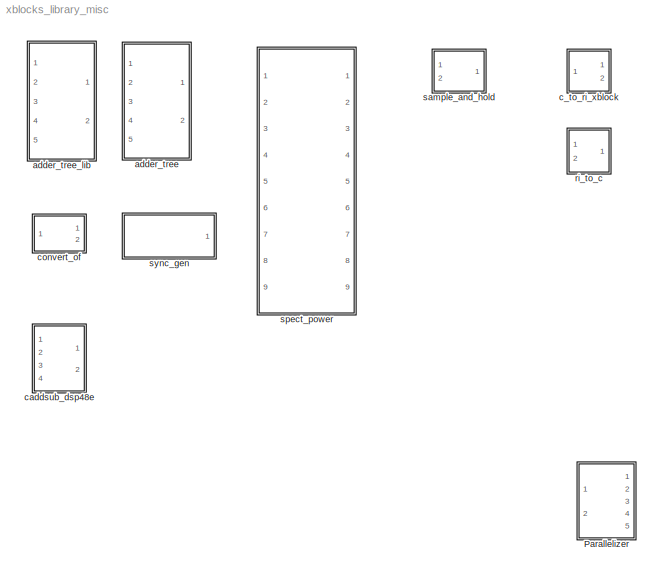
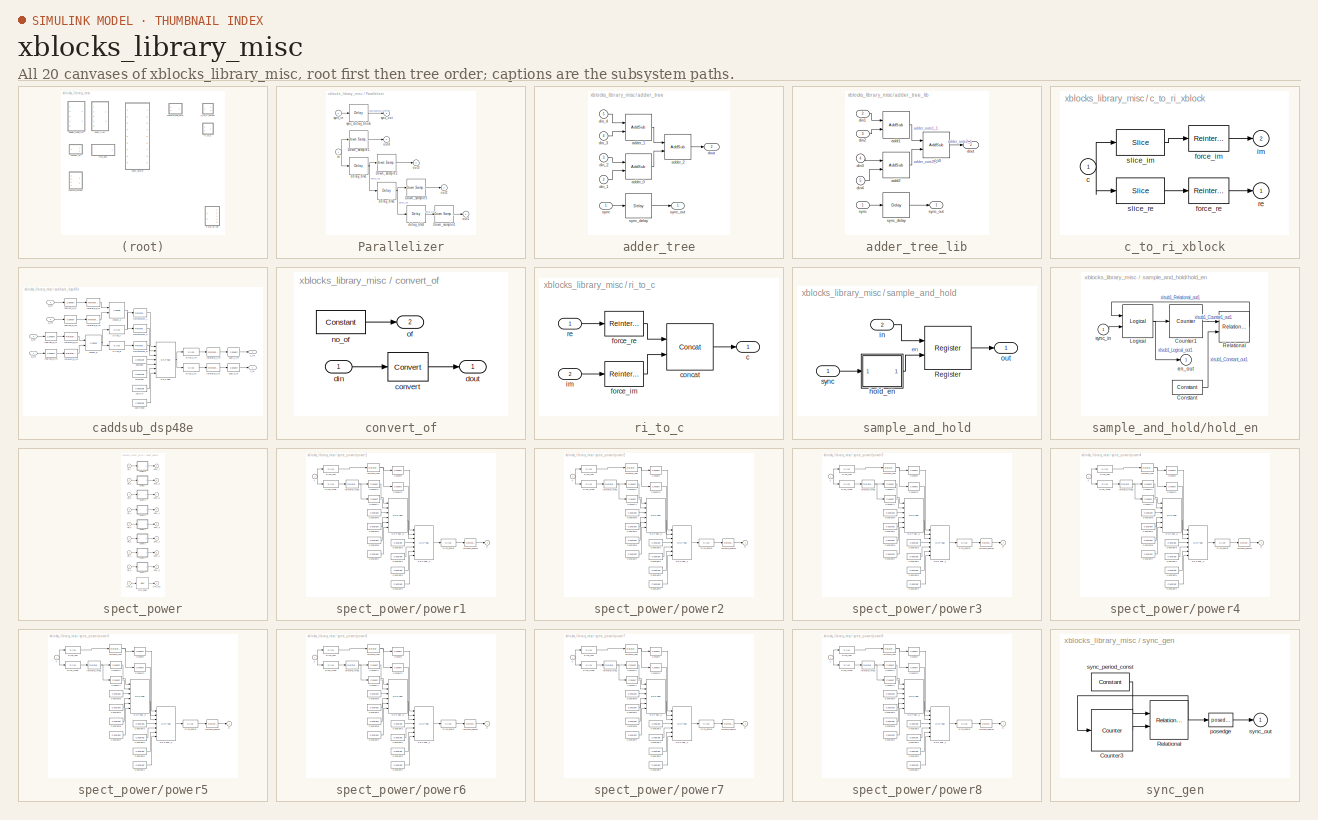
[diagram: thumbnail index - all 20 canvases of the model, root first then tree order]
MODEL xblocks_library_misc
KIND library
BLOCK [SubSystem] Parallelizer
  AttributesFormatString = Sample Period = 2
  FunctionWithSeparateData = off
  MaskCallbackString = |
  MaskDescription = Parallelizer takes in a single stream and convert it into\nparallel outputs. \nOutput sample rate is input_sample_rate/n_outputs.
  MaskEnableString = on,on
  MaskHideContents = off
  MaskIconFrame = on
  MaskIconOpaque = on
  MaskIconRotate = none
  MaskIconUnits = autoscale
  MaskInitialization = config.source=str2func('parallelizer_init_xblock');\nconfig.depend=get_dependlist('parallelizer');\nconfig.toplevel=gcb;\nset_param(gcb,'LinkStatus','inactive');\nxBlock(config, {config.toplevel,...\n    'n_outputs', n_outputs, ...\n    'sample_period', sample_period});
  MaskPortRotate = default
  MaskPromptString = n_outputs|sample_period (Input)
  MaskStyleString = edit,edit
  MaskToolTipString = on,on
  MaskTunableValueString = on,on
  MaskType = Parallelizer
  MaskValueString = 4|2
  MaskVariables = n_outputs=@1;sample_period=@2;
  MaskVisibilityString = on,on
  MinAlgLoopOccurrences = off
  Opaque = off
  Ports = [2, 5]
  PropExecContextOutsideSubsystem = off
  RTWSystemCode = Auto
  RequestExecContextInheritance = off
  SID = 584
  UserData = DataTag0
  UserDataPersistent = on
BLOCK [Reference] Parallelizer/Down_sample1  REF=xbsIndex_r4/Down Sample
  Ports = [1, 1]
  SID = 872
  SourceBlock = xbsIndex_r4/Down Sample
  SourceType = Xilinx Down Sampler Block
  block_type = dsamp
  dbl_ovrd = off
  en = off
  has_advanced_control = 0
  infoedit = Hardware notes: Sample and Latency controls determine the hardware implementation.  The cost in hardware of different implementations varies considerably; press Help for details.
  latency = 1
  sample_phase = Last Value of Frame  (most efficient)
  sample_ratio = 4
  sg_icon_stat = 60,56,1,1,white,blue,0,475c248c,right,,[ ],[ ]
  sg_mask_display = fprintf('','COMMENT: begin icon graphics');\npatch([0 60 60 0 0 ],[0 0 56 56 0 ],[0.77 0.82 0.91 ]);\nplot([0 60 60 0 0 ],[0 0 56 56 0 ]);\npatch([12.2 23.76 31.76 39.76 47.76 31.76 20.2 12.2 ],[36.88 36.88 44.88 36.88 44.88 44.88 44.88 36.88 ],[1 1 1 ]);\npatch([20.2 31.76 23.76 12.2 20.2 ],[28.88 28.88 36.88 36.88 28.88 ],[0.931 0.946 0.973 ]);\npatch([12.2 23.76 31.76 20.2 12.2 ],[20.88 20.88 2...<+415ch>  <repeated x4 — deduplicated; at blocks: Down_sample1, Down_sample2, Down_sample3, Down_sample4>
  sggui_pos = -1,-1,-1,-1
  xl_area = [0,0,0,0,0,0,0]
  xl_use_area = off
BLOCK [Reference] Parallelizer/Down_sample2  REF=xbsIndex_r4/Down Sample
  Ports = [1, 1]
  SID = 873
  SourceBlock = xbsIndex_r4/Down Sample
  SourceType = Xilinx Down Sampler Block
  block_type = dsamp
  dbl_ovrd = off
  en = off
  has_advanced_control = 0
  infoedit = Hardware notes: Sample and Latency controls determine the hardware implementation.  The cost in hardware of different implementations varies considerably; press Help for details.
  latency = 1
  sample_phase = Last Value of Frame  (most efficient)
  sample_ratio = 4
  sg_icon_stat = 60,56,1,1,white,blue,0,475c248c,right,,[ ],[ ]
  sggui_pos = -1,-1,-1,-1
  xl_area = [0,0,0,0,0,0,0]
  xl_use_area = off
BLOCK [Reference] Parallelizer/Down_sample3  REF=xbsIndex_r4/Down Sample
  Ports = [1, 1]
  SID = 874
  SourceBlock = xbsIndex_r4/Down Sample
  SourceType = Xilinx Down Sampler Block
  block_type = dsamp
  dbl_ovrd = off
  en = off
  has_advanced_control = 0
  infoedit = Hardware notes: Sample and Latency controls determine the hardware implementation.  The cost in hardware of different implementations varies considerably; press Help for details.
  latency = 1
  sample_phase = Last Value of Frame  (most efficient)
  sample_ratio = 4
  sg_icon_stat = 60,56,1,1,white,blue,0,475c248c,right,,[ ],[ ]
  sggui_pos = -1,-1,-1,-1
  xl_area = [0,0,0,0,0,0,0]
  xl_use_area = off
BLOCK [Reference] Parallelizer/Down_sample4  REF=xbsIndex_r4/Down Sample
  Ports = [1, 1]
  SID = 875
  SourceBlock = xbsIndex_r4/Down Sample
  SourceType = Xilinx Down Sampler Block
  block_type = dsamp
  dbl_ovrd = off
  en = off
  has_advanced_control = 0
  infoedit = Hardware notes: Sample and Latency controls determine the hardware implementation.  The cost in hardware of different implementations varies considerably; press Help for details.
  latency = 1
  sample_phase = Last Value of Frame  (most efficient)
  sample_ratio = 4
  sg_icon_stat = 60,56,1,1,white,blue,0,475c248c,right,,[ ],[ ]
  sggui_pos = -1,-1,-1,-1
  xl_area = [0,0,0,0,0,0,0]
  xl_use_area = off
BLOCK [Reference] Parallelizer/delay_blk1  REF=xbsIndex_r4/Delay
  Ports = [1, 1]
  SID = 868
  SourceBlock = xbsIndex_r4/Delay
  SourceType = Xilinx Delay Block
  block_type = delay
  dbl_ovrd = off
  en = off
  has_advanced_control = 0
  infoedit = Hardware notes: A delay line is a chain, each link of which is an SRL16 followed by a flip-flop.
  infoeditControl = Selection of Reset will increase slice count due to use of real FFs and instead of SRLs
  latency = 2
  reg_retiming = off
  rst = off
  sg_icon_stat = 60,56,1,1,white,blue,0,85ce9542,right,,[ ],[ ]
  sg_mask_display = fprintf('','COMMENT: begin icon graphics');\npatch([0 60 60 0 0 ],[0 0 56 56 0 ],[0.77 0.82 0.91 ]);\nplot([0 60 60 0 0 ],[0 0 56 56 0 ]);\npatch([12.2 23.76 31.76 39.76 47.76 31.76 20.2 12.2 ],[36.88 36.88 44.88 36.88 44.88 44.88 44.88 36.88 ],[1 1 1 ]);\npatch([20.2 31.76 23.76 12.2 20.2 ],[28.88 28.88 36.88 36.88 28.88 ],[0.931 0.946 0.973 ]);\npatch([12.2 23.76 31.76 20.2 12.2 ],[20.88 20.88 2...<+320ch>  <repeated x6 — deduplicated; at blocks: delay_blk1, delay_blk2, delay_blk3, sync_delay_block, sync_delay>
  sggui_pos = -1,-1,-1,-1
  xl_area = [0,0,0,0,0,0,0]
  xl_use_area = off
BLOCK [Reference] Parallelizer/delay_blk2  REF=xbsIndex_r4/Delay
  Ports = [1, 1]
  SID = 869
  SourceBlock = xbsIndex_r4/Delay
  SourceType = Xilinx Delay Block
  block_type = delay
  dbl_ovrd = off
  en = off
  has_advanced_control = 0
  infoedit = Hardware notes: A delay line is a chain, each link of which is an SRL16 followed by a flip-flop.
  infoeditControl = Selection of Reset will increase slice count due to use of real FFs and instead of SRLs
  latency = 2
  reg_retiming = off
  rst = off
  sg_icon_stat = 60,56,1,1,white,blue,0,85ce9542,right,,[ ],[ ]
  sggui_pos = -1,-1,-1,-1
  xl_area = [0,0,0,0,0,0,0]
  xl_use_area = off
BLOCK [Reference] Parallelizer/delay_blk3  REF=xbsIndex_r4/Delay
  Ports = [1, 1]
  SID = 870
  SourceBlock = xbsIndex_r4/Delay
  SourceType = Xilinx Delay Block
  block_type = delay
  dbl_ovrd = off
  en = off
  has_advanced_control = 0
  infoedit = Hardware notes: A delay line is a chain, each link of which is an SRL16 followed by a flip-flop.
  infoeditControl = Selection of Reset will increase slice count due to use of real FFs and instead of SRLs
  latency = 2
  reg_retiming = off
  rst = off
  sg_icon_stat = 60,56,1,1,white,blue,0,85ce9542,right,,[ ],[ ]
  sggui_pos = -1,-1,-1,-1
  xl_area = [0,0,0,0,0,0,0]
  xl_use_area = off
BLOCK [Inport] Parallelizer/in
  IconDisplay = Port number
  SID = 585
BLOCK [Outport] Parallelizer/out1
  IconDisplay = Port number
  SID = 593
BLOCK [Outport] Parallelizer/out2
  IconDisplay = Port number
  Port = 2
  SID = 594
BLOCK [Outport] Parallelizer/out3
  IconDisplay = Port number
  Port = 3
  SID = 595
BLOCK [Outport] Parallelizer/out4
  IconDisplay = Port number
  Port = 4
  SID = 596
BLOCK [Reference] Parallelizer/sync_delay_block  REF=xbsIndex_r4/Delay
  Ports = [1, 1]
  SID = 871
  SourceBlock = xbsIndex_r4/Delay
  SourceType = Xilinx Delay Block
  block_type = delay
  dbl_ovrd = off
  en = off
  has_advanced_control = 0
  infoedit = Hardware notes: A delay line is a chain, each link of which is an SRL16 followed by a flip-flop.
  infoeditControl = Selection of Reset will increase slice count due to use of real FFs and instead of SRLs
  latency = 1
  reg_retiming = off
  rst = off
  sg_icon_stat = 60,56,1,1,white,blue,0,07b98262,right,,[ ],[ ]
  sggui_pos = -1,-1,-1,-1
  xl_area = [0,0,0,0,0,0,0]
  xl_use_area = off
BLOCK [Inport] Parallelizer/sync_in
  IconDisplay = Port number
  Port = 2
  SID = 834
BLOCK [Outport] Parallelizer/sync_out
  IconDisplay = Port number
  Port = 5
  SID = 835
BLOCK [SubSystem] adder_tree
  AttributesFormatString = latency 2
  FunctionWithSeparateData = off
  MaskCallbackString = ||precision = get_param(gcb, 'precision');\nif ~strcmp(precision, 'User Defined')\n    set_param_state(gcb,'arith_type','off');\n    set_param_state(gcb, 'n_bits', 'off');\n    set_param_state(gcb, 'bin_pt', 'off');\n    set_param_state(gcb, 'quantization', 'off');\n    set_param_state(gcb, 'overflow', 'off');\nelse\n    set_param_state(gcb,'arith_type','on');\n    set_param_state(gcb, 'n_bits', '...<+153ch>
  MaskDescription = Sums all inputs using a tree of adds and delays.\n\nNumber of inputs: The number of inputs to the block to be summed\nAdd latency: The number of clock cycles to perform one addition (affects timing)..\nAdder implementation: choice of fabric or DSP48E core, or behavioral HDL\nUse behavioural HDL for first stage of adders: Causes the first stage of adders to be absorbed into DSP blocks if multiplier...<+129ch>
  MaskEnableString = on,on,on,off,off,off,off,off,on
  MaskHelp = eval('xlWeb(''http://casper.berkeley.edu/wiki/Adder_tree'')')
  MaskHideContents = off
  MaskIconFrame = on
  MaskIconOpaque = on
  MaskIconRotate = none
  MaskIconUnits = autoscale
  MaskInitialization = config.source = str2func('adder_tree_init_xblock');\nconfig.toplevel = gcb;\nconfig.depend = get_dependlist('adder_tree');\nset_param(gcb,'LinkStatus','inactive');\nxBlock(config, {config.toplevel, ...\n    'n_inputs', n_inputs, ...\n    'add_latency', add_latency, ...\n    'mode', mode, ...\n    'quantization', quantization, ...\n    'overflow', overflow, ...\n    'precision', precision, ...\n   ...<+82ch>
  MaskPortRotate = default
  MaskPromptString = Number of Inputs|Add Latency|Precision|Output type|Number of bits|Binary Point|Quantization Behavior|Overflow Behavior|Adder implementation
  MaskSelfModifiable = on
  MaskStyleString = edit,edit,popup(Full|User Defined),popup(Signed  (2's comp)|Unsigned),edit,edit,popup(Truncate|Round  (unbiased: +/- Inf)),popup(Wrap|Saturate|Flag as error),popup(Behavioral|Fabric|DSP48)
  MaskTabNameString = Basic,Basic,Output Type,Output Type,Output Type,Output Type,Output Type,Output Type,Implementation
  MaskToolTipString = on,on,on,on,on,on,on,on,on
  MaskTunableValueString = on,on,on,on,on,on,on,on,on
  MaskType = adder_tree (xBlock version 1)
  MaskValueString = 4|1|Full|Signed  (2's comp)|8|7|Truncate|Wrap|Fabric
  MaskVariables = n_inputs=@1;add_latency=@2;precision=&3;arith_type=&4;n_bits=@5;bin_pt=@6;quantization=&7;overflow=&8;mode=&9;
  MaskVisibilityString = on,on,on,on,on,on,on,on,on
  MinAlgLoopOccurrences = off
  Opaque = off
  Ports = [5, 2]
  PropExecContextOutsideSubsystem = off
  RTWSystemCode = Auto
  RequestExecContextInheritance = off
  SID = 572
  UserData = DataTag1
  UserDataPersistent = on
BLOCK [Reference] adder_tree/adder_0  REF=xbsIndex_r4/AddSub
  Ports = [2, 1]
  SID = 572:668
  SourceBlock = xbsIndex_r4/AddSub
  SourceType = Xilinx Adder/Subtracter Block
  arith_type = Unsigned
  bin_pt = 7
  block_type = addsub
  dbl_ovrd = off
  en = off
  has_advanced_control = 0
  hw_selection = Fabric
  latency = 1
  mode = Addition
  n_bits = 8
  overflow = Wrap
  pipelined = off
  precision = Full
  quantization = Truncate
  sg_icon_stat = 60,58,2,1,white,blue,0,e85d8a90,right,,[ ],[ ]
  sg_mask_display = fprintf('','COMMENT: begin icon graphics');\npatch([0 60 60 0 0 ],[0 0 58 58 0 ],[0.77 0.82 0.91 ]);\nplot([0 60 60 0 0 ],[0 0 58 58 0 ]);\npatch([12.2 23.76 31.76 39.76 47.76 31.76 20.2 12.2 ],[37.88 37.88 45.88 37.88 45.88 45.88 45.88 37.88 ],[1 1 1 ]);\npatch([20.2 31.76 23.76 12.2 20.2 ],[29.88 29.88 37.88 37.88 29.88 ],[0.931 0.946 0.973 ]);\npatch([12.2 23.76 31.76 20.2 12.2 ],[21.88 21.88 2...<+538ch>  <repeated x4 — deduplicated; at blocks: adder_0, adder_2, addr2, addr3>
  sggui_pos = -1,-1,-1,-1
  use_behavioral_HDL = off
  use_carryin = off
  use_carryout = off
  xl_area = [0,0,0,0,0,0,0]
  xl_use_area = off
BLOCK [Reference] adder_tree/adder_1  REF=xbsIndex_r4/AddSub
  Ports = [2, 1]
  SID = 572:669
  SourceBlock = xbsIndex_r4/AddSub
  SourceType = Xilinx Adder/Subtracter Block
  arith_type = Unsigned
  bin_pt = 7
  block_type = addsub
  dbl_ovrd = off
  en = off
  has_advanced_control = 0
  hw_selection = Fabric
  latency = 1
  mode = Addition
  n_bits = 8
  overflow = Wrap
  pipelined = off
  precision = Full
  quantization = Truncate
  sg_icon_stat = 60,60,2,1,white,blue,0,e85d8a90,right,,[ ],[ ]
  sg_mask_display = fprintf('','COMMENT: begin icon graphics');\npatch([0 60 60 0 0 ],[0 0 60 60 0 ],[0.77 0.82 0.91 ]);\nplot([0 60 60 0 0 ],[0 0 60 60 0 ]);\npatch([12.2 23.76 31.76 39.76 47.76 31.76 20.2 12.2 ],[38.88 38.88 46.88 38.88 46.88 46.88 46.88 38.88 ],[1 1 1 ]);\npatch([20.2 31.76 23.76 12.2 20.2 ],[30.88 30.88 38.88 38.88 30.88 ],[0.931 0.946 0.973 ]);\npatch([12.2 23.76 31.76 20.2 12.2 ],[22.88 22.88 3...<+538ch>
  sggui_pos = -1,-1,-1,-1
  use_behavioral_HDL = off
  use_carryin = off
  use_carryout = off
  xl_area = [0,0,0,0,0,0,0]
  xl_use_area = off
BLOCK [Reference] adder_tree/adder_2  REF=xbsIndex_r4/AddSub
  Ports = [2, 1]
  SID = 572:670
  SourceBlock = xbsIndex_r4/AddSub
  SourceType = Xilinx Adder/Subtracter Block
  arith_type = Unsigned
  bin_pt = 7
  block_type = addsub
  dbl_ovrd = off
  en = off
  has_advanced_control = 0
  hw_selection = Fabric
  latency = 1
  mode = Addition
  n_bits = 8
  overflow = Wrap
  pipelined = off
  precision = Full
  quantization = Truncate
  sg_icon_stat = 60,58,2,1,white,blue,0,e85d8a90,right,,[ ],[ ]
  sggui_pos = -1,-1,-1,-1
  use_behavioral_HDL = off
  use_carryin = off
  use_carryout = off
  xl_area = [0,0,0,0,0,0,0]
  xl_use_area = off
BLOCK [Inport] adder_tree/din_1
  IconDisplay = Port number
  Port = 2
  SID = 572:586
BLOCK [Inport] adder_tree/din_2
  IconDisplay = Port number
  Port = 3
  SID = 572:587
BLOCK [Inport] adder_tree/din_3
  IconDisplay = Port number
  Port = 4
  SID = 572:588
BLOCK [Inport] adder_tree/din_4
  IconDisplay = Port number
  Port = 5
  SID = 572:589
BLOCK [Outport] adder_tree/dout
  IconDisplay = Port number
  Port = 2
  SID = 572:583
BLOCK [Inport] adder_tree/sync
  IconDisplay = Port number
  SID = 572:573
BLOCK [Reference] adder_tree/sync_delay  REF=xbsIndex_r4/Delay
  Ports = [1, 1]
  SID = 572:666
  SourceBlock = xbsIndex_r4/Delay
  SourceType = Xilinx Delay Block
  block_type = delay
  dbl_ovrd = off
  en = off
  has_advanced_control = 0
  infoedit = Hardware notes: A delay line is a chain, each link of which is an SRL16 followed by a flip-flop.
  infoeditControl = Selection of Reset will increase slice count due to use of real FFs and instead of SRLs
  latency = 2
  reg_retiming = off
  rst = off
  sg_icon_stat = 60,56,1,1,white,blue,0,85ce9542,right,,[ ],[ ]
  sggui_pos = -1,-1,-1,-1
  xl_area = [0,0,0,0,0,0,0]
  xl_use_area = off
BLOCK [Outport] adder_tree/sync_out
  IconDisplay = Port number
  SID = 572:582
BLOCK [SubSystem] adder_tree_lib
  AttributesFormatString = latency 2
  FunctionWithSeparateData = off
  MaskCallbackString = |||
  MaskDescription = Sums all inputs using a tree of adds and delays.\n\nNumber of inputs: The number of inputs to the block to be summed\nAdd latency: The number of clock cycles to perform one addition (affects timing)..\nAdder implementation: choice of fabric or DSP48E core, or behavioral HDL\nUse behavioural HDL for first stage of adders: Causes the first stage of adders to be absorbed into DSP blocks if multiplier...<+129ch>
  MaskEnableString = on,on,on,on
  MaskHelp = eval('xlWeb(''http://casper.berkeley.edu/wiki/Adder_tree'')')
  MaskHideContents = off
  MaskIconFrame = on
  MaskIconOpaque = on
  MaskIconRotate = none
  MaskIconUnits = autoscale
  MaskInitialization = config.source = str2func('adder_tree_lib_init_xblock');\nconfig.toplevel = gcb;\nconfig.depend = get_dependlist('adder_tree_lib');\nset_param(gcb,'LinkStatus','inactive');\nxBlock(config, {config.toplevel, ...\n    'n_inputs', n_inputs, ...\n    'latency', latency, ...\n    'adder_imp', adder_imp, ...\n    'first_stage_hdl', first_stage_hdl});
  MaskPortRotate = default
  MaskPromptString = Number of Inputs|Add Latency|Adder implementation|Use behavioural HDL for first stage of adders
  MaskSelfModifiable = on
  MaskStyleString = edit,edit,popup(Behavioral|Fabric|DSP48),checkbox
  MaskToolTipString = on,on,on,on
  MaskTunableValueString = on,on,on,on
  MaskType = adder_tree (xBlock version 1)
  MaskValueString = 4|1|Fabric|on
  MaskVariables = n_inputs=@1;latency=@2;adder_imp=&3;first_stage_hdl=&4;
  MaskVisibilityString = on,on,on,on
  MinAlgLoopOccurrences = off
  Opaque = off
  Ports = [5, 2]
  PropExecContextOutsideSubsystem = off
  RTWSystemCode = Auto
  RequestExecContextInheritance = off
  SID = 564
  UserData = DataTag2
  UserDataPersistent = on
BLOCK [Reference] adder_tree_lib/addr1  REF=xbsIndex_r4/AddSub
  Ports = [2, 1]
  SID = 564:593
  SourceBlock = xbsIndex_r4/AddSub
  SourceType = Xilinx Adder/Subtracter Block
  arith_type = Unsigned
  bin_pt = 14
  block_type = addsub
  dbl_ovrd = off
  en = off
  has_advanced_control = 0
  hw_selection = Fabric
  latency = 1
  mode = Addition
  n_bits = 16
  overflow = Wrap
  pipelined = on
  precision = Full
  quantization = Truncate
  sg_icon_stat = 60,60,2,1,white,blue,0,e85d8a90,right,,[ ],[ ]
  sg_mask_display = fprintf('','COMMENT: begin icon graphics');\npatch([0 60 60 0 0 ],[0 0 60 60 0 ],[0.77 0.82 0.91 ]);\nplot([0 60 60 0 0 ],[0 0 60 60 0 ]);\npatch([12.2 23.76 31.76 39.76 47.76 31.76 20.2 12.2 ],[38.88 38.88 46.88 38.88 46.88 46.88 46.88 38.88 ],[1 1 1 ]);\npatch([20.2 31.76 23.76 12.2 20.2 ],[30.88 30.88 38.88 38.88 30.88 ],[0.931 0.946 0.973 ]);\npatch([12.2 23.76 31.76 20.2 12.2 ],[22.88 22.88 3...<+538ch>
  sggui_pos = -1,-1,-1,-1
  use_behavioral_HDL = on
  use_carryin = off
  use_carryout = off
  use_rpm = on
  xl_area = [0,0,0,0,0,0,0]
  xl_use_area = off
BLOCK [Reference] adder_tree_lib/addr2  REF=xbsIndex_r4/AddSub
  Ports = [2, 1]
  SID = 564:594
  SourceBlock = xbsIndex_r4/AddSub
  SourceType = Xilinx Adder/Subtracter Block
  arith_type = Unsigned
  bin_pt = 14
  block_type = addsub
  dbl_ovrd = off
  en = off
  has_advanced_control = 0
  hw_selection = Fabric
  latency = 1
  mode = Addition
  n_bits = 16
  overflow = Wrap
  pipelined = on
  precision = Full
  quantization = Truncate
  sg_icon_stat = 60,58,2,1,white,blue,0,e85d8a90,right,,[ ],[ ]
  sggui_pos = -1,-1,-1,-1
  use_behavioral_HDL = on
  use_carryin = off
  use_carryout = off
  use_rpm = on
  xl_area = [0,0,0,0,0,0,0]
  xl_use_area = off
BLOCK [Reference] adder_tree_lib/addr3  REF=xbsIndex_r4/AddSub
  Ports = [2, 1]
  SID = 564:595
  SourceBlock = xbsIndex_r4/AddSub
  SourceType = Xilinx Adder/Subtracter Block
  arith_type = Unsigned
  bin_pt = 14
  block_type = addsub
  dbl_ovrd = off
  en = off
  has_advanced_control = 0
  hw_selection = Fabric
  latency = 1
  mode = Addition
  n_bits = 16
  overflow = Wrap
  pipelined = on
  precision = Full
  quantization = Truncate
  sg_icon_stat = 60,58,2,1,white,blue,0,e85d8a90,right,,[ ],[ ]
  sggui_pos = -1,-1,-1,-1
  use_behavioral_HDL = off
  use_carryin = off
  use_carryout = off
  use_rpm = on
  xl_area = [0,0,0,0,0,0,0]
  xl_use_area = off
BLOCK [Inport] adder_tree_lib/din1
  IconDisplay = Port number
  Port = 2
  SID = 564:566
BLOCK [Inport] adder_tree_lib/din2
  IconDisplay = Port number
  Port = 3
  SID = 564:567
BLOCK [Inport] adder_tree_lib/din3
  IconDisplay = Port number
  Port = 4
  SID = 564:574
BLOCK [Inport] adder_tree_lib/din4
  IconDisplay = Port number
  Port = 5
  SID = 564:575
BLOCK [Outport] adder_tree_lib/dout
  IconDisplay = Port number
  Port = 2
  SID = 564:571
BLOCK [Inport] adder_tree_lib/sync
  IconDisplay = Port number
  SID = 564:565
BLOCK [Reference] adder_tree_lib/sync_delay  REF=xbsIndex_r4/Delay
  Ports = [1, 1]
  SID = 564:592
  SourceBlock = xbsIndex_r4/Delay
  SourceType = Xilinx Delay Block
  block_type = delay
  dbl_ovrd = off
  en = off
  has_advanced_control = 0
  infoedit = Hardware notes: A delay line is a chain, each link of which is an SRL16 followed by a flip-flop.
  infoeditControl = Selection of Reset will increase slice count due to use of real FFs and instead of SRLs
  latency = 2
  reg_retiming = on
  rst = off
  sg_icon_stat = 60,56,1,1,white,blue,0,85ce9542,right,,[ ],[ ]
  sggui_pos = -1,-1,-1,-1
  xl_area = [0,0,0,0,0,0,0]
  xl_use_area = off
BLOCK [Outport] adder_tree_lib/sync_out
  IconDisplay = Port number
  SID = 564:570
BLOCK [SubSystem] c_to_ri_xblock
  AttributesFormatString = 8_7 r/i
  FunctionWithSeparateData = off
  MaskCallbackString = |
  MaskDescription = Outputs real and imaginary components of a complex input.\nUseful for simplifying interconnects.\nSee also: Real-Imag to Complex (ri_to_c)\nxblock version
  MaskEnableString = on,on
  MaskHelp = eval('xlWeb(''http://casper.berkeley.edu/wiki/C_to_ri'')')
  MaskHideContents = off
  MaskIconFrame = on
  MaskIconOpaque = on
  MaskIconRotate = none
  MaskIconUnits = autoscale
  MaskInitialization = config.source=str2func('c_to_ri_init_xblock');\nconfig.depend=get_dependlist('c_to_ri');\nconfig.toplevel=gcb;\nset_param(gcb,'LinkStatus','inactive');\nxBlock(config,{config.toplevel,n_bits,bin_pt});
  MaskPortRotate = default
  MaskPromptString = Bit Width|Binary Point
  MaskStyleString = edit,edit
  MaskToolTipString = on,on
  MaskTunableValueString = on,on
  MaskType = c_to_ri (xBlock)
  MaskValueString = 8|7
  MaskVariables = n_bits=@1;bin_pt=@2;
  MaskVisibilityString = on,on
  MinAlgLoopOccurrences = off
  Opaque = off
  Ports = [1, 2]
  PropExecContextOutsideSubsystem = off
  RTWSystemCode = Auto
  RequestExecContextInheritance = off
  SID = 316
  UserData = DataTag3
  UserDataPersistent = on
BLOCK [Inport] c_to_ri_xblock/c
  IconDisplay = Port number
  SID = 317
BLOCK [Reference] c_to_ri_xblock/force_im  REF=xbsIndex_r4/Reinterpret
  Ports = [1, 1]
  SID = 830
  SourceBlock = xbsIndex_r4/Reinterpret
  SourceType = Xilinx Type Reinterpreter Block
  arith_type = Signed  (2's comp)
  bin_pt = 7
  block_type = reinterpret
  force_arith_type = on
  force_bin_pt = on
  has_advanced_control = 0
  infoedit = Changes signal type without altering the binary representation.   You can change the signal between signed and unsigned, and relocate the binary point.<br><br>Hardware notes: In hardware this block costs nothing.<br><br>Example:  Suppose the input is 6 bits wide, signed, with 2 fractional bits, and the output is forced to unsigned with 0 fractional bits.  Then an input of -2.0 (1110.00 in binary 2...<+58ch>  <repeated x11 — deduplicated; at blocks: force_im, force_re, Reinterpret_A, Reinterpret_B, Reinterpret_C, reinterp_a_im, reinterp_a_re, reinterp_b_im, reinterp_b_re, reinterp_c_im, reinterp_c_re>
  sg_icon_stat = 50,32,1,1,white,blue,0,6b04d0b0,right,,[ ],[ ]
  sg_mask_display = fprintf('','COMMENT: begin icon graphics');\npatch([0 50 50 0 0 ],[0 0 32 32 0 ],[0.77 0.82 0.91 ]);\nplot([0 50 50 0 0 ],[0 0 32 32 0 ]);\npatch([16.1 21.88 25.88 29.88 33.88 25.88 20.1 16.1 ],[20.44 20.44 24.44 20.44 24.44 24.44 24.44 20.44 ],[1 1 1 ]);\npatch([20.1 25.88 21.88 16.1 20.1 ],[16.44 16.44 20.44 20.44 16.44 ],[0.931 0.946 0.973 ]);\npatch([16.1 21.88 25.88 20.1 16.1 ],[12.44 12.44 1...<+306ch>  <repeated x11 — deduplicated; at blocks: force_im, force_re, Reinterpret_A, Reinterpret_B, Reinterpret_C, reinterp_a_im, reinterp_a_re, reinterp_b_im, reinterp_b_re, reinterp_c_im, reinterp_c_re>
  sggui_pos = -1,-1,-1,-1
BLOCK [Reference] c_to_ri_xblock/force_re  REF=xbsIndex_r4/Reinterpret
  Ports = [1, 1]
  SID = 831
  SourceBlock = xbsIndex_r4/Reinterpret
  SourceType = Xilinx Type Reinterpreter Block
  arith_type = Signed  (2's comp)
  bin_pt = 7
  block_type = reinterpret
  force_arith_type = on
  force_bin_pt = on
  has_advanced_control = 0
  sg_icon_stat = 50,32,1,1,white,blue,0,6b04d0b0,right,,[ ],[ ]
  sggui_pos = -1,-1,-1,-1
BLOCK [Outport] c_to_ri_xblock/im
  IconDisplay = Port number
  Port = 2
  SID = 323
BLOCK [Outport] c_to_ri_xblock/re
  IconDisplay = Port number
  SID = 322
BLOCK [Reference] c_to_ri_xblock/slice_im  REF=xbsIndex_r4/Slice
  Ports = [1, 1]
  SID = 832
  SourceBlock = xbsIndex_r4/Slice
  SourceType = Xilinx Bit Slice Extractor Block
  base0 = LSB of Input
  base1 = MSB of Input
  bit0 = 0
  bit1 = 0
  block_type = slice
  boolean_output = off
  dbl_ovrd = off
  has_advanced_control = 0
  infoedit = Extracts a given range of bits from each input sample and presents it at the output.  The output type is ordinarily unsigned with binary point at zero, but can be Boolean when the slice is one bit wide.<br><br>Hardware notes: In hardware this block costs nothing.  <repeated x30 — deduplicated; at blocks: slice_im, slice_re, Slice_A, Slice_B, slice_c_im, slice_c_re, slice_imag, slice_power, slice_real>
  mode = Lower Bit Location + Width
  nbits = 8
  sg_icon_stat = 60,32,1,1,white,blue,0,1fd851a7,right,,[ ],[ ]
  sg_mask_display = fprintf('','COMMENT: begin icon graphics');\npatch([0 60 60 0 0 ],[0 0 32 32 0 ],[0.77 0.82 0.91 ]);\nplot([0 60 60 0 0 ],[0 0 32 32 0 ]);\npatch([21.1 26.88 30.88 34.88 38.88 30.88 25.1 21.1 ],[20.44 20.44 24.44 20.44 24.44 24.44 24.44 20.44 ],[1 1 1 ]);\npatch([25.1 30.88 26.88 21.1 25.1 ],[16.44 16.44 20.44 20.44 16.44 ],[0.931 0.946 0.973 ]);\npatch([21.1 26.88 30.88 25.1 21.1 ],[12.44 12.44 1...<+315ch>  <repeated x5 — deduplicated; at blocks: slice_im, slice_re, Slice_A, Slice_B, slice_c_re>
  sggui_pos = -1,-1,-1,-1
BLOCK [Reference] c_to_ri_xblock/slice_re  REF=xbsIndex_r4/Slice
  Ports = [1, 1]
  SID = 833
  SourceBlock = xbsIndex_r4/Slice
  SourceType = Xilinx Bit Slice Extractor Block
  base0 = LSB of Input
  base1 = MSB of Input
  bit0 = 0
  bit1 = 0
  block_type = slice
  boolean_output = off
  dbl_ovrd = off
  has_advanced_control = 0
  mode = Upper Bit Location + Width
  nbits = 8
  sg_icon_stat = 60,32,1,1,white,blue,0,1fd851a7,right,,[ ],[ ]
  sggui_pos = -1,-1,-1,-1
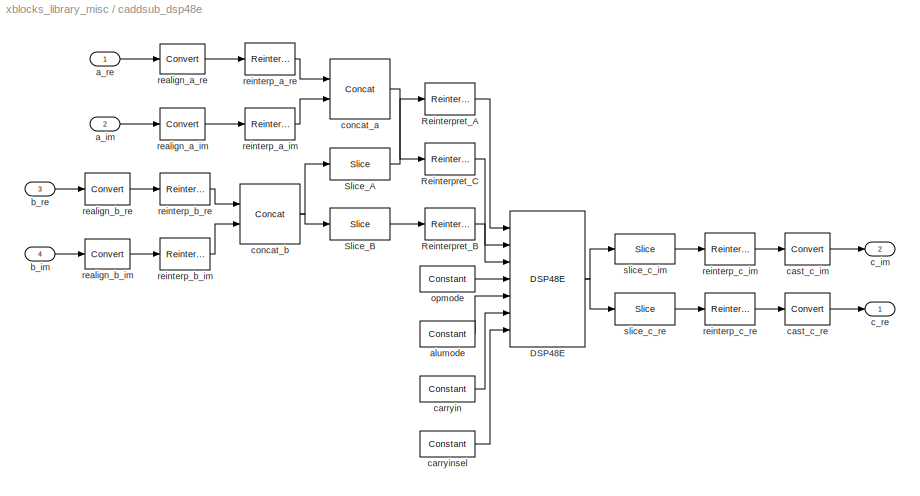
BLOCK [SubSystem] caddsub_dsp48e
  AttributesFormatString = 18_17 + 8_7 ==> 19_17\nMode=Subtraction\nLatency=3
  FunctionWithSeparateData = off
  MaskCallbackString = |||||thisVariable = 'full_precision';\naffectedVars = { ...\n    'n_bits_c', ...\n    'bin_pt_c', ...\n    'quantization', ...\n    'overflow', ...\n    'cast_latency', ...\n};\n\nthisBlock = gcb();\nthisVarState = get_param(thisBlock, thisVariable);\nmaskNames = get_param(thisBlock, 'MaskNames');\nmaskEnables = get_param(thisBlock, 'MaskEnables');\n\nif strcmp(thisVarState, 'on'),\n    targVarSta...<+237ch>
  MaskDescription = Adds or subtracts two complex numbers using a DSP48E.\n\nThe two inputs can have different bit widths and binary points, but their sum cannot exceed 24 bits.
  MaskEnableString = on,on,on,on,on,on,off,off,off,off,off
  MaskHideContents = off
  MaskIconFrame = on
  MaskIconOpaque = on
  MaskIconRotate = none
  MaskIconUnits = autoscale
  MaskInitialization = config.source = str2func('simd_add_dsp48e_init_xblock');\nconfig.depend = get_dependlist('simd_add_dsp48e');\nconfig.toplevel=gcb;\nset_param(gcb,'LinkStatus','inactive');\nxBlock(config,{config.toplevel, ...\n     mode, ...\n     n_bits_a, ...\n     bin_pt_a, ...\n     n_bits_b, ...\n     bin_pt_b, ...\n     full_precision, ...\n     n_bits_c, ...\n     bin_pt_c, ...\n     quantization, ...\n    ...<+57ch>
  MaskPortRotate = default
  MaskPromptString = Operation:|Bit width 'a':|Binary point 'a':|Bit width 'b':|Binary point 'b':|Full precision|Bit width out:|Binary point out:|Quantization:|Overflow:|Cast Latency:
  MaskSelfModifiable = on
  MaskStyleString = popup(Addition|Subtraction),edit,edit,edit,edit,checkbox,edit,edit,popup(Truncate|Round  (unbiased: +/- Inf)|Round  (unbiased: Even Values)),popup(Wrap|Saturate|Flag as error),edit
  MaskTabNameString = Basic,Basic,Basic,Basic,Basic,Output Type,Output Type,Output Type,Output Type,Output Type,Output Type
  MaskToolTipString = on,on,on,on,on,on,on,on,on,on,on
  MaskTunableValueString = on,on,on,on,on,on,on,on,on,on,on
  MaskType = caddsub_dsp48e
  MaskValueString = Subtraction|18|17|8|7|on|19|17|Truncate|Wrap|1
  MaskVariables = mode=&1;n_bits_a=@2;bin_pt_a=@3;n_bits_b=@4;bin_pt_b=@5;full_precision=&6;n_bits_c=@7;bin_pt_c=@8;quantization=&9;overflow=&10;cast_latency=@11;
  MaskVisibilityString = on,on,on,on,on,on,on,on,on,on,on
  MinAlgLoopOccurrences = off
  Opaque = off
  Ports = [4, 2]
  PropExecContextOutsideSubsystem = off
  RTWSystemCode = Auto
  RequestExecContextInheritance = off
  SID = 25
  UserData = DataTag4
  UserDataPersistent = on
BLOCK [Reference] caddsub_dsp48e/DSP48E  REF=xbsIndex_r4/DSP48E
  Ports = [7, 1]
  SID = 25:683
  SourceBlock = xbsIndex_r4/DSP48E
  SourceType = Xilinx DSP48E Block
  addsub_mode = TWO24
  block_type = dsp48e
  en_a1 = off
  en_a2 = off
  en_all = off
  en_alumode = off
  en_b1 = off
  en_b2 = off
  en_c = off
  en_carry_in = off
  en_ctrl = off
  en_mult = off
  en_multcarryin = off
  en_p = off
  has_advanced_control = 0
  mask_from_creg = on
  pattern = '000000000000'
  pattern_from_creg = on
  pattern_mask = '000000000000'
  pipeline_a = 1
  pipeline_acout = 1
  pipeline_alumode = on
  pipeline_b = 1
  pipeline_bcout = 1
  pipeline_c = on
  pipeline_carryin = on
  pipeline_carryinsel = on
  pipeline_mult = on
  pipeline_opmode = on
  pipeline_p = on
  reset_preg = off
  rst_a = off
  rst_all = off
  rst_alumode = off
  rst_b = off
  rst_c = off
  rst_carry_in = off
  rst_ctrl = off
  rst_mult = off
  rst_p = off
  sel_rounding_mask = Select mask
  sg_icon_stat = 75,136,7,1,white,blue,0,51584ea8,right,,[ ],[ ]
  sg_mask_display = fprintf('','COMMENT: begin icon graphics');\npatch([0 75 75 0 0 ],[0 0 136 136 0 ],[0.77 0.82 0.91 ]);\nplot([0 75 75 0 0 ],[0 0 136 136 0 ]);\npatch([14.75 29.2 39.2 49.2 59.2 39.2 24.75 14.75 ],[79.1 79.1 89.1 79.1 89.1 89.1 89.1 79.1 ],[1 1 1 ]);\npatch([24.75 39.2 29.2 14.75 24.75 ],[69.1 69.1 79.1 79.1 69.1 ],[0.931 0.946 0.973 ]);\npatch([14.75 29.2 39.2 24.75 14.75 ],[59.1 59.1 69.1 69.1 59...<+618ch>
  sggui_pos = -1,-1,-1,-1
  use_a = Direct from A Port
  use_acout = off
  use_b = Direct from B Port
  use_bcout = off
  use_carrycascin = off
  use_carrycascout = off
  use_carryout = off
  use_creg = on
  use_multsignin = off
  use_multsignout = off
  use_op = off
  use_overflow = off
  use_patternbdetect = off
  use_patterndetect = off
  use_pcin = off
  use_pcout = off
  use_synth_model = off
  use_underflow = off
  xl_area = [0,0,0,0,0,0,0]
  xl_use_area = off
  xl_useadderonly = off
BLOCK [Reference] caddsub_dsp48e/Reinterpret_A  REF=xbsIndex_r4/Reinterpret
  Ports = [1, 1]
  SID = 25:684
  SourceBlock = xbsIndex_r4/Reinterpret
  SourceType = Xilinx Type Reinterpreter Block
  arith_type = Signed  (2's comp)
  bin_pt = 0
  block_type = reinterpret
  force_arith_type = on
  force_bin_pt = on
  has_advanced_control = 0
  sg_icon_stat = 50,32,1,1,white,blue,0,6b04d0b0,right,,[ ],[ ]
  sggui_pos = -1,-1,-1,-1
BLOCK [Reference] caddsub_dsp48e/Reinterpret_B  REF=xbsIndex_r4/Reinterpret
  Ports = [1, 1]
  SID = 25:685
  SourceBlock = xbsIndex_r4/Reinterpret
  SourceType = Xilinx Type Reinterpreter Block
  arith_type = Signed  (2's comp)
  bin_pt = 0
  block_type = reinterpret
  force_arith_type = on
  force_bin_pt = on
  has_advanced_control = 0
  sg_icon_stat = 50,32,1,1,white,blue,0,6b04d0b0,right,,[ ],[ ]
  sggui_pos = -1,-1,-1,-1
BLOCK [Reference] caddsub_dsp48e/Reinterpret_C  REF=xbsIndex_r4/Reinterpret
  Ports = [1, 1]
  SID = 25:686
  SourceBlock = xbsIndex_r4/Reinterpret
  SourceType = Xilinx Type Reinterpreter Block
  arith_type = Signed  (2's comp)
  bin_pt = 0
  block_type = reinterpret
  force_arith_type = on
  force_bin_pt = on
  has_advanced_control = 0
  sg_icon_stat = 50,32,1,1,white,blue,0,6b04d0b0,right,,[ ],[ ]
  sggui_pos = -1,-1,-1,-1
BLOCK [Reference] caddsub_dsp48e/Slice_A  REF=xbsIndex_r4/Slice
  Ports = [1, 1]
  SID = 25:687
  SourceBlock = xbsIndex_r4/Slice
  SourceType = Xilinx Bit Slice Extractor Block
  base0 = LSB of Input
  base1 = MSB of Input
  bit0 = 0
  bit1 = 0
  block_type = slice
  boolean_output = off
  dbl_ovrd = off
  has_advanced_control = 0
  mode = Upper Bit Location + Width
  nbits = 30
  sg_icon_stat = 60,32,1,1,white,blue,0,1fd851a7,right,,[ ],[ ]
  sggui_pos = -1,-1,-1,-1
BLOCK [Reference] caddsub_dsp48e/Slice_B  REF=xbsIndex_r4/Slice
  Ports = [1, 1]
  SID = 25:688
  SourceBlock = xbsIndex_r4/Slice
  SourceType = Xilinx Bit Slice Extractor Block
  base0 = LSB of Input
  base1 = MSB of Input
  bit0 = 0
  bit1 = 0
  block_type = slice
  boolean_output = off
  dbl_ovrd = off
  has_advanced_control = 0
  mode = Lower Bit Location + Width
  nbits = 18
  sg_icon_stat = 60,32,1,1,white,blue,0,1fd851a7,right,,[ ],[ ]
  sggui_pos = -1,-1,-1,-1
BLOCK [Inport] caddsub_dsp48e/a_im
  IconDisplay = Port number
  Port = 2
  SID = 25:2
BLOCK [Inport] caddsub_dsp48e/a_re
  IconDisplay = Port number
  SID = 25:1
BLOCK [Reference] caddsub_dsp48e/alumode  REF=xbsIndex_r4/Constant
  Ports = [0, 1]
  SID = 25:689
  SourceBlock = xbsIndex_r4/Constant
  SourceType = Xilinx Constant Block Block
  arith_type = Unsigned
  bin_pt = 0
  block_type = constant
  carry = CIN
  const = 3
  dbl_ovrd = off
  dsp48_infoedit = The use of this block for DSP48 instructions is deprecated.  Please use the Opmode block.
  equ = P=C
  exp_width = 8
  explicit_period = off
  frac_width = 24
  gui_display_data_type = Fixed-point
  has_advanced_control = 0
  inp1 = P
  inp2 = PCIN>>17
  n_bits = 4
  opr = +
  opselect = C
  period = 1
  preci_type = Single
  sg_icon_stat = 55,26,0,1,white,blue,0,279a71c8,right,,[ ],[ ]
  sg_mask_display = fprintf('','COMMENT: begin icon graphics');\npatch([0 55 55 0 0 ],[0 0 26 26 0 ],[0.77 0.82 0.91 ]);\nplot([0 55 55 0 0 ],[0 0 26 26 0 ]);\npatch([20.325 24.66 27.66 30.66 33.66 27.66 23.325 20.325 ],[16.33 16.33 19.33 16.33 19.33 19.33 19.33 16.33 ],[1 1 1 ]);\npatch([23.325 27.66 24.66 20.325 23.325 ],[13.33 13.33 16.33 16.33 13.33 ],[0.931 0.946 0.973 ]);\npatch([20.325 24.66 27.66 23.325 20.32...<+333ch>  <repeated x5 — deduplicated; at blocks: alumode, carryin, carryinsel, no_of, Constant>
  sggui_pos = -1,-1,-1,-1
BLOCK [Inport] caddsub_dsp48e/b_im
  IconDisplay = Port number
  Port = 4
  SID = 25:4
BLOCK [Inport] caddsub_dsp48e/b_re
  IconDisplay = Port number
  Port = 3
  SID = 25:3
BLOCK [Outport] caddsub_dsp48e/c_im
  IconDisplay = Port number
  Port = 2
  SID = 25:30
BLOCK [Outport] caddsub_dsp48e/c_re
  IconDisplay = Port number
  SID = 25:29
BLOCK [Reference] caddsub_dsp48e/carryin  REF=xbsIndex_r4/Constant
  Ports = [0, 1]
  SID = 25:690
  SourceBlock = xbsIndex_r4/Constant
  SourceType = Xilinx Constant Block Block
  arith_type = Unsigned
  bin_pt = 0
  block_type = constant
  carry = CIN
  const = 0
  dbl_ovrd = off
  dsp48_infoedit = The use of this block for DSP48 instructions is deprecated.  Please use the Opmode block.
  equ = P=C
  exp_width = 8
  explicit_period = off
  frac_width = 24
  gui_display_data_type = Fixed-point
  has_advanced_control = 0
  inp1 = P
  inp2 = PCIN>>17
  n_bits = 1
  opr = +
  opselect = C
  period = 1
  preci_type = Single
  sg_icon_stat = 55,26,0,1,white,blue,0,bf4ddd8b,right,,[ ],[ ]
  sggui_pos = -1,-1,-1,-1
BLOCK [Reference] caddsub_dsp48e/carryinsel  REF=xbsIndex_r4/Constant
  Ports = [0, 1]
  SID = 25:691
  SourceBlock = xbsIndex_r4/Constant
  SourceType = Xilinx Constant Block Block
  arith_type = Unsigned
  bin_pt = 0
  block_type = constant
  carry = CIN
  const = 0
  dbl_ovrd = off
  dsp48_infoedit = The use of this block for DSP48 instructions is deprecated.  Please use the Opmode block.
  equ = P=C
  exp_width = 8
  explicit_period = off
  frac_width = 24
  gui_display_data_type = Fixed-point
  has_advanced_control = 0
  inp1 = P
  inp2 = PCIN>>17
  n_bits = 3
  opr = +
  opselect = C
  period = 1
  preci_type = Single
  sg_icon_stat = 55,26,0,1,white,blue,0,bf4ddd8b,right,,[ ],[ ]
  sggui_pos = -1,-1,-1,-1
BLOCK [Reference] caddsub_dsp48e/cast_c_im  REF=xbsIndex_r4/Convert
  Ports = [1, 1]
  SID = 25:692
  SourceBlock = xbsIndex_r4/Convert
  SourceType = Xilinx Type Converter Block
  arith_type = Signed  (2's comp)
  bin_pt = 17
  block_type = convert
  dbl_ovrd = off
  en = off
  exp_bits = 8
  float_type = Single
  fraction_bits = 24
  gui_display_data_type = Fixed-point
  has_advanced_control = 0
  infoedit = Hardware notes: rounding and saturating require hardware resources; truncating and wrapping do not.
  latency = 1
  n_bits = 19
  overflow = Wrap
  pipeline = on
  quantization = Truncate
  sg_icon_stat = 45,32,1,1,white,blue,0,0c6bad53,right,,[ ],[ ]
  sg_mask_display = fprintf('','COMMENT: begin icon graphics');\npatch([0 45 45 0 0 ],[0 0 32 32 0 ],[0.77 0.82 0.91 ]);\nplot([0 45 45 0 0 ],[0 0 32 32 0 ]);\npatch([13.1 18.88 22.88 26.88 30.88 22.88 17.1 13.1 ],[20.44 20.44 24.44 20.44 24.44 24.44 24.44 20.44 ],[1 1 1 ]);\npatch([17.1 22.88 18.88 13.1 17.1 ],[16.44 16.44 20.44 20.44 16.44 ],[0.931 0.946 0.973 ]);\npatch([13.1 18.88 22.88 17.1 13.1 ],[12.44 12.44 1...<+402ch>  <repeated x3 — deduplicated; at blocks: cast_c_im, cast_c_re, convert>
  sggui_pos = -1,-1,-1,-1
  xl_area = [0,0,0,0,0,0,0]
  xl_use_area = off
BLOCK [Reference] caddsub_dsp48e/cast_c_re  REF=xbsIndex_r4/Convert
  Ports = [1, 1]
  SID = 25:693
  SourceBlock = xbsIndex_r4/Convert
  SourceType = Xilinx Type Converter Block
  arith_type = Signed  (2's comp)
  bin_pt = 17
  block_type = convert
  dbl_ovrd = off
  en = off
  exp_bits = 8
  float_type = Single
  fraction_bits = 24
  gui_display_data_type = Fixed-point
  has_advanced_control = 0
  infoedit = Hardware notes: rounding and saturating require hardware resources; truncating and wrapping do not.
  latency = 1
  n_bits = 19
  overflow = Wrap
  pipeline = on
  quantization = Truncate
  sg_icon_stat = 45,32,1,1,white,blue,0,0c6bad53,right,,[ ],[ ]
  sggui_pos = -1,-1,-1,-1
  xl_area = [0,0,0,0,0,0,0]
  xl_use_area = off
BLOCK [Reference] caddsub_dsp48e/concat_a  REF=xbsIndex_r4/Concat
  Ports = [2, 1]
  SID = 25:694
  SourceBlock = xbsIndex_r4/Concat
  SourceType = Xilinx Bus Concatenator Block
  block_type = concat
  dbl_ovrd = off
  has_advanced_control = 0
  infoedit = Concatenates two or more inputs.  Output will be cast to an unsigned value with the binary point at zero.
  num_inputs = 2
  sg_icon_stat = 60,60,2,1,white,blue,0,16398980,right,,[ ],[ ]
  sg_mask_display = fprintf('','COMMENT: begin icon graphics');\npatch([0 60 60 0 0 ],[0 0 60 60 0 ],[0.77 0.82 0.91 ]);\nplot([0 60 60 0 0 ],[0 0 60 60 0 ]);\npatch([12.2 23.76 31.76 39.76 47.76 31.76 20.2 12.2 ],[38.88 38.88 46.88 38.88 46.88 46.88 46.88 38.88 ],[1 1 1 ]);\npatch([20.2 31.76 23.76 12.2 20.2 ],[30.88 30.88 38.88 38.88 30.88 ],[0.931 0.946 0.973 ]);\npatch([12.2 23.76 31.76 20.2 12.2 ],[22.88 22.88 3...<+417ch>
  sggui_pos = -1,-1,-1,-1
BLOCK [Reference] caddsub_dsp48e/concat_b  REF=xbsIndex_r4/Concat
  Ports = [2, 1]
  SID = 25:695
  SourceBlock = xbsIndex_r4/Concat
  SourceType = Xilinx Bus Concatenator Block
  block_type = concat
  dbl_ovrd = off
  has_advanced_control = 0
  infoedit = Concatenates two or more inputs.  Output will be cast to an unsigned value with the binary point at zero.
  num_inputs = 2
  sg_icon_stat = 60,60,2,1,white,blue,0,16398980,right,,[ ],[ ]
  sg_mask_display = fprintf('','COMMENT: begin icon graphics');\npatch([0 60 60 0 0 ],[0 0 60 60 0 ],[0.77 0.82 0.91 ]);\nplot([0 60 60 0 0 ],[0 0 60 60 0 ]);\npatch([12.2 23.76 31.76 39.76 47.76 31.76 20.2 12.2 ],[38.88 38.88 46.88 38.88 46.88 46.88 46.88 38.88 ],[1 1 1 ]);\npatch([20.2 31.76 23.76 12.2 20.2 ],[30.88 30.88 38.88 38.88 30.88 ],[0.931 0.946 0.973 ]);\npatch([12.2 23.76 31.76 20.2 12.2 ],[22.88 22.88 3...<+417ch>
  sggui_pos = -1,-1,-1,-1
BLOCK [Reference] caddsub_dsp48e/opmode  REF=xbsIndex_r4/Constant
  Ports = [0, 1]
  SID = 25:696
  SourceBlock = xbsIndex_r4/Constant
  SourceType = Xilinx Constant Block Block
  arith_type = Unsigned
  bin_pt = 0
  block_type = constant
  carry = CIN
  const = 51
  dbl_ovrd = off
  dsp48_infoedit = The use of this block for DSP48 instructions is deprecated.  Please use the Opmode block.
  equ = P=C
  exp_width = 8
  explicit_period = off
  frac_width = 24
  gui_display_data_type = Fixed-point
  has_advanced_control = 0
  inp1 = P
  inp2 = PCIN>>17
  n_bits = 7
  opr = +
  opselect = C
  period = 1
  preci_type = Single
  sg_icon_stat = 55,26,0,1,white,blue,0,b654bd3a,right,,[ ],[ ]
  sg_mask_display = fprintf('','COMMENT: begin icon graphics');\npatch([0 55 55 0 0 ],[0 0 26 26 0 ],[0.77 0.82 0.91 ]);\nplot([0 55 55 0 0 ],[0 0 26 26 0 ]);\npatch([20.325 24.66 27.66 30.66 33.66 27.66 23.325 20.325 ],[16.33 16.33 19.33 16.33 19.33 19.33 19.33 16.33 ],[1 1 1 ]);\npatch([23.325 27.66 24.66 20.325 23.325 ],[13.33 13.33 16.33 16.33 13.33 ],[0.931 0.946 0.973 ]);\npatch([20.325 24.66 27.66 23.325 20.32...<+334ch>
  sggui_pos = -1,-1,-1,-1
BLOCK [Reference] caddsub_dsp48e/realign_a_im  REF=xbsIndex_r4/Convert
  Ports = [1, 1]
  SID = 25:697
  SourceBlock = xbsIndex_r4/Convert
  SourceType = Xilinx Type Converter Block
  arith_type = Signed  (2's comp)
  bin_pt = 21
  block_type = convert
  dbl_ovrd = off
  en = off
  exp_bits = 8
  float_type = Single
  fraction_bits = 24
  gui_display_data_type = Fixed-point
  has_advanced_control = 0
  infoedit = Hardware notes: rounding and saturating require hardware resources; truncating and wrapping do not.
  latency = 0
  n_bits = 24
  overflow = Wrap
  pipeline = on
  quantization = Truncate
  sg_icon_stat = 45,32,1,1,white,blue,0,edca21da,right,,[ ],[ ]
  sg_mask_display = fprintf('','COMMENT: begin icon graphics');\npatch([0 45 45 0 0 ],[0 0 32 32 0 ],[0.77 0.82 0.91 ]);\nplot([0 45 45 0 0 ],[0 0 32 32 0 ]);\npatch([13.1 18.88 22.88 26.88 30.88 22.88 17.1 13.1 ],[20.44 20.44 24.44 20.44 24.44 24.44 24.44 20.44 ],[1 1 1 ]);\npatch([17.1 22.88 18.88 13.1 17.1 ],[16.44 16.44 20.44 20.44 16.44 ],[0.931 0.946 0.973 ]);\npatch([13.1 18.88 22.88 17.1 13.1 ],[12.44 12.44 1...<+314ch>
  sggui_pos = -1,-1,-1,-1
  xl_area = [0,0,0,0,0,0,0]
  xl_use_area = off
BLOCK [Reference] caddsub_dsp48e/realign_a_re  REF=xbsIndex_r4/Convert
  Ports = [1, 1]
  SID = 25:698
  SourceBlock = xbsIndex_r4/Convert
  SourceType = Xilinx Type Converter Block
  arith_type = Signed  (2's comp)
  bin_pt = 21
  block_type = convert
  dbl_ovrd = off
  en = off
  exp_bits = 8
  float_type = Single
  fraction_bits = 24
  gui_display_data_type = Fixed-point
  has_advanced_control = 0
  infoedit = Hardware notes: rounding and saturating require hardware resources; truncating and wrapping do not.
  latency = 0
  n_bits = 24
  overflow = Wrap
  pipeline = on
  quantization = Truncate
  sg_icon_stat = 45,30,1,1,white,blue,0,edca21da,right,,[ ],[ ]
  sg_mask_display = fprintf('','COMMENT: begin icon graphics');\npatch([0 45 45 0 0 ],[0 0 30 30 0 ],[0.77 0.82 0.91 ]);\nplot([0 45 45 0 0 ],[0 0 30 30 0 ]);\npatch([13.1 18.88 22.88 26.88 30.88 22.88 17.1 13.1 ],[19.44 19.44 23.44 19.44 23.44 23.44 23.44 19.44 ],[1 1 1 ]);\npatch([17.1 22.88 18.88 13.1 17.1 ],[15.44 15.44 19.44 19.44 15.44 ],[0.931 0.946 0.973 ]);\npatch([13.1 18.88 22.88 17.1 13.1 ],[11.44 11.44 1...<+314ch>
  sggui_pos = -1,-1,-1,-1
  xl_area = [0,0,0,0,0,0,0]
  xl_use_area = off
BLOCK [Reference] caddsub_dsp48e/realign_b_im  REF=xbsIndex_r4/Convert
  Ports = [1, 1]
  SID = 25:699
  SourceBlock = xbsIndex_r4/Convert
  SourceType = Xilinx Type Converter Block
  arith_type = Signed  (2's comp)
  bin_pt = 21
  block_type = convert
  dbl_ovrd = off
  en = off
  exp_bits = 8
  float_type = Single
  fraction_bits = 24
  gui_display_data_type = Fixed-point
  has_advanced_control = 0
  infoedit = Hardware notes: rounding and saturating require hardware resources; truncating and wrapping do not.
  latency = 0
  n_bits = 24
  overflow = Wrap
  pipeline = on
  quantization = Truncate
  sg_icon_stat = 45,30,1,1,white,blue,0,edca21da,right,,[ ],[ ]
  sg_mask_display = fprintf('','COMMENT: begin icon graphics');\npatch([0 45 45 0 0 ],[0 0 30 30 0 ],[0.77 0.82 0.91 ]);\nplot([0 45 45 0 0 ],[0 0 30 30 0 ]);\npatch([13.1 18.88 22.88 26.88 30.88 22.88 17.1 13.1 ],[19.44 19.44 23.44 19.44 23.44 23.44 23.44 19.44 ],[1 1 1 ]);\npatch([17.1 22.88 18.88 13.1 17.1 ],[15.44 15.44 19.44 19.44 15.44 ],[0.931 0.946 0.973 ]);\npatch([13.1 18.88 22.88 17.1 13.1 ],[11.44 11.44 1...<+314ch>
  sggui_pos = -1,-1,-1,-1
  xl_area = [0,0,0,0,0,0,0]
  xl_use_area = off
BLOCK [Reference] caddsub_dsp48e/realign_b_re  REF=xbsIndex_r4/Convert
  Ports = [1, 1]
  SID = 25:700
  SourceBlock = xbsIndex_r4/Convert
  SourceType = Xilinx Type Converter Block
  arith_type = Signed  (2's comp)
  bin_pt = 21
  block_type = convert
  dbl_ovrd = off
  en = off
  exp_bits = 8
  float_type = Single
  fraction_bits = 24
  gui_display_data_type = Fixed-point
  has_advanced_control = 0
  infoedit = Hardware notes: rounding and saturating require hardware resources; truncating and wrapping do not.
  latency = 0
  n_bits = 24
  overflow = Wrap
  pipeline = on
  quantization = Truncate
  sg_icon_stat = 45,32,1,1,white,blue,0,edca21da,right,,[ ],[ ]
  sg_mask_display = fprintf('','COMMENT: begin icon graphics');\npatch([0 45 45 0 0 ],[0 0 32 32 0 ],[0.77 0.82 0.91 ]);\nplot([0 45 45 0 0 ],[0 0 32 32 0 ]);\npatch([13.1 18.88 22.88 26.88 30.88 22.88 17.1 13.1 ],[20.44 20.44 24.44 20.44 24.44 24.44 24.44 20.44 ],[1 1 1 ]);\npatch([17.1 22.88 18.88 13.1 17.1 ],[16.44 16.44 20.44 20.44 16.44 ],[0.931 0.946 0.973 ]);\npatch([13.1 18.88 22.88 17.1 13.1 ],[12.44 12.44 1...<+314ch>
  sggui_pos = -1,-1,-1,-1
  xl_area = [0,0,0,0,0,0,0]
  xl_use_area = off
BLOCK [Reference] caddsub_dsp48e/reinterp_a_im  REF=xbsIndex_r4/Reinterpret
  Ports = [1, 1]
  SID = 25:701
  SourceBlock = xbsIndex_r4/Reinterpret
  SourceType = Xilinx Type Reinterpreter Block
  arith_type = Unsigned
  bin_pt = 0
  block_type = reinterpret
  force_arith_type = on
  force_bin_pt = on
  has_advanced_control = 0
  sg_icon_stat = 50,32,1,1,white,blue,0,6b04d0b0,right,,[ ],[ ]
  sggui_pos = -1,-1,-1,-1
BLOCK [Reference] caddsub_dsp48e/reinterp_a_re  REF=xbsIndex_r4/Reinterpret
  Ports = [1, 1]
  SID = 25:702
  SourceBlock = xbsIndex_r4/Reinterpret
  SourceType = Xilinx Type Reinterpreter Block
  arith_type = Unsigned
  bin_pt = 0
  block_type = reinterpret
  force_arith_type = on
  force_bin_pt = on
  has_advanced_control = 0
  sg_icon_stat = 50,32,1,1,white,blue,0,6b04d0b0,right,,[ ],[ ]
  sggui_pos = -1,-1,-1,-1
BLOCK [Reference] caddsub_dsp48e/reinterp_b_im  REF=xbsIndex_r4/Reinterpret
  Ports = [1, 1]
  SID = 25:703
  SourceBlock = xbsIndex_r4/Reinterpret
  SourceType = Xilinx Type Reinterpreter Block
  arith_type = Unsigned
  bin_pt = 0
  block_type = reinterpret
  force_arith_type = on
  force_bin_pt = on
  has_advanced_control = 0
  sg_icon_stat = 50,32,1,1,white,blue,0,6b04d0b0,right,,[ ],[ ]
  sggui_pos = -1,-1,-1,-1
BLOCK [Reference] caddsub_dsp48e/reinterp_b_re  REF=xbsIndex_r4/Reinterpret
  Ports = [1, 1]
  SID = 25:704
  SourceBlock = xbsIndex_r4/Reinterpret
  SourceType = Xilinx Type Reinterpreter Block
  arith_type = Unsigned
  bin_pt = 0
  block_type = reinterpret
  force_arith_type = on
  force_bin_pt = on
  has_advanced_control = 0
  sg_icon_stat = 50,32,1,1,white,blue,0,6b04d0b0,right,,[ ],[ ]
  sggui_pos = -1,-1,-1,-1
BLOCK [Reference] caddsub_dsp48e/reinterp_c_im  REF=xbsIndex_r4/Reinterpret
  Ports = [1, 1]
  SID = 25:705
  SourceBlock = xbsIndex_r4/Reinterpret
  SourceType = Xilinx Type Reinterpreter Block
  arith_type = Signed  (2's comp)
  bin_pt = 21
  block_type = reinterpret
  force_arith_type = on
  force_bin_pt = on
  has_advanced_control = 0
  sg_icon_stat = 50,32,1,1,white,blue,0,6b04d0b0,right,,[ ],[ ]
  sggui_pos = -1,-1,-1,-1
BLOCK [Reference] caddsub_dsp48e/reinterp_c_re  REF=xbsIndex_r4/Reinterpret
  Ports = [1, 1]
  SID = 25:706
  SourceBlock = xbsIndex_r4/Reinterpret
  SourceType = Xilinx Type Reinterpreter Block
  arith_type = Signed  (2's comp)
  bin_pt = 21
  block_type = reinterpret
  force_arith_type = on
  force_bin_pt = on
  has_advanced_control = 0
  sg_icon_stat = 50,32,1,1,white,blue,0,6b04d0b0,right,,[ ],[ ]
  sggui_pos = -1,-1,-1,-1
BLOCK [Reference] caddsub_dsp48e/slice_c_im  REF=xbsIndex_r4/Slice
  Ports = [1, 1]
  SID = 25:707
  SourceBlock = xbsIndex_r4/Slice
  SourceType = Xilinx Bit Slice Extractor Block
  base0 = LSB of Input
  base1 = MSB of Input
  bit0 = 0
  bit1 = 0
  block_type = slice
  boolean_output = off
  dbl_ovrd = off
  has_advanced_control = 0
  mode = Lower Bit Location + Width
  nbits = 24
  sg_icon_stat = 60,30,1,1,white,blue,0,1fd851a7,right,,[ ],[ ]
  sg_mask_display = fprintf('','COMMENT: begin icon graphics');\npatch([0 60 60 0 0 ],[0 0 30 30 0 ],[0.77 0.82 0.91 ]);\nplot([0 60 60 0 0 ],[0 0 30 30 0 ]);\npatch([21.1 26.88 30.88 34.88 38.88 30.88 25.1 21.1 ],[19.44 19.44 23.44 19.44 23.44 23.44 23.44 19.44 ],[1 1 1 ]);\npatch([25.1 30.88 26.88 21.1 25.1 ],[15.44 15.44 19.44 19.44 15.44 ],[0.931 0.946 0.973 ]);\npatch([21.1 26.88 30.88 25.1 21.1 ],[11.44 11.44 1...<+315ch>
  sggui_pos = -1,-1,-1,-1
BLOCK [Reference] caddsub_dsp48e/slice_c_re  REF=xbsIndex_r4/Slice
  Ports = [1, 1]
  SID = 25:708
  SourceBlock = xbsIndex_r4/Slice
  SourceType = Xilinx Bit Slice Extractor Block
  base0 = LSB of Input
  base1 = MSB of Input
  bit0 = 24
  bit1 = 0
  block_type = slice
  boolean_output = off
  dbl_ovrd = off
  has_advanced_control = 0
  mode = Lower Bit Location + Width
  nbits = 24
  sg_icon_stat = 60,32,1,1,white,blue,0,1fd851a7,right,,[ ],[ ]
  sggui_pos = -1,-1,-1,-1
BLOCK [SubSystem] convert_of
  AttributesFormatString = [18,17]->[16,15]
  FunctionWithSeparateData = off
  MaskCallbackString = ||||||
  MaskDescription = Converts from one 2's complement bit-width \nand/or binary point position to another. \nIncludes underflow/overflow indicator.\n\n(xBlock version)
  MaskEnableString = on,on,on,on,on,on,on
  MaskHideContents = off
  MaskIconFrame = on
  MaskIconOpaque = on
  MaskIconRotate = none
  MaskIconUnits = autoscale
  MaskInitialization = config.source = str2func('convert_of_init_xblock');\nconfig.depend = get_dependlist('convert_of');\nconfig.toplevel=gcb;\nset_param(gcb,'LinkStatus','inactive');\nxBlock(config,{config.toplevel, ...\n               bit_width_i, binary_point_i,...\n               bit_width_o, binary_point_o, ...\n               latency, overflow, quantization});\n\n
  MaskPortRotate = default
  MaskPromptString = Bit Width In|Binary Point In|Bit Width Out|Binary Point Out|Latency|Overflow Behaviour|Quantization Behaviour
  MaskStyleString = edit,edit,edit,edit,edit,popup(Wrap|Saturate|Error),popup(Truncate|Round  (unbiased: +/- Inf)|Round  (unbiased: even values))
  MaskToolTipString = on,on,on,on,on,on,on
  MaskTunableValueString = on,on,on,on,on,on,on
  MaskType = convert_of (xBlock)
  MaskValueString = 18|17|16|15|1|Wrap|Truncate
  MaskVariables = bit_width_i=@1;binary_point_i=@2;bit_width_o=@3;binary_point_o=@4;latency=@5;overflow=&6;quantization=&7;
  MaskVisibilityString = on,on,on,on,on,on,on
  MinAlgLoopOccurrences = off
  Opaque = off
  Ports = [1, 2]
  PropExecContextOutsideSubsystem = off
  RTWSystemCode = Auto
  RequestExecContextInheritance = off
  SID = 68
  UserData = DataTag5
  UserDataPersistent = on
BLOCK [Reference] convert_of/convert  REF=xbsIndex_r4/Convert
  Ports = [1, 1]
  SID = 828
  SourceBlock = xbsIndex_r4/Convert
  SourceType = Xilinx Type Converter Block
  arith_type = Signed  (2's comp)
  bin_pt = 15
  block_type = convert
  dbl_ovrd = off
  en = off
  exp_bits = 8
  float_type = Single
  fraction_bits = 24
  gui_display_data_type = Fixed-point
  has_advanced_control = 0
  infoedit = Hardware notes: rounding and saturating require hardware resources; truncating and wrapping do not.
  latency = 1
  n_bits = 16
  overflow = Wrap
  pipeline = on
  quantization = Truncate
  sg_icon_stat = 45,32,1,1,white,blue,0,0c6bad53,right,,[ ],[ ]
  sggui_pos = -1,-1,-1,-1
  xl_area = [0,0,0,0,0,0,0]
  xl_use_area = off
BLOCK [Inport] convert_of/din
  IconDisplay = Port number
  SID = 69
BLOCK [Outport] convert_of/dout
  IconDisplay = Port number
  SID = 78
BLOCK [Reference] convert_of/no_of  REF=xbsIndex_r4/Constant
  Ports = [0, 1]
  SID = 829
  SourceBlock = xbsIndex_r4/Constant
  SourceType = Xilinx Constant Block Block
  arith_type = Boolean
  bin_pt = 14
  block_type = constant
  carry = CIN
  const = 0
  dbl_ovrd = off
  dsp48_infoedit = The use of this block for DSP48 instructions is deprecated.  Please use the Opmode block.
  equ = P=C
  exp_width = 8
  explicit_period = on
  frac_width = 24
  gui_display_data_type = Fixed-point
  has_advanced_control = 0
  inp1 = P
  inp2 = PCIN>>17
  n_bits = 16
  opr = +
  opselect = C
  period = 1
  preci_type = Single
  sg_icon_stat = 55,26,0,1,white,blue,0,bf4ddd8b,right,,[ ],[ ]
  sggui_pos = -1,-1,-1,-1
BLOCK [Outport] convert_of/of
  IconDisplay = Port number
  Port = 2
  SID = 79
BLOCK [SubSystem] ri_to_c
  FunctionWithSeparateData = off
  MaskDescription = Concatenates real and imaginary inputs into a complex output.\nUseful for simplifying interconnects.\nSee also: Complex to Real-Imag (c_to_ri)
  MaskHelp = eval('xlWeb(''http://casper.berkeley.edu/wiki/Ri_to_c'')')
  MaskHideContents = off
  MaskIconFrame = on
  MaskIconOpaque = on
  MaskIconRotate = none
  MaskIconUnits = autoscale
  MaskInitialization = config.source = str2func('ri_to_c_init_xblock');\nconfig.depend = get_dependlist('ri_to_c');\nconfig.toplevel=gcb;\nset_param(gcb,'LinkStatus','inactive');\nxBlock(config,{});
  MaskPortRotate = default
  MaskSelfModifiable = on
  MaskType = ri_to_c (xBlock)
  MinAlgLoopOccurrences = off
  Opaque = off
  Ports = [2, 1]
  PropExecContextOutsideSubsystem = off
  RTWSystemCode = Auto
  RequestExecContextInheritance = off
  SID = 145
  UserData = DataTag6
  UserDataPersistent = on
BLOCK [Outport] ri_to_c/c
  IconDisplay = Port number
  SID = 145:6
BLOCK [Reference] ri_to_c/concat  REF=xbsIndex_r4/Concat
  Ports = [2, 1]
  SID = 145:13
  SourceBlock = xbsIndex_r4/Concat
  SourceType = Xilinx Bus Concatenator Block
  block_type = concat
  block_version = 11.4
  dbl_ovrd = off
  has_advanced_control = 0
  infoedit = Concatenates two or more inputs.  Output will be cast to an unsigned value with the binary point at zero.
  num_inputs = 2
  sg_icon_stat = 60,60,2,1,white,blue,0,97b7e8d2,right,
  sg_mask_display = fprintf('','COMMENT: begin icon graphics');\npatch([0 1 1 0 ],[0 0 1 1 ],[0.77 0.82 0.91]);\npatch([0.233333 0.0666667 0.3 0.0666667 0.233333 0.5 0.566667 0.633333 0.916667 0.7 0.483333 0.333333 0.583333 0.333333 0.483333 0.7 0.916667 0.633333 0.566667 0.5 0.233333 ],[0.1 0.266667 0.5 0.733333 0.9 0.9 0.833333 0.9 0.9 0.683333 0.9 0.75 0.5 0.25 0.1 0.316667 0.1 0.1 0.166667 0.1 0.1 ],[0.98 0.96 0....<+252ch>
  sggui_pos = -1,-1,-1,-1
BLOCK [Reference] ri_to_c/force_im  REF=xbsIndex_r4/Reinterpret
  Ports = [1, 1]
  SID = 145:14
  SourceBlock = xbsIndex_r4/Reinterpret
  SourceType = Xilinx Type Reinterpreter Block
  arith_type = Unsigned
  bin_pt = 0
  block_type = reinterpret
  block_version = 11.4
  force_arith_type = on
  force_bin_pt = on
  has_advanced_control = 0
  infoedit = Changes signal type without altering the binary representation.   You can changed the signal between signed and unsigned, and relocate the binary point.<br><br>Hardware notes: In hardware this block costs nothing.<br><br>Example:  Suppose the input is 6 bits wide, signed, with 2 fractional bits, and the output is forced to unsigned with 0 fractional bits.  Then an input of -2.0 (1110.00 in binary ...<+59ch>  <repeated x26 — deduplicated; at blocks: force_im, force_re, reinterp_imag, reinterp_power, reinterp_real>
  sg_icon_stat = 50,32,1,1,white,blue,0,6b04d0b0,right,
  sg_mask_display = fprintf('','COMMENT: begin icon graphics');\npatch([0 1 1 0 ],[0 0 1 1 ],[0.77 0.82 0.91]);\npatch([0.32 0.22 0.36 0.22 0.32 0.48 0.52 0.56 0.74 0.6 0.46 0.36 0.5 0.36 0.46 0.6 0.74 0.56 0.52 0.48 0.32 ],[0.09375 0.25 0.46875 0.6875 0.84375 0.84375 0.78125 0.84375 0.84375 0.625 0.84375 0.6875 0.46875 0.25 0.09375 0.3125 0.09375 0.09375 0.15625 0.09375 0.09375 ],[0.98 0.96 0.92]);\nplot([0 1 1 0 0 ...<+178ch>  <repeated x18 — deduplicated; at blocks: force_im, force_re, reinterp_imag, reinterp_real>
  sggui_pos = -1,-1,-1,-1
BLOCK [Reference] ri_to_c/force_re  REF=xbsIndex_r4/Reinterpret
  Ports = [1, 1]
  SID = 145:15
  SourceBlock = xbsIndex_r4/Reinterpret
  SourceType = Xilinx Type Reinterpreter Block
  arith_type = Unsigned
  bin_pt = 0
  block_type = reinterpret
  block_version = 11.4
  force_arith_type = on
  force_bin_pt = on
  has_advanced_control = 0
  sg_icon_stat = 50,32,1,1,white,blue,0,6b04d0b0,right,
  sggui_pos = -1,-1,-1,-1
BLOCK [Inport] ri_to_c/im
  IconDisplay = Port number
  Port = 2
  SID = 145:2
BLOCK [Inport] ri_to_c/re
  IconDisplay = Port number
  SID = 145:1
BLOCK [SubSystem] sample_and_hold
  FunctionWithSeparateData = off
  MaskDescription = This block will sample an input signal at a user specified rate and hold the value on the output.
  MaskEnableString = on
  MaskHideContents = off
  MaskIconFrame = on
  MaskIconOpaque = on
  MaskIconRotate = none
  MaskIconUnits = autoscale
  MaskInitialization = config.source = str2func('sample_and_hold_init_xblock');\nconfig.depend = get_dependlist('sample_and_hold');\nconfig.toplevel=gcb;\nset_param(gcb,'LinkStatus','inactive');\nxBlock(config,{config.toplevel, ...\n               'period', period});
  MaskPortRotate = default
  MaskPromptString = Sample period (clocks)
  MaskStyleString = edit
  MaskToolTipString = on
  MaskTunableValueString = on
  MaskType = sample_and_hold xBlock
  MaskValueString = 512
  MaskVariables = period=@1;
  MaskVisibilityString = on
  MinAlgLoopOccurrences = off
  Opaque = off
  Ports = [2, 1]
  PropExecContextOutsideSubsystem = off
  RTWSystemCode = Auto
  RequestExecContextInheritance = off
  SID = 848
  UserData = DataTag7
  UserDataPersistent = on
BLOCK [Reference] sample_and_hold/Register  REF=xbsIndex_r4/Register
  Ports = [2, 1]
  SID = 867
  SourceBlock = xbsIndex_r4/Register
  SourceType = Xilinx Register Block
  block_type = register
  dbl_ovrd = off
  en = on
  has_advanced_control = 0
  init = 0
  rst = off
  sg_icon_stat = 60,56,2,1,white,blue,0,6bd0930c,right,,[ ],[ ]
  sg_mask_display = fprintf('','COMMENT: begin icon graphics');\npatch([0 60 60 0 0 ],[0 0 56 56 0 ],[0.77 0.82 0.91 ]);\nplot([0 60 60 0 0 ],[0 0 56 56 0 ]);\npatch([12.2 23.76 31.76 39.76 47.76 31.76 20.2 12.2 ],[36.88 36.88 44.88 36.88 44.88 44.88 44.88 36.88 ],[1 1 1 ]);\npatch([20.2 31.76 23.76 12.2 20.2 ],[28.88 28.88 36.88 36.88 28.88 ],[0.931 0.946 0.973 ]);\npatch([12.2 23.76 31.76 20.2 12.2 ],[20.88 20.88 2...<+447ch>
  sggui_pos = -1,-1,-1,-1
  xl_area = [0,0,0,0,0,0,0]
  xl_use_area = off
BLOCK [SubSystem] sample_and_hold/hold_en
  AttributesFormatString = hold period: 512\nexplicit clk period:on , input clk period:1
  FunctionWithSeparateData = off
  MaskHideContents = off
  MinAlgLoopOccurrences = off
  Opaque = off
  Ports = [1, 1]
  PropExecContextOutsideSubsystem = off
  RTWSystemCode = Auto
  RequestExecContextInheritance = off
  SID = 860
BLOCK [Reference] sample_and_hold/hold_en/Constant  REF=xbsIndex_r4/Constant
  Ports = [0, 1]
  SID = 863
  SourceBlock = xbsIndex_r4/Constant
  SourceType = Xilinx Constant Block Block
  arith_type = Signed (2's comp)
  bin_pt = 14
  block_type = constant
  carry = CIN
  const = 0
  dbl_ovrd = off
  dsp48_infoedit = The use of this block for DSP48 instructions is deprecated.  Please use the Opmode block.
  equ = P=C
  exp_width = 8
  explicit_period = off
  frac_width = 24
  gui_display_data_type = Fixed-point
  has_advanced_control = 0
  inp1 = P
  inp2 = PCIN>>17
  n_bits = 16
  opr = +
  opselect = C
  period = 1
  preci_type = Single
  sg_icon_stat = 55,26,0,1,white,blue,0,bf4ddd8b,right,,[ ],[ ]
  sggui_pos = -1,-1,-1,-1
BLOCK [Reference] sample_and_hold/hold_en/Counter1  REF=xbsIndex_r4/Counter
  Ports = [1, 1]
  SID = 864
  SourceBlock = xbsIndex_r4/Counter
  SourceType = Xilinx Counter Block
  arith_type = Unsigned
  bin_pt = 0
  block_type = counter
  cnt_by_val = 1
  cnt_to = 0
  cnt_type = Count Limited
  dbl_ovrd = off
  en = off
  explicit_period = on
  has_advanced_control = 0
  implementation = Fabric
  infoedit = Hardware notes: Free running counters are the least expensive in hardware.  A count limited counter is implemented by combining a counter with a comparator.
  load_pin = off
  n_bits = 9
  operation = Down
  period = 1
  rst = on
  sg_icon_stat = 60,60,1,1,white,blue,0,686b4038,right,,[ ],[ ]
  sg_mask_display = fprintf('','COMMENT: begin icon graphics');\npatch([0 60 60 0 0 ],[0 0 60 60 0 ],[0.77 0.82 0.91 ]);\nplot([0 60 60 0 0 ],[0 0 60 60 0 ]);\npatch([12.2 23.76 31.76 39.76 47.76 31.76 20.2 12.2 ],[38.88 38.88 46.88 38.88 46.88 46.88 46.88 38.88 ],[1 1 1 ]);\npatch([20.2 31.76 23.76 12.2 20.2 ],[30.88 30.88 38.88 38.88 30.88 ],[0.931 0.946 0.973 ]);\npatch([12.2 23.76 31.76 20.2 12.2 ],[22.88 22.88 3...<+395ch>
  sggui_pos = -1,-1,-1,-1
  start_count = 511
  use_behavioral_HDL = off
  xl_area = [0,0,0,0,0,0,0]
  xl_use_area = off
BLOCK [Reference] sample_and_hold/hold_en/Logical  REF=xbsIndex_r4/Logical
  Ports = [2, 1]
  SID = 865
  SourceBlock = xbsIndex_r4/Logical
  SourceType = Xilinx Logical Block Block
  align_bp = on
  arith_type = Unsigned
  bin_pt = 0
  block_type = logical
  dbl_ovrd = off
  en = off
  has_advanced_control = 0
  inputs = 2
  latency = 0
  logical_function = OR
  n_bits = 16
  precision = Full
  sg_icon_stat = 55,60,2,1,white,blue,0,7ede7d88,right,,[ ],[ ]
  sg_mask_display = fprintf('','COMMENT: begin icon graphics');\npatch([0 55 55 0 0 ],[0 0 60 60 0 ],[0.77 0.82 0.91 ]);\nplot([0 55 55 0 0 ],[0 0 60 60 0 ]);\npatch([11.425 21.54 28.54 35.54 42.54 28.54 18.425 11.425 ],[37.77 37.77 44.77 37.77 44.77 44.77 44.77 37.77 ],[1 1 1 ]);\npatch([18.425 28.54 21.54 11.425 18.425 ],[30.77 30.77 37.77 37.77 30.77 ],[0.931 0.946 0.973 ]);\npatch([11.425 21.54 28.54 18.425 11.42...<+327ch>
  sggui_pos = -1,-1,-1,-1
  xl_area = [0,0,0,0,0,0,0]
  xl_use_area = off
BLOCK [Reference] sample_and_hold/hold_en/Relational  REF=xbsIndex_r4/Relational
  Ports = [2, 1]
  SID = 866
  SourceBlock = xbsIndex_r4/Relational
  SourceType = Xilinx Arithmetic Relational Operator Block
  block_type = relational
  dbl_ovrd = off
  en = off
  has_advanced_control = 0
  latency = 0
  mode = a>=b
  sg_icon_stat = 55,56,2,1,white,blue,0,6218dc92,right,,[ ],[ ]
  sg_mask_display = fprintf('','COMMENT: begin icon graphics');\npatch([0 55 55 0 0 ],[0 0 56 56 0 ],[0.77 0.82 0.91 ]);\nplot([0 55 55 0 0 ],[0 0 56 56 0 ]);\npatch([11.425 21.54 28.54 35.54 42.54 28.54 18.425 11.425 ],[35.77 35.77 42.77 35.77 42.77 42.77 42.77 35.77 ],[1 1 1 ]);\npatch([18.425 28.54 21.54 11.425 18.425 ],[28.77 28.77 35.77 35.77 28.77 ],[0.931 0.946 0.973 ]);\npatch([11.425 21.54 28.54 18.425 11.42...<+477ch>
  sggui_pos = -1,-1,-1,-1
  xl_area = [0,0,0,0,0,0,0]
  xl_use_area = off
BLOCK [Outport] sample_and_hold/hold_en/en_out
  IconDisplay = Port number
  SID = 862
BLOCK [Inport] sample_and_hold/hold_en/sync_in
  IconDisplay = Port number
  SID = 861
BLOCK [Inport] sample_and_hold/in
  IconDisplay = Port number
  Port = 2
  SID = 850
BLOCK [Outport] sample_and_hold/out
  IconDisplay = Port number
  SID = 859
BLOCK [Inport] sample_and_hold/sync
  IconDisplay = Port number
  SID = 849
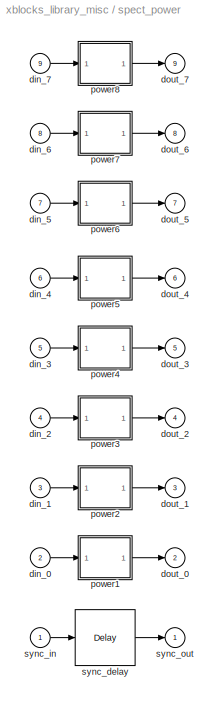
BLOCK [SubSystem] spect_power
  FunctionWithSeparateData = off
  MaskCallbackString = ||||
  MaskEnableString = on,on,on,on,on
  MaskHideContents = off
  MaskIconFrame = on
  MaskIconOpaque = on
  MaskIconRotate = none
  MaskIconUnits = autoscale
  MaskInitialization = config.source = str2func('spect_power_init_xblock');\nconfig.depend = {'spect_power_init_xblock.m'};\nconfig.toplevel = gcb;\nxBlock(config, {config.toplevel, ...\n    'bitwidth', bitwidth, 'add_latency', add_latency, ...\n    'mult_latency', mult_latency, 'mode', mode, ....\n    'n_inputs', n_inputs});
  MaskPortRotate = default
  MaskPromptString = Bit Width|Adder Latency|Mult Latency|Mode|Number of Inputs
  MaskStyleString = edit,edit,edit,popup(behavioral|dsp48e),edit
  MaskToolTipString = on,on,on,on,on
  MaskTunableValueString = on,on,on,on,on
  MaskValueString = 18|2|3|dsp48e|8
  MaskVariables = bitwidth=@1;add_latency=@2;mult_latency=@3;mode=&4;n_inputs=@5;
  MaskVisibilityString = on,on,on,on,on
  MinAlgLoopOccurrences = off
  Opaque = off
  Ports = [9, 9]
  PropExecContextOutsideSubsystem = off
  RTWSystemCode = Auto
  RequestExecContextInheritance = off
  SID = 614
  UserData = DataTag8
  UserDataPersistent = on
BLOCK [Inport] spect_power/din_0
  IconDisplay = Port number
  Port = 2
  SID = 616
BLOCK [Inport] spect_power/din_1
  IconDisplay = Port number
  Port = 3
  SID = 617
BLOCK [Inport] spect_power/din_2
  IconDisplay = Port number
  Port = 4
  SID = 618
BLOCK [Inport] spect_power/din_3
  IconDisplay = Port number
  Port = 5
  SID = 619
BLOCK [Inport] spect_power/din_4
  IconDisplay = Port number
  Port = 6
  SID = 620
BLOCK [Inport] spect_power/din_5
  IconDisplay = Port number
  Port = 7
  SID = 621
BLOCK [Inport] spect_power/din_6
  IconDisplay = Port number
  Port = 8
  SID = 622
BLOCK [Inport] spect_power/din_7
  IconDisplay = Port number
  Port = 9
  SID = 623
BLOCK [Outport] spect_power/dout_0
  IconDisplay = Port number
  Port = 2
  SID = 810
BLOCK [Outport] spect_power/dout_1
  IconDisplay = Port number
  Port = 3
  SID = 811
BLOCK [Outport] spect_power/dout_2
  IconDisplay = Port number
  Port = 4
  SID = 812
BLOCK [Outport] spect_power/dout_3
  IconDisplay = Port number
  Port = 5
  SID = 813
BLOCK [Outport] spect_power/dout_4
  IconDisplay = Port number
  Port = 6
  SID = 814
BLOCK [Outport] spect_power/dout_5
  IconDisplay = Port number
  Port = 7
  SID = 815
BLOCK [Outport] spect_power/dout_6
  IconDisplay = Port number
  Port = 8
  SID = 816
BLOCK [Outport] spect_power/dout_7
  IconDisplay = Port number
  Port = 9
  SID = 817
BLOCK [SubSystem] spect_power/power1
  FunctionWithSeparateData = off
  MaskHideContents = off
  MinAlgLoopOccurrences = off
  Opaque = off
  Ports = [1, 1]
  PropExecContextOutsideSubsystem = off
  RTWSystemCode = Auto
  RequestExecContextInheritance = off
  SID = 624
BLOCK [Reference] spect_power/power1/Constant1  REF=xbsIndex_r4/Constant
  Ports = [0, 1]
  SID = 626
  SourceBlock = xbsIndex_r4/Constant
  SourceType = Xilinx Constant Block Block
  arith_type = Unsigned
  bin_pt = 0
  block_type = constant
  block_version = 11.4
  carry = CIN
  const = 0
  dbl_ovrd = off
  dsp48_infoedit = The use of this block for DSP48 instructions is deprecated.  Please use the Opmode block.
  equ = P=C
  explicit_period = off
  has_advanced_control = 0
  inp1 = P
  inp2 = PCIN>>17
  n_bits = 4
  opr = +
  opselect = C
  period = 1
  sg_icon_stat = 55,26,0,1,white,blue,0,bf4ddd8b,right,
  sg_mask_display = fprintf('','COMMENT: begin icon graphics');\npatch([0 1 1 0 ],[0 0 1 1 ],[0.77 0.82 0.91]);\npatch([0.363636 0.290909 0.4 0.290909 0.363636 0.490909 0.527273 0.563636 0.690909 0.581818 0.472727 0.4 0.509091 0.4 0.472727 0.581818 0.690909 0.563636 0.527273 0.490909 0.363636 ],[0.115385 0.269231 0.5 0.730769 0.884615 0.884615 0.807692 0.884615 0.884615 0.653846 0.884615 0.730769 0.5 0.269231 0.11538...<+279ch>  <repeated x56 — deduplicated; at blocks: Constant1, Constant2, Constant4, Constant5, Constant6, Constant7, Constant8>
  sggui_pos = -1,-1,-1,-1
BLOCK [Reference] spect_power/power1/Constant2  REF=xbsIndex_r4/Constant
  Ports = [0, 1]
  SID = 627
  SourceBlock = xbsIndex_r4/Constant
  SourceType = Xilinx Constant Block Block
  arith_type = Unsigned
  bin_pt = 0
  block_type = constant
  block_version = 11.4
  carry = CIN
  const = 0
  dbl_ovrd = off
  dsp48_infoedit = The use of this block for DSP48 instructions is deprecated.  Please use the Opmode block.
  equ = P=C
  explicit_period = off
  has_advanced_control = 0
  inp1 = P
  inp2 = PCIN>>17
  n_bits = 4
  opr = +
  opselect = C
  period = 1
  sg_icon_stat = 55,26,0,1,white,blue,0,bf4ddd8b,right,
  sggui_pos = -1,-1,-1,-1
BLOCK [Reference] spect_power/power1/Constant3  REF=xbsIndex_r4/Constant
  Ports = [0, 1]
  SID = 628
  SourceBlock = xbsIndex_r4/Constant
  SourceType = Xilinx Constant Block Block
  arith_type = Unsigned
  bin_pt = 0
  block_type = constant
  block_version = 11.4
  carry = CIN
  const = 21
  dbl_ovrd = off
  dsp48_infoedit = The use of this block for DSP48 instructions is deprecated.  Please use the Opmode block.
  equ = P=C
  explicit_period = off
  has_advanced_control = 0
  inp1 = P
  inp2 = PCIN>>17
  n_bits = 7
  opr = +
  opselect = C
  period = 1
  sg_icon_stat = 55,26,0,1,white,blue,0,b02509bd,right,
  sg_mask_display = fprintf('','COMMENT: begin icon graphics');\npatch([0 1 1 0 ],[0 0 1 1 ],[0.77 0.82 0.91]);\npatch([0.363636 0.290909 0.4 0.290909 0.363636 0.490909 0.527273 0.563636 0.690909 0.581818 0.472727 0.4 0.509091 0.4 0.472727 0.581818 0.690909 0.563636 0.527273 0.490909 0.363636 ],[0.115385 0.269231 0.5 0.730769 0.884615 0.884615 0.807692 0.884615 0.884615 0.653846 0.884615 0.730769 0.5 0.269231 0.11538...<+280ch>  <repeated x8 — deduplicated; at blocks: Constant3>
  sggui_pos = -1,-1,-1,-1
BLOCK [Reference] spect_power/power1/Constant4  REF=xbsIndex_r4/Constant
  Ports = [0, 1]
  SID = 629
  SourceBlock = xbsIndex_r4/Constant
  SourceType = Xilinx Constant Block Block
  arith_type = Unsigned
  bin_pt = 0
  block_type = constant
  block_version = 11.4
  carry = CIN
  const = 0
  dbl_ovrd = off
  dsp48_infoedit = The use of this block for DSP48 instructions is deprecated.  Please use the Opmode block.
  equ = P=C
  explicit_period = off
  has_advanced_control = 0
  inp1 = P
  inp2 = PCIN>>17
  n_bits = 3
  opr = +
  opselect = C
  period = 1
  sg_icon_stat = 55,26,0,1,white,blue,0,bf4ddd8b,right,
  sggui_pos = -1,-1,-1,-1
BLOCK [Reference] spect_power/power1/Constant5  REF=xbsIndex_r4/Constant
  Ports = [0, 1]
  SID = 630
  SourceBlock = xbsIndex_r4/Constant
  SourceType = Xilinx Constant Block Block
  arith_type = Unsigned
  bin_pt = 0
  block_type = constant
  block_version = 11.4
  carry = CIN
  const = 0
  dbl_ovrd = off
  dsp48_infoedit = The use of this block for DSP48 instructions is deprecated.  Please use the Opmode block.
  equ = P=C
  explicit_period = off
  has_advanced_control = 0
  inp1 = P
  inp2 = PCIN>>17
  n_bits = 1
  opr = +
  opselect = C
  period = 1
  sg_icon_stat = 55,26,0,1,white,blue,0,bf4ddd8b,right,
  sggui_pos = -1,-1,-1,-1
BLOCK [Reference] spect_power/power1/Constant6  REF=xbsIndex_r4/Constant
  Ports = [0, 1]
  SID = 631
  SourceBlock = xbsIndex_r4/Constant
  SourceType = Xilinx Constant Block Block
  arith_type = Unsigned
  bin_pt = 0
  block_type = constant
  block_version = 11.4
  carry = CIN
  const = 5
  dbl_ovrd = off
  dsp48_infoedit = The use of this block for DSP48 instructions is deprecated.  Please use the Opmode block.
  equ = P=C
  explicit_period = off
  has_advanced_control = 0
  inp1 = P
  inp2 = PCIN>>17
  n_bits = 7
  opr = +
  opselect = C
  period = 1
  sg_icon_stat = 55,26,0,1,white,blue,0,98872051,right,
  sggui_pos = -1,-1,-1,-1
BLOCK [Reference] spect_power/power1/Constant7  REF=xbsIndex_r4/Constant
  Ports = [0, 1]
  SID = 632
  SourceBlock = xbsIndex_r4/Constant
  SourceType = Xilinx Constant Block Block
  arith_type = Unsigned
  bin_pt = 0
  block_type = constant
  block_version = 11.4
  carry = CIN
  const = 0
  dbl_ovrd = off
  dsp48_infoedit = The use of this block for DSP48 instructions is deprecated.  Please use the Opmode block.
  equ = P=C
  explicit_period = off
  has_advanced_control = 0
  inp1 = P
  inp2 = PCIN>>17
  n_bits = 3
  opr = +
  opselect = C
  period = 1
  sg_icon_stat = 55,26,0,1,white,blue,0,bf4ddd8b,right,
  sggui_pos = -1,-1,-1,-1
BLOCK [Reference] spect_power/power1/Constant8  REF=xbsIndex_r4/Constant
  Ports = [0, 1]
  SID = 633
  SourceBlock = xbsIndex_r4/Constant
  SourceType = Xilinx Constant Block Block
  arith_type = Unsigned
  bin_pt = 0
  block_type = constant
  block_version = 11.4
  carry = CIN
  const = 0
  dbl_ovrd = off
  dsp48_infoedit = The use of this block for DSP48 instructions is deprecated.  Please use the Opmode block.
  equ = P=C
  explicit_period = off
  has_advanced_control = 0
  inp1 = P
  inp2 = PCIN>>17
  n_bits = 1
  opr = +
  opselect = C
  period = 1
  sg_icon_stat = 55,26,0,1,white,blue,0,bf4ddd8b,right,
  sggui_pos = -1,-1,-1,-1
BLOCK [Reference] spect_power/power1/Convert  REF=xbsIndex_r4/Convert
  Ports = [1, 1]
  SID = 634
  SourceBlock = xbsIndex_r4/Convert
  SourceType = Xilinx Type Converter Block
  arith_type = Signed  (2's comp)
  bin_pt = 0
  block_type = convert
  block_version = 11.4
  dbl_ovrd = off
  has_advanced_control = 0
  infoedit = Hardware notes: rounding and saturating require hardware resources; truncating and wrapping do not.
  latency = 0
  n_bits = 30
  overflow = Wrap
  pipeline = off
  quantization = Truncate
  sg_icon_stat = 45,32,1,1,white,blue,0,edca21da,right,
  sg_mask_display = fprintf('','COMMENT: begin icon graphics');\npatch([0 1 1 0 ],[0 0 1 1 ],[0.77 0.82 0.91]);\npatch([0.311111 0.2 0.355556 0.2 0.311111 0.488889 0.533333 0.577778 0.777778 0.622222 0.466667 0.355556 0.511111 0.355556 0.466667 0.622222 0.777778 0.577778 0.533333 0.488889 0.311111 ],[0.09375 0.25 0.46875 0.6875 0.84375 0.84375 0.78125 0.84375 0.84375 0.625 0.84375 0.6875 0.46875 0.25 0.09375 0.3125 0...<+265ch>  <repeated x16 — deduplicated; at blocks: Convert, Convert3>
  sggui_pos = -1,-1,-1,-1
  xl_area = [0,0,0,0,0,0,0]
  xl_use_area = off
BLOCK [Reference] spect_power/power1/Convert2  REF=xbsIndex_r4/Convert
  Ports = [1, 1]
  SID = 635
  SourceBlock = xbsIndex_r4/Convert
  SourceType = Xilinx Type Converter Block
  arith_type = Signed  (2's comp)
  bin_pt = 0
  block_type = convert
  block_version = 11.4
  dbl_ovrd = off
  has_advanced_control = 0
  infoedit = Hardware notes: rounding and saturating require hardware resources; truncating and wrapping do not.
  latency = 0
  n_bits = 30
  overflow = Wrap
  pipeline = off
  quantization = Truncate
  sg_icon_stat = 45,30,1,1,white,blue,0,edca21da,right,
  sg_mask_display = fprintf('','COMMENT: begin icon graphics');\npatch([0 1 1 0 ],[0 0 1 1 ],[0.77 0.82 0.91]);\npatch([0.333333 0.222222 0.377778 0.222222 0.333333 0.511111 0.555556 0.6 0.777778 0.622222 0.488889 0.377778 0.511111 0.377778 0.488889 0.622222 0.777778 0.6 0.555556 0.511111 0.333333 ],[0.1 0.266667 0.5 0.733333 0.9 0.9 0.833333 0.9 0.9 0.666667 0.866667 0.7 0.5 0.3 0.133333 0.333333 0.1 0.1 0.166667 0....<+232ch>  <repeated x16 — deduplicated; at blocks: Convert2, Convert4>
  sggui_pos = -1,-1,-1,-1
  xl_area = [0,0,0,0,0,0,0]
  xl_use_area = off
BLOCK [Reference] spect_power/power1/Convert3  REF=xbsIndex_r4/Convert
  Ports = [1, 1]
  SID = 636
  SourceBlock = xbsIndex_r4/Convert
  SourceType = Xilinx Type Converter Block
  arith_type = Signed  (2's comp)
  bin_pt = 0
  block_type = convert
  block_version = 11.4
  dbl_ovrd = off
  has_advanced_control = 0
  infoedit = Hardware notes: rounding and saturating require hardware resources; truncating and wrapping do not.
  latency = 0
  n_bits = 18
  overflow = Wrap
  pipeline = off
  quantization = Truncate
  sg_icon_stat = 45,32,1,1,white,blue,0,edca21da,right,
  sggui_pos = -1,-1,-1,-1
  xl_area = [0,0,0,0,0,0,0]
  xl_use_area = off
BLOCK [Reference] spect_power/power1/Convert4  REF=xbsIndex_r4/Convert
  Ports = [1, 1]
  SID = 637
  SourceBlock = xbsIndex_r4/Convert
  SourceType = Xilinx Type Converter Block
  arith_type = Signed  (2's comp)
  bin_pt = 0
  block_type = convert
  block_version = 11.4
  dbl_ovrd = off
  has_advanced_control = 0
  infoedit = Hardware notes: rounding and saturating require hardware resources; truncating and wrapping do not.
  latency = 0
  n_bits = 18
  overflow = Wrap
  pipeline = off
  quantization = Truncate
  sg_icon_stat = 45,30,1,1,white,blue,0,edca21da,right,
  sggui_pos = -1,-1,-1,-1
  xl_area = [0,0,0,0,0,0,0]
  xl_use_area = off
BLOCK [Reference] spect_power/power1/DSP48E_0  REF=xbsIndex_r4/DSP48E
  Ports = [6, 2]
  SID = 638
  SourceBlock = xbsIndex_r4/DSP48E
  SourceType = Xilinx DSP48E Block
  addsub_mode = ONE48
  block_type = dsp48e
  block_version = 11.4
  en_a1 = off
  en_a2 = off
  en_all = off
  en_alumode = off
  en_b1 = off
  en_b2 = off
  en_c = off
  en_carry_in = off
  en_ctrl = off
  en_mult = off
  en_multcarryin = off
  en_p = off
  has_advanced_control = 0
  mask_from_creg = off
  pattern = '000000000000'
  pattern_from_creg = off
  pattern_mask = '3FFFFFFFFFFF'
  pipeline_a = 1
  pipeline_acout = 1
  pipeline_alumode = on
  pipeline_b = 1
  pipeline_bcout = 1
  pipeline_c = on
  pipeline_carryin = on
  pipeline_carryinsel = on
  pipeline_mult = on
  pipeline_opmode = on
  pipeline_p = on
  reset_preg = off
  rst_a = off
  rst_all = off
  rst_alumode = off
  rst_b = off
  rst_c = off
  rst_carry_in = off
  rst_ctrl = off
  rst_mult = off
  rst_p = off
  sel_rounding_mask = Select mask
  sg_icon_stat = 75,136,6,2,white,blue,0,c3facdee,right,
  sg_mask_display = fprintf('','COMMENT: begin icon graphics');\npatch([0 1 1 0 ],[0 0 1 1 ],[0.77 0.82 0.91]);\npatch([0.226667 0.0666667 0.306667 0.0666667 0.226667 0.493333 0.56 0.626667 0.906667 0.68 0.466667 0.306667 0.533333 0.306667 0.466667 0.68 0.906667 0.626667 0.56 0.493333 0.226667 ],[0.286765 0.375 0.507353 0.639706 0.727941 0.727941 0.691176 0.727941 0.727941 0.602941 0.720588 0.632353 0.507353 0.382353...<+619ch>  <repeated x8 — deduplicated; at blocks: DSP48E_0>
  sggui_pos = -1,-1,-1,-1
  use_a = Direct from A Port
  use_acout = off
  use_b = Direct from B Port
  use_bcout = off
  use_carrycascin = off
  use_carrycascout = off
  use_carryout = off
  use_creg = off
  use_multsignin = off
  use_multsignout = off
  use_op = off
  use_overflow = off
  use_patternbdetect = off
  use_patterndetect = off
  use_pcin = off
  use_pcout = on
  use_synth_model = off
  use_underflow = off
  xl_area = [0,0,0,0,0,0,0]
  xl_use_area = off
  xl_useadderonly = off
BLOCK [Reference] spect_power/power1/DSP48E_1  REF=xbsIndex_r4/DSP48E
  Ports = [7, 1]
  SID = 639
  SourceBlock = xbsIndex_r4/DSP48E
  SourceType = Xilinx DSP48E Block
  addsub_mode = ONE48
  block_type = dsp48e
  block_version = 11.4
  en_a1 = off
  en_a2 = off
  en_all = off
  en_alumode = off
  en_b1 = off
  en_b2 = off
  en_c = off
  en_carry_in = off
  en_ctrl = off
  en_mult = off
  en_multcarryin = off
  en_p = off
  has_advanced_control = 0
  mask_from_creg = off
  pattern = '000000000000'
  pattern_from_creg = off
  pattern_mask = '3FFFFFFFFFFF'
  pipeline_a = 2
  pipeline_acout = 1
  pipeline_alumode = on
  pipeline_b = 2
  pipeline_bcout = 1
  pipeline_c = on
  pipeline_carryin = on
  pipeline_carryinsel = on
  pipeline_mult = on
  pipeline_opmode = on
  pipeline_p = on
  reset_preg = off
  rst_a = off
  rst_all = off
  rst_alumode = off
  rst_b = off
  rst_c = off
  rst_carry_in = off
  rst_ctrl = off
  rst_mult = off
  rst_p = off
  sel_rounding_mask = Select mask
  sg_icon_stat = 75,136,7,1,white,blue,0,b41431cb,right,
  sg_mask_display = fprintf('','COMMENT: begin icon graphics');\npatch([0 1 1 0 ],[0 0 1 1 ],[0.77 0.82 0.91]);\npatch([0.226667 0.0666667 0.306667 0.0666667 0.226667 0.493333 0.56 0.626667 0.906667 0.68 0.466667 0.306667 0.533333 0.306667 0.466667 0.68 0.906667 0.626667 0.56 0.493333 0.226667 ],[0.286765 0.375 0.507353 0.639706 0.727941 0.727941 0.691176 0.727941 0.727941 0.602941 0.720588 0.632353 0.507353 0.382353...<+617ch>  <repeated x8 — deduplicated; at blocks: DSP48E_1>
  sggui_pos = -1,-1,-1,-1
  use_a = Direct from A Port
  use_acout = off
  use_b = Direct from B Port
  use_bcout = off
  use_carrycascin = off
  use_carrycascout = off
  use_carryout = off
  use_creg = off
  use_multsignin = off
  use_multsignout = off
  use_op = off
  use_overflow = off
  use_patternbdetect = off
  use_patterndetect = off
  use_pcin = on
  use_pcout = off
  use_synth_model = off
  use_underflow = off
  xl_area = [0,0,0,0,0,0,0]
  xl_use_area = off
  xl_useadderonly = off
BLOCK [Inport] spect_power/power1/c
  IconDisplay = Port number
  SID = 625
BLOCK [Outport] spect_power/power1/p
  IconDisplay = Port number
  SID = 646
BLOCK [Reference] spect_power/power1/reinterp_imag  REF=xbsIndex_r4/Reinterpret
  Ports = [1, 1]
  SID = 640
  SourceBlock = xbsIndex_r4/Reinterpret
  SourceType = Xilinx Type Reinterpreter Block
  arith_type = Signed  (2's comp)
  bin_pt = 0
  block_type = reinterpret
  block_version = 11.4
  force_arith_type = on
  force_bin_pt = off
  has_advanced_control = 0
  sg_icon_stat = 50,32,1,1,white,blue,0,6b04d0b0,right,
  sggui_pos = -1,-1,-1,-1
BLOCK [Reference] spect_power/power1/reinterp_power  REF=xbsIndex_r4/Reinterpret
  Ports = [1, 1]
  SID = 641
  SourceBlock = xbsIndex_r4/Reinterpret
  SourceType = Xilinx Type Reinterpreter Block
  arith_type = Unsigned
  bin_pt = 34
  block_type = reinterpret
  block_version = 11.4
  force_arith_type = on
  force_bin_pt = on
  has_advanced_control = 0
  sg_icon_stat = 45,32,1,1,white,blue,0,6b04d0b0,right,
  sg_mask_display = fprintf('','COMMENT: begin icon graphics');\npatch([0 1 1 0 ],[0 0 1 1 ],[0.77 0.82 0.91]);\npatch([0.311111 0.2 0.355556 0.2 0.311111 0.488889 0.533333 0.577778 0.777778 0.622222 0.466667 0.355556 0.511111 0.355556 0.466667 0.622222 0.777778 0.577778 0.533333 0.488889 0.311111 ],[0.09375 0.25 0.46875 0.6875 0.84375 0.84375 0.78125 0.84375 0.84375 0.625 0.84375 0.6875 0.46875 0.25 0.09375 0.3125 0...<+255ch>  <repeated x8 — deduplicated; at blocks: reinterp_power>
  sggui_pos = -1,-1,-1,-1
BLOCK [Reference] spect_power/power1/reinterp_real  REF=xbsIndex_r4/Reinterpret
  Ports = [1, 1]
  SID = 642
  SourceBlock = xbsIndex_r4/Reinterpret
  SourceType = Xilinx Type Reinterpreter Block
  arith_type = Signed  (2's comp)
  bin_pt = 0
  block_type = reinterpret
  block_version = 11.4
  force_arith_type = on
  force_bin_pt = off
  has_advanced_control = 0
  sg_icon_stat = 50,32,1,1,white,blue,0,6b04d0b0,right,
  sggui_pos = -1,-1,-1,-1
BLOCK [Reference] spect_power/power1/slice_imag  REF=xbsIndex_r4/Slice
  Ports = [1, 1]
  SID = 643
  SourceBlock = xbsIndex_r4/Slice
  SourceType = Xilinx Bit Slice Extractor Block
  base0 = LSB of Input
  base1 = MSB of Input
  bit0 = 0
  bit1 = 0
  block_type = slice
  block_version = 11.4
  boolean_output = off
  dbl_ovrd = off
  has_advanced_control = 0
  mode = Lower Bit Location + Width
  nbits = 18
  sg_icon_stat = 60,30,1,1,white,blue,0,1fd851a7,right,
  sg_mask_display = fprintf('','COMMENT: begin icon graphics');\npatch([0 1 1 0 ],[0 0 1 1 ],[0.77 0.82 0.91]);\npatch([0.366667 0.283333 0.4 0.283333 0.366667 0.5 0.533333 0.566667 0.7 0.583333 0.483333 0.4 0.5 0.4 0.483333 0.583333 0.7 0.566667 0.533333 0.5 0.366667 ],[0.1 0.266667 0.5 0.733333 0.9 0.9 0.833333 0.9 0.9 0.666667 0.866667 0.7 0.5 0.3 0.133333 0.333333 0.1 0.1 0.166667 0.1 0.1 ],[0.98 0.96 0.92]);\npl...<+203ch>  <repeated x24 — deduplicated; at blocks: slice_imag, slice_power, slice_real>
  sggui_pos = -1,-1,-1,-1
BLOCK [Reference] spect_power/power1/slice_power  REF=xbsIndex_r4/Slice
  Ports = [1, 1]
  SID = 644
  SourceBlock = xbsIndex_r4/Slice
  SourceType = Xilinx Bit Slice Extractor Block
  base0 = LSB of Input
  base1 = MSB of Input
  bit0 = 0
  bit1 = 0
  block_type = slice
  block_version = 11.4
  boolean_output = off
  dbl_ovrd = off
  has_advanced_control = 0
  mode = Lower Bit Location + Width
  nbits = 36
  sg_icon_stat = 60,30,1,1,white,blue,0,1fd851a7,right,
  sggui_pos = -1,-1,-1,-1
BLOCK [Reference] spect_power/power1/slice_real  REF=xbsIndex_r4/Slice
  Ports = [1, 1]
  SID = 645
  SourceBlock = xbsIndex_r4/Slice
  SourceType = Xilinx Bit Slice Extractor Block
  base0 = LSB of Input
  base1 = MSB of Input
  bit0 = 0
  bit1 = 0
  block_type = slice
  block_version = 11.4
  boolean_output = off
  dbl_ovrd = off
  has_advanced_control = 0
  mode = Upper Bit Location + Width
  nbits = 18
  sg_icon_stat = 60,30,1,1,white,blue,0,1fd851a7,right,
  sggui_pos = -1,-1,-1,-1
BLOCK [SubSystem] spect_power/power2
  FunctionWithSeparateData = off
  MaskHideContents = off
  MinAlgLoopOccurrences = off
  Opaque = off
  Ports = [1, 1]
  PropExecContextOutsideSubsystem = off
  RTWSystemCode = Auto
  RequestExecContextInheritance = off
  SID = 647
BLOCK [Reference] spect_power/power2/Constant1  REF=xbsIndex_r4/Constant
  Ports = [0, 1]
  SID = 649
  SourceBlock = xbsIndex_r4/Constant
  SourceType = Xilinx Constant Block Block
  arith_type = Unsigned
  bin_pt = 0
  block_type = constant
  block_version = 11.4
  carry = CIN
  const = 0
  dbl_ovrd = off
  dsp48_infoedit = The use of this block for DSP48 instructions is deprecated.  Please use the Opmode block.
  equ = P=C
  explicit_period = off
  has_advanced_control = 0
  inp1 = P
  inp2 = PCIN>>17
  n_bits = 4
  opr = +
  opselect = C
  period = 1
  sg_icon_stat = 55,26,0,1,white,blue,0,bf4ddd8b,right,
  sggui_pos = -1,-1,-1,-1
BLOCK [Reference] spect_power/power2/Constant2  REF=xbsIndex_r4/Constant
  Ports = [0, 1]
  SID = 650
  SourceBlock = xbsIndex_r4/Constant
  SourceType = Xilinx Constant Block Block
  arith_type = Unsigned
  bin_pt = 0
  block_type = constant
  block_version = 11.4
  carry = CIN
  const = 0
  dbl_ovrd = off
  dsp48_infoedit = The use of this block for DSP48 instructions is deprecated.  Please use the Opmode block.
  equ = P=C
  explicit_period = off
  has_advanced_control = 0
  inp1 = P
  inp2 = PCIN>>17
  n_bits = 4
  opr = +
  opselect = C
  period = 1
  sg_icon_stat = 55,26,0,1,white,blue,0,bf4ddd8b,right,
  sggui_pos = -1,-1,-1,-1
BLOCK [Reference] spect_power/power2/Constant3  REF=xbsIndex_r4/Constant
  Ports = [0, 1]
  SID = 651
  SourceBlock = xbsIndex_r4/Constant
  SourceType = Xilinx Constant Block Block
  arith_type = Unsigned
  bin_pt = 0
  block_type = constant
  block_version = 11.4
  carry = CIN
  const = 21
  dbl_ovrd = off
  dsp48_infoedit = The use of this block for DSP48 instructions is deprecated.  Please use the Opmode block.
  equ = P=C
  explicit_period = off
  has_advanced_control = 0
  inp1 = P
  inp2 = PCIN>>17
  n_bits = 7
  opr = +
  opselect = C
  period = 1
  sg_icon_stat = 55,26,0,1,white,blue,0,b02509bd,right,
  sggui_pos = -1,-1,-1,-1
BLOCK [Reference] spect_power/power2/Constant4  REF=xbsIndex_r4/Constant
  Ports = [0, 1]
  SID = 652
  SourceBlock = xbsIndex_r4/Constant
  SourceType = Xilinx Constant Block Block
  arith_type = Unsigned
  bin_pt = 0
  block_type = constant
  block_version = 11.4
  carry = CIN
  const = 0
  dbl_ovrd = off
  dsp48_infoedit = The use of this block for DSP48 instructions is deprecated.  Please use the Opmode block.
  equ = P=C
  explicit_period = off
  has_advanced_control = 0
  inp1 = P
  inp2 = PCIN>>17
  n_bits = 3
  opr = +
  opselect = C
  period = 1
  sg_icon_stat = 55,26,0,1,white,blue,0,bf4ddd8b,right,
  sggui_pos = -1,-1,-1,-1
BLOCK [Reference] spect_power/power2/Constant5  REF=xbsIndex_r4/Constant
  Ports = [0, 1]
  SID = 653
  SourceBlock = xbsIndex_r4/Constant
  SourceType = Xilinx Constant Block Block
  arith_type = Unsigned
  bin_pt = 0
  block_type = constant
  block_version = 11.4
  carry = CIN
  const = 0
  dbl_ovrd = off
  dsp48_infoedit = The use of this block for DSP48 instructions is deprecated.  Please use the Opmode block.
  equ = P=C
  explicit_period = off
  has_advanced_control = 0
  inp1 = P
  inp2 = PCIN>>17
  n_bits = 1
  opr = +
  opselect = C
  period = 1
  sg_icon_stat = 55,26,0,1,white,blue,0,bf4ddd8b,right,
  sggui_pos = -1,-1,-1,-1
BLOCK [Reference] spect_power/power2/Constant6  REF=xbsIndex_r4/Constant
  Ports = [0, 1]
  SID = 654
  SourceBlock = xbsIndex_r4/Constant
  SourceType = Xilinx Constant Block Block
  arith_type = Unsigned
  bin_pt = 0
  block_type = constant
  block_version = 11.4
  carry = CIN
  const = 5
  dbl_ovrd = off
  dsp48_infoedit = The use of this block for DSP48 instructions is deprecated.  Please use the Opmode block.
  equ = P=C
  explicit_period = off
  has_advanced_control = 0
  inp1 = P
  inp2 = PCIN>>17
  n_bits = 7
  opr = +
  opselect = C
  period = 1
  sg_icon_stat = 55,26,0,1,white,blue,0,98872051,right,
  sggui_pos = -1,-1,-1,-1
BLOCK [Reference] spect_power/power2/Constant7  REF=xbsIndex_r4/Constant
  Ports = [0, 1]
  SID = 655
  SourceBlock = xbsIndex_r4/Constant
  SourceType = Xilinx Constant Block Block
  arith_type = Unsigned
  bin_pt = 0
  block_type = constant
  block_version = 11.4
  carry = CIN
  const = 0
  dbl_ovrd = off
  dsp48_infoedit = The use of this block for DSP48 instructions is deprecated.  Please use the Opmode block.
  equ = P=C
  explicit_period = off
  has_advanced_control = 0
  inp1 = P
  inp2 = PCIN>>17
  n_bits = 3
  opr = +
  opselect = C
  period = 1
  sg_icon_stat = 55,26,0,1,white,blue,0,bf4ddd8b,right,
  sggui_pos = -1,-1,-1,-1
BLOCK [Reference] spect_power/power2/Constant8  REF=xbsIndex_r4/Constant
  Ports = [0, 1]
  SID = 656
  SourceBlock = xbsIndex_r4/Constant
  SourceType = Xilinx Constant Block Block
  arith_type = Unsigned
  bin_pt = 0
  block_type = constant
  block_version = 11.4
  carry = CIN
  const = 0
  dbl_ovrd = off
  dsp48_infoedit = The use of this block for DSP48 instructions is deprecated.  Please use the Opmode block.
  equ = P=C
  explicit_period = off
  has_advanced_control = 0
  inp1 = P
  inp2 = PCIN>>17
  n_bits = 1
  opr = +
  opselect = C
  period = 1
  sg_icon_stat = 55,26,0,1,white,blue,0,bf4ddd8b,right,
  sggui_pos = -1,-1,-1,-1
BLOCK [Reference] spect_power/power2/Convert  REF=xbsIndex_r4/Convert
  Ports = [1, 1]
  SID = 657
  SourceBlock = xbsIndex_r4/Convert
  SourceType = Xilinx Type Converter Block
  arith_type = Signed  (2's comp)
  bin_pt = 0
  block_type = convert
  block_version = 11.4
  dbl_ovrd = off
  has_advanced_control = 0
  infoedit = Hardware notes: rounding and saturating require hardware resources; truncating and wrapping do not.
  latency = 0
  n_bits = 30
  overflow = Wrap
  pipeline = off
  quantization = Truncate
  sg_icon_stat = 45,32,1,1,white,blue,0,edca21da,right,
  sggui_pos = -1,-1,-1,-1
  xl_area = [0,0,0,0,0,0,0]
  xl_use_area = off
BLOCK [Reference] spect_power/power2/Convert2  REF=xbsIndex_r4/Convert
  Ports = [1, 1]
  SID = 658
  SourceBlock = xbsIndex_r4/Convert
  SourceType = Xilinx Type Converter Block
  arith_type = Signed  (2's comp)
  bin_pt = 0
  block_type = convert
  block_version = 11.4
  dbl_ovrd = off
  has_advanced_control = 0
  infoedit = Hardware notes: rounding and saturating require hardware resources; truncating and wrapping do not.
  latency = 0
  n_bits = 30
  overflow = Wrap
  pipeline = off
  quantization = Truncate
  sg_icon_stat = 45,30,1,1,white,blue,0,edca21da,right,
  sggui_pos = -1,-1,-1,-1
  xl_area = [0,0,0,0,0,0,0]
  xl_use_area = off
BLOCK [Reference] spect_power/power2/Convert3  REF=xbsIndex_r4/Convert
  Ports = [1, 1]
  SID = 659
  SourceBlock = xbsIndex_r4/Convert
  SourceType = Xilinx Type Converter Block
  arith_type = Signed  (2's comp)
  bin_pt = 0
  block_type = convert
  block_version = 11.4
  dbl_ovrd = off
  has_advanced_control = 0
  infoedit = Hardware notes: rounding and saturating require hardware resources; truncating and wrapping do not.
  latency = 0
  n_bits = 18
  overflow = Wrap
  pipeline = off
  quantization = Truncate
  sg_icon_stat = 45,32,1,1,white,blue,0,edca21da,right,
  sggui_pos = -1,-1,-1,-1
  xl_area = [0,0,0,0,0,0,0]
  xl_use_area = off
BLOCK [Reference] spect_power/power2/Convert4  REF=xbsIndex_r4/Convert
  Ports = [1, 1]
  SID = 660
  SourceBlock = xbsIndex_r4/Convert
  SourceType = Xilinx Type Converter Block
  arith_type = Signed  (2's comp)
  bin_pt = 0
  block_type = convert
  block_version = 11.4
  dbl_ovrd = off
  has_advanced_control = 0
  infoedit = Hardware notes: rounding and saturating require hardware resources; truncating and wrapping do not.
  latency = 0
  n_bits = 18
  overflow = Wrap
  pipeline = off
  quantization = Truncate
  sg_icon_stat = 45,30,1,1,white,blue,0,edca21da,right,
  sggui_pos = -1,-1,-1,-1
  xl_area = [0,0,0,0,0,0,0]
  xl_use_area = off
BLOCK [Reference] spect_power/power2/DSP48E_0  REF=xbsIndex_r4/DSP48E
  Ports = [6, 2]
  SID = 661
  SourceBlock = xbsIndex_r4/DSP48E
  SourceType = Xilinx DSP48E Block
  addsub_mode = ONE48
  block_type = dsp48e
  block_version = 11.4
  en_a1 = off
  en_a2 = off
  en_all = off
  en_alumode = off
  en_b1 = off
  en_b2 = off
  en_c = off
  en_carry_in = off
  en_ctrl = off
  en_mult = off
  en_multcarryin = off
  en_p = off
  has_advanced_control = 0
  mask_from_creg = off
  pattern = '000000000000'
  pattern_from_creg = off
  pattern_mask = '3FFFFFFFFFFF'
  pipeline_a = 1
  pipeline_acout = 1
  pipeline_alumode = on
  pipeline_b = 1
  pipeline_bcout = 1
  pipeline_c = on
  pipeline_carryin = on
  pipeline_carryinsel = on
  pipeline_mult = on
  pipeline_opmode = on
  pipeline_p = on
  reset_preg = off
  rst_a = off
  rst_all = off
  rst_alumode = off
  rst_b = off
  rst_c = off
  rst_carry_in = off
  rst_ctrl = off
  rst_mult = off
  rst_p = off
  sel_rounding_mask = Select mask
  sg_icon_stat = 75,136,6,2,white,blue,0,c3facdee,right,
  sggui_pos = -1,-1,-1,-1
  use_a = Direct from A Port
  use_acout = off
  use_b = Direct from B Port
  use_bcout = off
  use_carrycascin = off
  use_carrycascout = off
  use_carryout = off
  use_creg = off
  use_multsignin = off
  use_multsignout = off
  use_op = off
  use_overflow = off
  use_patternbdetect = off
  use_patterndetect = off
  use_pcin = off
  use_pcout = on
  use_synth_model = off
  use_underflow = off
  xl_area = [0,0,0,0,0,0,0]
  xl_use_area = off
  xl_useadderonly = off
BLOCK [Reference] spect_power/power2/DSP48E_1  REF=xbsIndex_r4/DSP48E
  Ports = [7, 1]
  SID = 662
  SourceBlock = xbsIndex_r4/DSP48E
  SourceType = Xilinx DSP48E Block
  addsub_mode = ONE48
  block_type = dsp48e
  block_version = 11.4
  en_a1 = off
  en_a2 = off
  en_all = off
  en_alumode = off
  en_b1 = off
  en_b2 = off
  en_c = off
  en_carry_in = off
  en_ctrl = off
  en_mult = off
  en_multcarryin = off
  en_p = off
  has_advanced_control = 0
  mask_from_creg = off
  pattern = '000000000000'
  pattern_from_creg = off
  pattern_mask = '3FFFFFFFFFFF'
  pipeline_a = 2
  pipeline_acout = 1
  pipeline_alumode = on
  pipeline_b = 2
  pipeline_bcout = 1
  pipeline_c = on
  pipeline_carryin = on
  pipeline_carryinsel = on
  pipeline_mult = on
  pipeline_opmode = on
  pipeline_p = on
  reset_preg = off
  rst_a = off
  rst_all = off
  rst_alumode = off
  rst_b = off
  rst_c = off
  rst_carry_in = off
  rst_ctrl = off
  rst_mult = off
  rst_p = off
  sel_rounding_mask = Select mask
  sg_icon_stat = 75,136,7,1,white,blue,0,b41431cb,right,
  sggui_pos = -1,-1,-1,-1
  use_a = Direct from A Port
  use_acout = off
  use_b = Direct from B Port
  use_bcout = off
  use_carrycascin = off
  use_carrycascout = off
  use_carryout = off
  use_creg = off
  use_multsignin = off
  use_multsignout = off
  use_op = off
  use_overflow = off
  use_patternbdetect = off
  use_patterndetect = off
  use_pcin = on
  use_pcout = off
  use_synth_model = off
  use_underflow = off
  xl_area = [0,0,0,0,0,0,0]
  xl_use_area = off
  xl_useadderonly = off
BLOCK [Inport] spect_power/power2/c
  IconDisplay = Port number
  SID = 648
BLOCK [Outport] spect_power/power2/p
  IconDisplay = Port number
  SID = 669
BLOCK [Reference] spect_power/power2/reinterp_imag  REF=xbsIndex_r4/Reinterpret
  Ports = [1, 1]
  SID = 663
  SourceBlock = xbsIndex_r4/Reinterpret
  SourceType = Xilinx Type Reinterpreter Block
  arith_type = Signed  (2's comp)
  bin_pt = 0
  block_type = reinterpret
  block_version = 11.4
  force_arith_type = on
  force_bin_pt = off
  has_advanced_control = 0
  sg_icon_stat = 50,32,1,1,white,blue,0,6b04d0b0,right,
  sggui_pos = -1,-1,-1,-1
BLOCK [Reference] spect_power/power2/reinterp_power  REF=xbsIndex_r4/Reinterpret
  Ports = [1, 1]
  SID = 664
  SourceBlock = xbsIndex_r4/Reinterpret
  SourceType = Xilinx Type Reinterpreter Block
  arith_type = Unsigned
  bin_pt = 34
  block_type = reinterpret
  block_version = 11.4
  force_arith_type = on
  force_bin_pt = on
  has_advanced_control = 0
  sg_icon_stat = 45,32,1,1,white,blue,0,6b04d0b0,right,
  sggui_pos = -1,-1,-1,-1
BLOCK [Reference] spect_power/power2/reinterp_real  REF=xbsIndex_r4/Reinterpret
  Ports = [1, 1]
  SID = 665
  SourceBlock = xbsIndex_r4/Reinterpret
  SourceType = Xilinx Type Reinterpreter Block
  arith_type = Signed  (2's comp)
  bin_pt = 0
  block_type = reinterpret
  block_version = 11.4
  force_arith_type = on
  force_bin_pt = off
  has_advanced_control = 0
  sg_icon_stat = 50,32,1,1,white,blue,0,6b04d0b0,right,
  sggui_pos = -1,-1,-1,-1
BLOCK [Reference] spect_power/power2/slice_imag  REF=xbsIndex_r4/Slice
  Ports = [1, 1]
  SID = 666
  SourceBlock = xbsIndex_r4/Slice
  SourceType = Xilinx Bit Slice Extractor Block
  base0 = LSB of Input
  base1 = MSB of Input
  bit0 = 0
  bit1 = 0
  block_type = slice
  block_version = 11.4
  boolean_output = off
  dbl_ovrd = off
  has_advanced_control = 0
  mode = Lower Bit Location + Width
  nbits = 18
  sg_icon_stat = 60,30,1,1,white,blue,0,1fd851a7,right,
  sggui_pos = -1,-1,-1,-1
BLOCK [Reference] spect_power/power2/slice_power  REF=xbsIndex_r4/Slice
  Ports = [1, 1]
  SID = 667
  SourceBlock = xbsIndex_r4/Slice
  SourceType = Xilinx Bit Slice Extractor Block
  base0 = LSB of Input
  base1 = MSB of Input
  bit0 = 0
  bit1 = 0
  block_type = slice
  block_version = 11.4
  boolean_output = off
  dbl_ovrd = off
  has_advanced_control = 0
  mode = Lower Bit Location + Width
  nbits = 36
  sg_icon_stat = 60,30,1,1,white,blue,0,1fd851a7,right,
  sggui_pos = -1,-1,-1,-1
BLOCK [Reference] spect_power/power2/slice_real  REF=xbsIndex_r4/Slice
  Ports = [1, 1]
  SID = 668
  SourceBlock = xbsIndex_r4/Slice
  SourceType = Xilinx Bit Slice Extractor Block
  base0 = LSB of Input
  base1 = MSB of Input
  bit0 = 0
  bit1 = 0
  block_type = slice
  block_version = 11.4
  boolean_output = off
  dbl_ovrd = off
  has_advanced_control = 0
  mode = Upper Bit Location + Width
  nbits = 18
  sg_icon_stat = 60,30,1,1,white,blue,0,1fd851a7,right,
  sggui_pos = -1,-1,-1,-1
BLOCK [SubSystem] spect_power/power3
  FunctionWithSeparateData = off
  MaskHideContents = off
  MinAlgLoopOccurrences = off
  Opaque = off
  Ports = [1, 1]
  PropExecContextOutsideSubsystem = off
  RTWSystemCode = Auto
  RequestExecContextInheritance = off
  SID = 670
BLOCK [Reference] spect_power/power3/Constant1  REF=xbsIndex_r4/Constant
  Ports = [0, 1]
  SID = 672
  SourceBlock = xbsIndex_r4/Constant
  SourceType = Xilinx Constant Block Block
  arith_type = Unsigned
  bin_pt = 0
  block_type = constant
  block_version = 11.4
  carry = CIN
  const = 0
  dbl_ovrd = off
  dsp48_infoedit = The use of this block for DSP48 instructions is deprecated.  Please use the Opmode block.
  equ = P=C
  explicit_period = off
  has_advanced_control = 0
  inp1 = P
  inp2 = PCIN>>17
  n_bits = 4
  opr = +
  opselect = C
  period = 1
  sg_icon_stat = 55,26,0,1,white,blue,0,bf4ddd8b,right,
  sggui_pos = -1,-1,-1,-1
BLOCK [Reference] spect_power/power3/Constant2  REF=xbsIndex_r4/Constant
  Ports = [0, 1]
  SID = 673
  SourceBlock = xbsIndex_r4/Constant
  SourceType = Xilinx Constant Block Block
  arith_type = Unsigned
  bin_pt = 0
  block_type = constant
  block_version = 11.4
  carry = CIN
  const = 0
  dbl_ovrd = off
  dsp48_infoedit = The use of this block for DSP48 instructions is deprecated.  Please use the Opmode block.
  equ = P=C
  explicit_period = off
  has_advanced_control = 0
  inp1 = P
  inp2 = PCIN>>17
  n_bits = 4
  opr = +
  opselect = C
  period = 1
  sg_icon_stat = 55,26,0,1,white,blue,0,bf4ddd8b,right,
  sggui_pos = -1,-1,-1,-1
BLOCK [Reference] spect_power/power3/Constant3  REF=xbsIndex_r4/Constant
  Ports = [0, 1]
  SID = 674
  SourceBlock = xbsIndex_r4/Constant
  SourceType = Xilinx Constant Block Block
  arith_type = Unsigned
  bin_pt = 0
  block_type = constant
  block_version = 11.4
  carry = CIN
  const = 21
  dbl_ovrd = off
  dsp48_infoedit = The use of this block for DSP48 instructions is deprecated.  Please use the Opmode block.
  equ = P=C
  explicit_period = off
  has_advanced_control = 0
  inp1 = P
  inp2 = PCIN>>17
  n_bits = 7
  opr = +
  opselect = C
  period = 1
  sg_icon_stat = 55,26,0,1,white,blue,0,b02509bd,right,
  sggui_pos = -1,-1,-1,-1
BLOCK [Reference] spect_power/power3/Constant4  REF=xbsIndex_r4/Constant
  Ports = [0, 1]
  SID = 675
  SourceBlock = xbsIndex_r4/Constant
  SourceType = Xilinx Constant Block Block
  arith_type = Unsigned
  bin_pt = 0
  block_type = constant
  block_version = 11.4
  carry = CIN
  const = 0
  dbl_ovrd = off
  dsp48_infoedit = The use of this block for DSP48 instructions is deprecated.  Please use the Opmode block.
  equ = P=C
  explicit_period = off
  has_advanced_control = 0
  inp1 = P
  inp2 = PCIN>>17
  n_bits = 3
  opr = +
  opselect = C
  period = 1
  sg_icon_stat = 55,26,0,1,white,blue,0,bf4ddd8b,right,
  sggui_pos = -1,-1,-1,-1
BLOCK [Reference] spect_power/power3/Constant5  REF=xbsIndex_r4/Constant
  Ports = [0, 1]
  SID = 676
  SourceBlock = xbsIndex_r4/Constant
  SourceType = Xilinx Constant Block Block
  arith_type = Unsigned
  bin_pt = 0
  block_type = constant
  block_version = 11.4
  carry = CIN
  const = 0
  dbl_ovrd = off
  dsp48_infoedit = The use of this block for DSP48 instructions is deprecated.  Please use the Opmode block.
  equ = P=C
  explicit_period = off
  has_advanced_control = 0
  inp1 = P
  inp2 = PCIN>>17
  n_bits = 1
  opr = +
  opselect = C
  period = 1
  sg_icon_stat = 55,26,0,1,white,blue,0,bf4ddd8b,right,
  sggui_pos = -1,-1,-1,-1
BLOCK [Reference] spect_power/power3/Constant6  REF=xbsIndex_r4/Constant
  Ports = [0, 1]
  SID = 677
  SourceBlock = xbsIndex_r4/Constant
  SourceType = Xilinx Constant Block Block
  arith_type = Unsigned
  bin_pt = 0
  block_type = constant
  block_version = 11.4
  carry = CIN
  const = 5
  dbl_ovrd = off
  dsp48_infoedit = The use of this block for DSP48 instructions is deprecated.  Please use the Opmode block.
  equ = P=C
  explicit_period = off
  has_advanced_control = 0
  inp1 = P
  inp2 = PCIN>>17
  n_bits = 7
  opr = +
  opselect = C
  period = 1
  sg_icon_stat = 55,26,0,1,white,blue,0,98872051,right,
  sggui_pos = -1,-1,-1,-1
BLOCK [Reference] spect_power/power3/Constant7  REF=xbsIndex_r4/Constant
  Ports = [0, 1]
  SID = 678
  SourceBlock = xbsIndex_r4/Constant
  SourceType = Xilinx Constant Block Block
  arith_type = Unsigned
  bin_pt = 0
  block_type = constant
  block_version = 11.4
  carry = CIN
  const = 0
  dbl_ovrd = off
  dsp48_infoedit = The use of this block for DSP48 instructions is deprecated.  Please use the Opmode block.
  equ = P=C
  explicit_period = off
  has_advanced_control = 0
  inp1 = P
  inp2 = PCIN>>17
  n_bits = 3
  opr = +
  opselect = C
  period = 1
  sg_icon_stat = 55,26,0,1,white,blue,0,bf4ddd8b,right,
  sggui_pos = -1,-1,-1,-1
BLOCK [Reference] spect_power/power3/Constant8  REF=xbsIndex_r4/Constant
  Ports = [0, 1]
  SID = 679
  SourceBlock = xbsIndex_r4/Constant
  SourceType = Xilinx Constant Block Block
  arith_type = Unsigned
  bin_pt = 0
  block_type = constant
  block_version = 11.4
  carry = CIN
  const = 0
  dbl_ovrd = off
  dsp48_infoedit = The use of this block for DSP48 instructions is deprecated.  Please use the Opmode block.
  equ = P=C
  explicit_period = off
  has_advanced_control = 0
  inp1 = P
  inp2 = PCIN>>17
  n_bits = 1
  opr = +
  opselect = C
  period = 1
  sg_icon_stat = 55,26,0,1,white,blue,0,bf4ddd8b,right,
  sggui_pos = -1,-1,-1,-1
BLOCK [Reference] spect_power/power3/Convert  REF=xbsIndex_r4/Convert
  Ports = [1, 1]
  SID = 680
  SourceBlock = xbsIndex_r4/Convert
  SourceType = Xilinx Type Converter Block
  arith_type = Signed  (2's comp)
  bin_pt = 0
  block_type = convert
  block_version = 11.4
  dbl_ovrd = off
  has_advanced_control = 0
  infoedit = Hardware notes: rounding and saturating require hardware resources; truncating and wrapping do not.
  latency = 0
  n_bits = 30
  overflow = Wrap
  pipeline = off
  quantization = Truncate
  sg_icon_stat = 45,32,1,1,white,blue,0,edca21da,right,
  sggui_pos = -1,-1,-1,-1
  xl_area = [0,0,0,0,0,0,0]
  xl_use_area = off
BLOCK [Reference] spect_power/power3/Convert2  REF=xbsIndex_r4/Convert
  Ports = [1, 1]
  SID = 681
  SourceBlock = xbsIndex_r4/Convert
  SourceType = Xilinx Type Converter Block
  arith_type = Signed  (2's comp)
  bin_pt = 0
  block_type = convert
  block_version = 11.4
  dbl_ovrd = off
  has_advanced_control = 0
  infoedit = Hardware notes: rounding and saturating require hardware resources; truncating and wrapping do not.
  latency = 0
  n_bits = 30
  overflow = Wrap
  pipeline = off
  quantization = Truncate
  sg_icon_stat = 45,30,1,1,white,blue,0,edca21da,right,
  sggui_pos = -1,-1,-1,-1
  xl_area = [0,0,0,0,0,0,0]
  xl_use_area = off
BLOCK [Reference] spect_power/power3/Convert3  REF=xbsIndex_r4/Convert
  Ports = [1, 1]
  SID = 682
  SourceBlock = xbsIndex_r4/Convert
  SourceType = Xilinx Type Converter Block
  arith_type = Signed  (2's comp)
  bin_pt = 0
  block_type = convert
  block_version = 11.4
  dbl_ovrd = off
  has_advanced_control = 0
  infoedit = Hardware notes: rounding and saturating require hardware resources; truncating and wrapping do not.
  latency = 0
  n_bits = 18
  overflow = Wrap
  pipeline = off
  quantization = Truncate
  sg_icon_stat = 45,32,1,1,white,blue,0,edca21da,right,
  sggui_pos = -1,-1,-1,-1
  xl_area = [0,0,0,0,0,0,0]
  xl_use_area = off
BLOCK [Reference] spect_power/power3/Convert4  REF=xbsIndex_r4/Convert
  Ports = [1, 1]
  SID = 683
  SourceBlock = xbsIndex_r4/Convert
  SourceType = Xilinx Type Converter Block
  arith_type = Signed  (2's comp)
  bin_pt = 0
  block_type = convert
  block_version = 11.4
  dbl_ovrd = off
  has_advanced_control = 0
  infoedit = Hardware notes: rounding and saturating require hardware resources; truncating and wrapping do not.
  latency = 0
  n_bits = 18
  overflow = Wrap
  pipeline = off
  quantization = Truncate
  sg_icon_stat = 45,30,1,1,white,blue,0,edca21da,right,
  sggui_pos = -1,-1,-1,-1
  xl_area = [0,0,0,0,0,0,0]
  xl_use_area = off
BLOCK [Reference] spect_power/power3/DSP48E_0  REF=xbsIndex_r4/DSP48E
  Ports = [6, 2]
  SID = 684
  SourceBlock = xbsIndex_r4/DSP48E
  SourceType = Xilinx DSP48E Block
  addsub_mode = ONE48
  block_type = dsp48e
  block_version = 11.4
  en_a1 = off
  en_a2 = off
  en_all = off
  en_alumode = off
  en_b1 = off
  en_b2 = off
  en_c = off
  en_carry_in = off
  en_ctrl = off
  en_mult = off
  en_multcarryin = off
  en_p = off
  has_advanced_control = 0
  mask_from_creg = off
  pattern = '000000000000'
  pattern_from_creg = off
  pattern_mask = '3FFFFFFFFFFF'
  pipeline_a = 1
  pipeline_acout = 1
  pipeline_alumode = on
  pipeline_b = 1
  pipeline_bcout = 1
  pipeline_c = on
  pipeline_carryin = on
  pipeline_carryinsel = on
  pipeline_mult = on
  pipeline_opmode = on
  pipeline_p = on
  reset_preg = off
  rst_a = off
  rst_all = off
  rst_alumode = off
  rst_b = off
  rst_c = off
  rst_carry_in = off
  rst_ctrl = off
  rst_mult = off
  rst_p = off
  sel_rounding_mask = Select mask
  sg_icon_stat = 75,136,6,2,white,blue,0,c3facdee,right,
  sggui_pos = -1,-1,-1,-1
  use_a = Direct from A Port
  use_acout = off
  use_b = Direct from B Port
  use_bcout = off
  use_carrycascin = off
  use_carrycascout = off
  use_carryout = off
  use_creg = off
  use_multsignin = off
  use_multsignout = off
  use_op = off
  use_overflow = off
  use_patternbdetect = off
  use_patterndetect = off
  use_pcin = off
  use_pcout = on
  use_synth_model = off
  use_underflow = off
  xl_area = [0,0,0,0,0,0,0]
  xl_use_area = off
  xl_useadderonly = off
BLOCK [Reference] spect_power/power3/DSP48E_1  REF=xbsIndex_r4/DSP48E
  Ports = [7, 1]
  SID = 685
  SourceBlock = xbsIndex_r4/DSP48E
  SourceType = Xilinx DSP48E Block
  addsub_mode = ONE48
  block_type = dsp48e
  block_version = 11.4
  en_a1 = off
  en_a2 = off
  en_all = off
  en_alumode = off
  en_b1 = off
  en_b2 = off
  en_c = off
  en_carry_in = off
  en_ctrl = off
  en_mult = off
  en_multcarryin = off
  en_p = off
  has_advanced_control = 0
  mask_from_creg = off
  pattern = '000000000000'
  pattern_from_creg = off
  pattern_mask = '3FFFFFFFFFFF'
  pipeline_a = 2
  pipeline_acout = 1
  pipeline_alumode = on
  pipeline_b = 2
  pipeline_bcout = 1
  pipeline_c = on
  pipeline_carryin = on
  pipeline_carryinsel = on
  pipeline_mult = on
  pipeline_opmode = on
  pipeline_p = on
  reset_preg = off
  rst_a = off
  rst_all = off
  rst_alumode = off
  rst_b = off
  rst_c = off
  rst_carry_in = off
  rst_ctrl = off
  rst_mult = off
  rst_p = off
  sel_rounding_mask = Select mask
  sg_icon_stat = 75,136,7,1,white,blue,0,b41431cb,right,
  sggui_pos = -1,-1,-1,-1
  use_a = Direct from A Port
  use_acout = off
  use_b = Direct from B Port
  use_bcout = off
  use_carrycascin = off
  use_carrycascout = off
  use_carryout = off
  use_creg = off
  use_multsignin = off
  use_multsignout = off
  use_op = off
  use_overflow = off
  use_patternbdetect = off
  use_patterndetect = off
  use_pcin = on
  use_pcout = off
  use_synth_model = off
  use_underflow = off
  xl_area = [0,0,0,0,0,0,0]
  xl_use_area = off
  xl_useadderonly = off
BLOCK [Inport] spect_power/power3/c
  IconDisplay = Port number
  SID = 671
BLOCK [Outport] spect_power/power3/p
  IconDisplay = Port number
  SID = 692
BLOCK [Reference] spect_power/power3/reinterp_imag  REF=xbsIndex_r4/Reinterpret
  Ports = [1, 1]
  SID = 686
  SourceBlock = xbsIndex_r4/Reinterpret
  SourceType = Xilinx Type Reinterpreter Block
  arith_type = Signed  (2's comp)
  bin_pt = 0
  block_type = reinterpret
  block_version = 11.4
  force_arith_type = on
  force_bin_pt = off
  has_advanced_control = 0
  sg_icon_stat = 50,32,1,1,white,blue,0,6b04d0b0,right,
  sggui_pos = -1,-1,-1,-1
BLOCK [Reference] spect_power/power3/reinterp_power  REF=xbsIndex_r4/Reinterpret
  Ports = [1, 1]
  SID = 687
  SourceBlock = xbsIndex_r4/Reinterpret
  SourceType = Xilinx Type Reinterpreter Block
  arith_type = Unsigned
  bin_pt = 34
  block_type = reinterpret
  block_version = 11.4
  force_arith_type = on
  force_bin_pt = on
  has_advanced_control = 0
  sg_icon_stat = 45,32,1,1,white,blue,0,6b04d0b0,right,
  sggui_pos = -1,-1,-1,-1
BLOCK [Reference] spect_power/power3/reinterp_real  REF=xbsIndex_r4/Reinterpret
  Ports = [1, 1]
  SID = 688
  SourceBlock = xbsIndex_r4/Reinterpret
  SourceType = Xilinx Type Reinterpreter Block
  arith_type = Signed  (2's comp)
  bin_pt = 0
  block_type = reinterpret
  block_version = 11.4
  force_arith_type = on
  force_bin_pt = off
  has_advanced_control = 0
  sg_icon_stat = 50,32,1,1,white,blue,0,6b04d0b0,right,
  sggui_pos = -1,-1,-1,-1
BLOCK [Reference] spect_power/power3/slice_imag  REF=xbsIndex_r4/Slice
  Ports = [1, 1]
  SID = 689
  SourceBlock = xbsIndex_r4/Slice
  SourceType = Xilinx Bit Slice Extractor Block
  base0 = LSB of Input
  base1 = MSB of Input
  bit0 = 0
  bit1 = 0
  block_type = slice
  block_version = 11.4
  boolean_output = off
  dbl_ovrd = off
  has_advanced_control = 0
  mode = Lower Bit Location + Width
  nbits = 18
  sg_icon_stat = 60,30,1,1,white,blue,0,1fd851a7,right,
  sggui_pos = -1,-1,-1,-1
BLOCK [Reference] spect_power/power3/slice_power  REF=xbsIndex_r4/Slice
  Ports = [1, 1]
  SID = 690
  SourceBlock = xbsIndex_r4/Slice
  SourceType = Xilinx Bit Slice Extractor Block
  base0 = LSB of Input
  base1 = MSB of Input
  bit0 = 0
  bit1 = 0
  block_type = slice
  block_version = 11.4
  boolean_output = off
  dbl_ovrd = off
  has_advanced_control = 0
  mode = Lower Bit Location + Width
  nbits = 36
  sg_icon_stat = 60,30,1,1,white,blue,0,1fd851a7,right,
  sggui_pos = -1,-1,-1,-1
BLOCK [Reference] spect_power/power3/slice_real  REF=xbsIndex_r4/Slice
  Ports = [1, 1]
  SID = 691
  SourceBlock = xbsIndex_r4/Slice
  SourceType = Xilinx Bit Slice Extractor Block
  base0 = LSB of Input
  base1 = MSB of Input
  bit0 = 0
  bit1 = 0
  block_type = slice
  block_version = 11.4
  boolean_output = off
  dbl_ovrd = off
  has_advanced_control = 0
  mode = Upper Bit Location + Width
  nbits = 18
  sg_icon_stat = 60,30,1,1,white,blue,0,1fd851a7,right,
  sggui_pos = -1,-1,-1,-1
BLOCK [SubSystem] spect_power/power4
  FunctionWithSeparateData = off
  MaskHideContents = off
  MinAlgLoopOccurrences = off
  Opaque = off
  Ports = [1, 1]
  PropExecContextOutsideSubsystem = off
  RTWSystemCode = Auto
  RequestExecContextInheritance = off
  SID = 693
BLOCK [Reference] spect_power/power4/Constant1  REF=xbsIndex_r4/Constant
  Ports = [0, 1]
  SID = 695
  SourceBlock = xbsIndex_r4/Constant
  SourceType = Xilinx Constant Block Block
  arith_type = Unsigned
  bin_pt = 0
  block_type = constant
  block_version = 11.4
  carry = CIN
  const = 0
  dbl_ovrd = off
  dsp48_infoedit = The use of this block for DSP48 instructions is deprecated.  Please use the Opmode block.
  equ = P=C
  explicit_period = off
  has_advanced_control = 0
  inp1 = P
  inp2 = PCIN>>17
  n_bits = 4
  opr = +
  opselect = C
  period = 1
  sg_icon_stat = 55,26,0,1,white,blue,0,bf4ddd8b,right,
  sggui_pos = -1,-1,-1,-1
BLOCK [Reference] spect_power/power4/Constant2  REF=xbsIndex_r4/Constant
  Ports = [0, 1]
  SID = 696
  SourceBlock = xbsIndex_r4/Constant
  SourceType = Xilinx Constant Block Block
  arith_type = Unsigned
  bin_pt = 0
  block_type = constant
  block_version = 11.4
  carry = CIN
  const = 0
  dbl_ovrd = off
  dsp48_infoedit = The use of this block for DSP48 instructions is deprecated.  Please use the Opmode block.
  equ = P=C
  explicit_period = off
  has_advanced_control = 0
  inp1 = P
  inp2 = PCIN>>17
  n_bits = 4
  opr = +
  opselect = C
  period = 1
  sg_icon_stat = 55,26,0,1,white,blue,0,bf4ddd8b,right,
  sggui_pos = -1,-1,-1,-1
BLOCK [Reference] spect_power/power4/Constant3  REF=xbsIndex_r4/Constant
  Ports = [0, 1]
  SID = 697
  SourceBlock = xbsIndex_r4/Constant
  SourceType = Xilinx Constant Block Block
  arith_type = Unsigned
  bin_pt = 0
  block_type = constant
  block_version = 11.4
  carry = CIN
  const = 21
  dbl_ovrd = off
  dsp48_infoedit = The use of this block for DSP48 instructions is deprecated.  Please use the Opmode block.
  equ = P=C
  explicit_period = off
  has_advanced_control = 0
  inp1 = P
  inp2 = PCIN>>17
  n_bits = 7
  opr = +
  opselect = C
  period = 1
  sg_icon_stat = 55,26,0,1,white,blue,0,b02509bd,right,
  sggui_pos = -1,-1,-1,-1
BLOCK [Reference] spect_power/power4/Constant4  REF=xbsIndex_r4/Constant
  Ports = [0, 1]
  SID = 698
  SourceBlock = xbsIndex_r4/Constant
  SourceType = Xilinx Constant Block Block
  arith_type = Unsigned
  bin_pt = 0
  block_type = constant
  block_version = 11.4
  carry = CIN
  const = 0
  dbl_ovrd = off
  dsp48_infoedit = The use of this block for DSP48 instructions is deprecated.  Please use the Opmode block.
  equ = P=C
  explicit_period = off
  has_advanced_control = 0
  inp1 = P
  inp2 = PCIN>>17
  n_bits = 3
  opr = +
  opselect = C
  period = 1
  sg_icon_stat = 55,26,0,1,white,blue,0,bf4ddd8b,right,
  sggui_pos = -1,-1,-1,-1
BLOCK [Reference] spect_power/power4/Constant5  REF=xbsIndex_r4/Constant
  Ports = [0, 1]
  SID = 699
  SourceBlock = xbsIndex_r4/Constant
  SourceType = Xilinx Constant Block Block
  arith_type = Unsigned
  bin_pt = 0
  block_type = constant
  block_version = 11.4
  carry = CIN
  const = 0
  dbl_ovrd = off
  dsp48_infoedit = The use of this block for DSP48 instructions is deprecated.  Please use the Opmode block.
  equ = P=C
  explicit_period = off
  has_advanced_control = 0
  inp1 = P
  inp2 = PCIN>>17
  n_bits = 1
  opr = +
  opselect = C
  period = 1
  sg_icon_stat = 55,26,0,1,white,blue,0,bf4ddd8b,right,
  sggui_pos = -1,-1,-1,-1
BLOCK [Reference] spect_power/power4/Constant6  REF=xbsIndex_r4/Constant
  Ports = [0, 1]
  SID = 700
  SourceBlock = xbsIndex_r4/Constant
  SourceType = Xilinx Constant Block Block
  arith_type = Unsigned
  bin_pt = 0
  block_type = constant
  block_version = 11.4
  carry = CIN
  const = 5
  dbl_ovrd = off
  dsp48_infoedit = The use of this block for DSP48 instructions is deprecated.  Please use the Opmode block.
  equ = P=C
  explicit_period = off
  has_advanced_control = 0
  inp1 = P
  inp2 = PCIN>>17
  n_bits = 7
  opr = +
  opselect = C
  period = 1
  sg_icon_stat = 55,26,0,1,white,blue,0,98872051,right,
  sggui_pos = -1,-1,-1,-1
BLOCK [Reference] spect_power/power4/Constant7  REF=xbsIndex_r4/Constant
  Ports = [0, 1]
  SID = 701
  SourceBlock = xbsIndex_r4/Constant
  SourceType = Xilinx Constant Block Block
  arith_type = Unsigned
  bin_pt = 0
  block_type = constant
  block_version = 11.4
  carry = CIN
  const = 0
  dbl_ovrd = off
  dsp48_infoedit = The use of this block for DSP48 instructions is deprecated.  Please use the Opmode block.
  equ = P=C
  explicit_period = off
  has_advanced_control = 0
  inp1 = P
  inp2 = PCIN>>17
  n_bits = 3
  opr = +
  opselect = C
  period = 1
  sg_icon_stat = 55,26,0,1,white,blue,0,bf4ddd8b,right,
  sggui_pos = -1,-1,-1,-1
BLOCK [Reference] spect_power/power4/Constant8  REF=xbsIndex_r4/Constant
  Ports = [0, 1]
  SID = 702
  SourceBlock = xbsIndex_r4/Constant
  SourceType = Xilinx Constant Block Block
  arith_type = Unsigned
  bin_pt = 0
  block_type = constant
  block_version = 11.4
  carry = CIN
  const = 0
  dbl_ovrd = off
  dsp48_infoedit = The use of this block for DSP48 instructions is deprecated.  Please use the Opmode block.
  equ = P=C
  explicit_period = off
  has_advanced_control = 0
  inp1 = P
  inp2 = PCIN>>17
  n_bits = 1
  opr = +
  opselect = C
  period = 1
  sg_icon_stat = 55,26,0,1,white,blue,0,bf4ddd8b,right,
  sggui_pos = -1,-1,-1,-1
BLOCK [Reference] spect_power/power4/Convert  REF=xbsIndex_r4/Convert
  Ports = [1, 1]
  SID = 703
  SourceBlock = xbsIndex_r4/Convert
  SourceType = Xilinx Type Converter Block
  arith_type = Signed  (2's comp)
  bin_pt = 0
  block_type = convert
  block_version = 11.4
  dbl_ovrd = off
  has_advanced_control = 0
  infoedit = Hardware notes: rounding and saturating require hardware resources; truncating and wrapping do not.
  latency = 0
  n_bits = 30
  overflow = Wrap
  pipeline = off
  quantization = Truncate
  sg_icon_stat = 45,32,1,1,white,blue,0,edca21da,right,
  sggui_pos = -1,-1,-1,-1
  xl_area = [0,0,0,0,0,0,0]
  xl_use_area = off
BLOCK [Reference] spect_power/power4/Convert2  REF=xbsIndex_r4/Convert
  Ports = [1, 1]
  SID = 704
  SourceBlock = xbsIndex_r4/Convert
  SourceType = Xilinx Type Converter Block
  arith_type = Signed  (2's comp)
  bin_pt = 0
  block_type = convert
  block_version = 11.4
  dbl_ovrd = off
  has_advanced_control = 0
  infoedit = Hardware notes: rounding and saturating require hardware resources; truncating and wrapping do not.
  latency = 0
  n_bits = 30
  overflow = Wrap
  pipeline = off
  quantization = Truncate
  sg_icon_stat = 45,30,1,1,white,blue,0,edca21da,right,
  sggui_pos = -1,-1,-1,-1
  xl_area = [0,0,0,0,0,0,0]
  xl_use_area = off
BLOCK [Reference] spect_power/power4/Convert3  REF=xbsIndex_r4/Convert
  Ports = [1, 1]
  SID = 705
  SourceBlock = xbsIndex_r4/Convert
  SourceType = Xilinx Type Converter Block
  arith_type = Signed  (2's comp)
  bin_pt = 0
  block_type = convert
  block_version = 11.4
  dbl_ovrd = off
  has_advanced_control = 0
  infoedit = Hardware notes: rounding and saturating require hardware resources; truncating and wrapping do not.
  latency = 0
  n_bits = 18
  overflow = Wrap
  pipeline = off
  quantization = Truncate
  sg_icon_stat = 45,32,1,1,white,blue,0,edca21da,right,
  sggui_pos = -1,-1,-1,-1
  xl_area = [0,0,0,0,0,0,0]
  xl_use_area = off
BLOCK [Reference] spect_power/power4/Convert4  REF=xbsIndex_r4/Convert
  Ports = [1, 1]
  SID = 706
  SourceBlock = xbsIndex_r4/Convert
  SourceType = Xilinx Type Converter Block
  arith_type = Signed  (2's comp)
  bin_pt = 0
  block_type = convert
  block_version = 11.4
  dbl_ovrd = off
  has_advanced_control = 0
  infoedit = Hardware notes: rounding and saturating require hardware resources; truncating and wrapping do not.
  latency = 0
  n_bits = 18
  overflow = Wrap
  pipeline = off
  quantization = Truncate
  sg_icon_stat = 45,30,1,1,white,blue,0,edca21da,right,
  sggui_pos = -1,-1,-1,-1
  xl_area = [0,0,0,0,0,0,0]
  xl_use_area = off
BLOCK [Reference] spect_power/power4/DSP48E_0  REF=xbsIndex_r4/DSP48E
  Ports = [6, 2]
  SID = 707
  SourceBlock = xbsIndex_r4/DSP48E
  SourceType = Xilinx DSP48E Block
  addsub_mode = ONE48
  block_type = dsp48e
  block_version = 11.4
  en_a1 = off
  en_a2 = off
  en_all = off
  en_alumode = off
  en_b1 = off
  en_b2 = off
  en_c = off
  en_carry_in = off
  en_ctrl = off
  en_mult = off
  en_multcarryin = off
  en_p = off
  has_advanced_control = 0
  mask_from_creg = off
  pattern = '000000000000'
  pattern_from_creg = off
  pattern_mask = '3FFFFFFFFFFF'
  pipeline_a = 1
  pipeline_acout = 1
  pipeline_alumode = on
  pipeline_b = 1
  pipeline_bcout = 1
  pipeline_c = on
  pipeline_carryin = on
  pipeline_carryinsel = on
  pipeline_mult = on
  pipeline_opmode = on
  pipeline_p = on
  reset_preg = off
  rst_a = off
  rst_all = off
  rst_alumode = off
  rst_b = off
  rst_c = off
  rst_carry_in = off
  rst_ctrl = off
  rst_mult = off
  rst_p = off
  sel_rounding_mask = Select mask
  sg_icon_stat = 75,136,6,2,white,blue,0,c3facdee,right,
  sggui_pos = -1,-1,-1,-1
  use_a = Direct from A Port
  use_acout = off
  use_b = Direct from B Port
  use_bcout = off
  use_carrycascin = off
  use_carrycascout = off
  use_carryout = off
  use_creg = off
  use_multsignin = off
  use_multsignout = off
  use_op = off
  use_overflow = off
  use_patternbdetect = off
  use_patterndetect = off
  use_pcin = off
  use_pcout = on
  use_synth_model = off
  use_underflow = off
  xl_area = [0,0,0,0,0,0,0]
  xl_use_area = off
  xl_useadderonly = off
BLOCK [Reference] spect_power/power4/DSP48E_1  REF=xbsIndex_r4/DSP48E
  Ports = [7, 1]
  SID = 708
  SourceBlock = xbsIndex_r4/DSP48E
  SourceType = Xilinx DSP48E Block
  addsub_mode = ONE48
  block_type = dsp48e
  block_version = 11.4
  en_a1 = off
  en_a2 = off
  en_all = off
  en_alumode = off
  en_b1 = off
  en_b2 = off
  en_c = off
  en_carry_in = off
  en_ctrl = off
  en_mult = off
  en_multcarryin = off
  en_p = off
  has_advanced_control = 0
  mask_from_creg = off
  pattern = '000000000000'
  pattern_from_creg = off
  pattern_mask = '3FFFFFFFFFFF'
  pipeline_a = 2
  pipeline_acout = 1
  pipeline_alumode = on
  pipeline_b = 2
  pipeline_bcout = 1
  pipeline_c = on
  pipeline_carryin = on
  pipeline_carryinsel = on
  pipeline_mult = on
  pipeline_opmode = on
  pipeline_p = on
  reset_preg = off
  rst_a = off
  rst_all = off
  rst_alumode = off
  rst_b = off
  rst_c = off
  rst_carry_in = off
  rst_ctrl = off
  rst_mult = off
  rst_p = off
  sel_rounding_mask = Select mask
  sg_icon_stat = 75,136,7,1,white,blue,0,b41431cb,right,
  sggui_pos = -1,-1,-1,-1
  use_a = Direct from A Port
  use_acout = off
  use_b = Direct from B Port
  use_bcout = off
  use_carrycascin = off
  use_carrycascout = off
  use_carryout = off
  use_creg = off
  use_multsignin = off
  use_multsignout = off
  use_op = off
  use_overflow = off
  use_patternbdetect = off
  use_patterndetect = off
  use_pcin = on
  use_pcout = off
  use_synth_model = off
  use_underflow = off
  xl_area = [0,0,0,0,0,0,0]
  xl_use_area = off
  xl_useadderonly = off
BLOCK [Inport] spect_power/power4/c
  IconDisplay = Port number
  SID = 694
BLOCK [Outport] spect_power/power4/p
  IconDisplay = Port number
  SID = 715
BLOCK [Reference] spect_power/power4/reinterp_imag  REF=xbsIndex_r4/Reinterpret
  Ports = [1, 1]
  SID = 709
  SourceBlock = xbsIndex_r4/Reinterpret
  SourceType = Xilinx Type Reinterpreter Block
  arith_type = Signed  (2's comp)
  bin_pt = 0
  block_type = reinterpret
  block_version = 11.4
  force_arith_type = on
  force_bin_pt = off
  has_advanced_control = 0
  sg_icon_stat = 50,32,1,1,white,blue,0,6b04d0b0,right,
  sggui_pos = -1,-1,-1,-1
BLOCK [Reference] spect_power/power4/reinterp_power  REF=xbsIndex_r4/Reinterpret
  Ports = [1, 1]
  SID = 710
  SourceBlock = xbsIndex_r4/Reinterpret
  SourceType = Xilinx Type Reinterpreter Block
  arith_type = Unsigned
  bin_pt = 34
  block_type = reinterpret
  block_version = 11.4
  force_arith_type = on
  force_bin_pt = on
  has_advanced_control = 0
  sg_icon_stat = 45,32,1,1,white,blue,0,6b04d0b0,right,
  sggui_pos = -1,-1,-1,-1
BLOCK [Reference] spect_power/power4/reinterp_real  REF=xbsIndex_r4/Reinterpret
  Ports = [1, 1]
  SID = 711
  SourceBlock = xbsIndex_r4/Reinterpret
  SourceType = Xilinx Type Reinterpreter Block
  arith_type = Signed  (2's comp)
  bin_pt = 0
  block_type = reinterpret
  block_version = 11.4
  force_arith_type = on
  force_bin_pt = off
  has_advanced_control = 0
  sg_icon_stat = 50,32,1,1,white,blue,0,6b04d0b0,right,
  sggui_pos = -1,-1,-1,-1
BLOCK [Reference] spect_power/power4/slice_imag  REF=xbsIndex_r4/Slice
  Ports = [1, 1]
  SID = 712
  SourceBlock = xbsIndex_r4/Slice
  SourceType = Xilinx Bit Slice Extractor Block
  base0 = LSB of Input
  base1 = MSB of Input
  bit0 = 0
  bit1 = 0
  block_type = slice
  block_version = 11.4
  boolean_output = off
  dbl_ovrd = off
  has_advanced_control = 0
  mode = Lower Bit Location + Width
  nbits = 18
  sg_icon_stat = 60,30,1,1,white,blue,0,1fd851a7,right,
  sggui_pos = -1,-1,-1,-1
BLOCK [Reference] spect_power/power4/slice_power  REF=xbsIndex_r4/Slice
  Ports = [1, 1]
  SID = 713
  SourceBlock = xbsIndex_r4/Slice
  SourceType = Xilinx Bit Slice Extractor Block
  base0 = LSB of Input
  base1 = MSB of Input
  bit0 = 0
  bit1 = 0
  block_type = slice
  block_version = 11.4
  boolean_output = off
  dbl_ovrd = off
  has_advanced_control = 0
  mode = Lower Bit Location + Width
  nbits = 36
  sg_icon_stat = 60,30,1,1,white,blue,0,1fd851a7,right,
  sggui_pos = -1,-1,-1,-1
BLOCK [Reference] spect_power/power4/slice_real  REF=xbsIndex_r4/Slice
  Ports = [1, 1]
  SID = 714
  SourceBlock = xbsIndex_r4/Slice
  SourceType = Xilinx Bit Slice Extractor Block
  base0 = LSB of Input
  base1 = MSB of Input
  bit0 = 0
  bit1 = 0
  block_type = slice
  block_version = 11.4
  boolean_output = off
  dbl_ovrd = off
  has_advanced_control = 0
  mode = Upper Bit Location + Width
  nbits = 18
  sg_icon_stat = 60,30,1,1,white,blue,0,1fd851a7,right,
  sggui_pos = -1,-1,-1,-1
BLOCK [SubSystem] spect_power/power5
  FunctionWithSeparateData = off
  MaskHideContents = off
  MinAlgLoopOccurrences = off
  Opaque = off
  Ports = [1, 1]
  PropExecContextOutsideSubsystem = off
  RTWSystemCode = Auto
  RequestExecContextInheritance = off
  SID = 716
BLOCK [Reference] spect_power/power5/Constant1  REF=xbsIndex_r4/Constant
  Ports = [0, 1]
  SID = 718
  SourceBlock = xbsIndex_r4/Constant
  SourceType = Xilinx Constant Block Block
  arith_type = Unsigned
  bin_pt = 0
  block_type = constant
  block_version = 11.4
  carry = CIN
  const = 0
  dbl_ovrd = off
  dsp48_infoedit = The use of this block for DSP48 instructions is deprecated.  Please use the Opmode block.
  equ = P=C
  explicit_period = off
  has_advanced_control = 0
  inp1 = P
  inp2 = PCIN>>17
  n_bits = 4
  opr = +
  opselect = C
  period = 1
  sg_icon_stat = 55,26,0,1,white,blue,0,bf4ddd8b,right,
  sggui_pos = -1,-1,-1,-1
BLOCK [Reference] spect_power/power5/Constant2  REF=xbsIndex_r4/Constant
  Ports = [0, 1]
  SID = 719
  SourceBlock = xbsIndex_r4/Constant
  SourceType = Xilinx Constant Block Block
  arith_type = Unsigned
  bin_pt = 0
  block_type = constant
  block_version = 11.4
  carry = CIN
  const = 0
  dbl_ovrd = off
  dsp48_infoedit = The use of this block for DSP48 instructions is deprecated.  Please use the Opmode block.
  equ = P=C
  explicit_period = off
  has_advanced_control = 0
  inp1 = P
  inp2 = PCIN>>17
  n_bits = 4
  opr = +
  opselect = C
  period = 1
  sg_icon_stat = 55,26,0,1,white,blue,0,bf4ddd8b,right,
  sggui_pos = -1,-1,-1,-1
BLOCK [Reference] spect_power/power5/Constant3  REF=xbsIndex_r4/Constant
  Ports = [0, 1]
  SID = 720
  SourceBlock = xbsIndex_r4/Constant
  SourceType = Xilinx Constant Block Block
  arith_type = Unsigned
  bin_pt = 0
  block_type = constant
  block_version = 11.4
  carry = CIN
  const = 21
  dbl_ovrd = off
  dsp48_infoedit = The use of this block for DSP48 instructions is deprecated.  Please use the Opmode block.
  equ = P=C
  explicit_period = off
  has_advanced_control = 0
  inp1 = P
  inp2 = PCIN>>17
  n_bits = 7
  opr = +
  opselect = C
  period = 1
  sg_icon_stat = 55,26,0,1,white,blue,0,b02509bd,right,
  sggui_pos = -1,-1,-1,-1
BLOCK [Reference] spect_power/power5/Constant4  REF=xbsIndex_r4/Constant
  Ports = [0, 1]
  SID = 721
  SourceBlock = xbsIndex_r4/Constant
  SourceType = Xilinx Constant Block Block
  arith_type = Unsigned
  bin_pt = 0
  block_type = constant
  block_version = 11.4
  carry = CIN
  const = 0
  dbl_ovrd = off
  dsp48_infoedit = The use of this block for DSP48 instructions is deprecated.  Please use the Opmode block.
  equ = P=C
  explicit_period = off
  has_advanced_control = 0
  inp1 = P
  inp2 = PCIN>>17
  n_bits = 3
  opr = +
  opselect = C
  period = 1
  sg_icon_stat = 55,26,0,1,white,blue,0,bf4ddd8b,right,
  sggui_pos = -1,-1,-1,-1
BLOCK [Reference] spect_power/power5/Constant5  REF=xbsIndex_r4/Constant
  Ports = [0, 1]
  SID = 722
  SourceBlock = xbsIndex_r4/Constant
  SourceType = Xilinx Constant Block Block
  arith_type = Unsigned
  bin_pt = 0
  block_type = constant
  block_version = 11.4
  carry = CIN
  const = 0
  dbl_ovrd = off
  dsp48_infoedit = The use of this block for DSP48 instructions is deprecated.  Please use the Opmode block.
  equ = P=C
  explicit_period = off
  has_advanced_control = 0
  inp1 = P
  inp2 = PCIN>>17
  n_bits = 1
  opr = +
  opselect = C
  period = 1
  sg_icon_stat = 55,26,0,1,white,blue,0,bf4ddd8b,right,
  sggui_pos = -1,-1,-1,-1
BLOCK [Reference] spect_power/power5/Constant6  REF=xbsIndex_r4/Constant
  Ports = [0, 1]
  SID = 723
  SourceBlock = xbsIndex_r4/Constant
  SourceType = Xilinx Constant Block Block
  arith_type = Unsigned
  bin_pt = 0
  block_type = constant
  block_version = 11.4
  carry = CIN
  const = 5
  dbl_ovrd = off
  dsp48_infoedit = The use of this block for DSP48 instructions is deprecated.  Please use the Opmode block.
  equ = P=C
  explicit_period = off
  has_advanced_control = 0
  inp1 = P
  inp2 = PCIN>>17
  n_bits = 7
  opr = +
  opselect = C
  period = 1
  sg_icon_stat = 55,26,0,1,white,blue,0,98872051,right,
  sggui_pos = -1,-1,-1,-1
BLOCK [Reference] spect_power/power5/Constant7  REF=xbsIndex_r4/Constant
  Ports = [0, 1]
  SID = 724
  SourceBlock = xbsIndex_r4/Constant
  SourceType = Xilinx Constant Block Block
  arith_type = Unsigned
  bin_pt = 0
  block_type = constant
  block_version = 11.4
  carry = CIN
  const = 0
  dbl_ovrd = off
  dsp48_infoedit = The use of this block for DSP48 instructions is deprecated.  Please use the Opmode block.
  equ = P=C
  explicit_period = off
  has_advanced_control = 0
  inp1 = P
  inp2 = PCIN>>17
  n_bits = 3
  opr = +
  opselect = C
  period = 1
  sg_icon_stat = 55,26,0,1,white,blue,0,bf4ddd8b,right,
  sggui_pos = -1,-1,-1,-1
BLOCK [Reference] spect_power/power5/Constant8  REF=xbsIndex_r4/Constant
  Ports = [0, 1]
  SID = 725
  SourceBlock = xbsIndex_r4/Constant
  SourceType = Xilinx Constant Block Block
  arith_type = Unsigned
  bin_pt = 0
  block_type = constant
  block_version = 11.4
  carry = CIN
  const = 0
  dbl_ovrd = off
  dsp48_infoedit = The use of this block for DSP48 instructions is deprecated.  Please use the Opmode block.
  equ = P=C
  explicit_period = off
  has_advanced_control = 0
  inp1 = P
  inp2 = PCIN>>17
  n_bits = 1
  opr = +
  opselect = C
  period = 1
  sg_icon_stat = 55,26,0,1,white,blue,0,bf4ddd8b,right,
  sggui_pos = -1,-1,-1,-1
BLOCK [Reference] spect_power/power5/Convert  REF=xbsIndex_r4/Convert
  Ports = [1, 1]
  SID = 726
  SourceBlock = xbsIndex_r4/Convert
  SourceType = Xilinx Type Converter Block
  arith_type = Signed  (2's comp)
  bin_pt = 0
  block_type = convert
  block_version = 11.4
  dbl_ovrd = off
  has_advanced_control = 0
  infoedit = Hardware notes: rounding and saturating require hardware resources; truncating and wrapping do not.
  latency = 0
  n_bits = 30
  overflow = Wrap
  pipeline = off
  quantization = Truncate
  sg_icon_stat = 45,32,1,1,white,blue,0,edca21da,right,
  sggui_pos = -1,-1,-1,-1
  xl_area = [0,0,0,0,0,0,0]
  xl_use_area = off
BLOCK [Reference] spect_power/power5/Convert2  REF=xbsIndex_r4/Convert
  Ports = [1, 1]
  SID = 727
  SourceBlock = xbsIndex_r4/Convert
  SourceType = Xilinx Type Converter Block
  arith_type = Signed  (2's comp)
  bin_pt = 0
  block_type = convert
  block_version = 11.4
  dbl_ovrd = off
  has_advanced_control = 0
  infoedit = Hardware notes: rounding and saturating require hardware resources; truncating and wrapping do not.
  latency = 0
  n_bits = 30
  overflow = Wrap
  pipeline = off
  quantization = Truncate
  sg_icon_stat = 45,30,1,1,white,blue,0,edca21da,right,
  sggui_pos = -1,-1,-1,-1
  xl_area = [0,0,0,0,0,0,0]
  xl_use_area = off
BLOCK [Reference] spect_power/power5/Convert3  REF=xbsIndex_r4/Convert
  Ports = [1, 1]
  SID = 728
  SourceBlock = xbsIndex_r4/Convert
  SourceType = Xilinx Type Converter Block
  arith_type = Signed  (2's comp)
  bin_pt = 0
  block_type = convert
  block_version = 11.4
  dbl_ovrd = off
  has_advanced_control = 0
  infoedit = Hardware notes: rounding and saturating require hardware resources; truncating and wrapping do not.
  latency = 0
  n_bits = 18
  overflow = Wrap
  pipeline = off
  quantization = Truncate
  sg_icon_stat = 45,32,1,1,white,blue,0,edca21da,right,
  sggui_pos = -1,-1,-1,-1
  xl_area = [0,0,0,0,0,0,0]
  xl_use_area = off
BLOCK [Reference] spect_power/power5/Convert4  REF=xbsIndex_r4/Convert
  Ports = [1, 1]
  SID = 729
  SourceBlock = xbsIndex_r4/Convert
  SourceType = Xilinx Type Converter Block
  arith_type = Signed  (2's comp)
  bin_pt = 0
  block_type = convert
  block_version = 11.4
  dbl_ovrd = off
  has_advanced_control = 0
  infoedit = Hardware notes: rounding and saturating require hardware resources; truncating and wrapping do not.
  latency = 0
  n_bits = 18
  overflow = Wrap
  pipeline = off
  quantization = Truncate
  sg_icon_stat = 45,30,1,1,white,blue,0,edca21da,right,
  sggui_pos = -1,-1,-1,-1
  xl_area = [0,0,0,0,0,0,0]
  xl_use_area = off
BLOCK [Reference] spect_power/power5/DSP48E_0  REF=xbsIndex_r4/DSP48E
  Ports = [6, 2]
  SID = 730
  SourceBlock = xbsIndex_r4/DSP48E
  SourceType = Xilinx DSP48E Block
  addsub_mode = ONE48
  block_type = dsp48e
  block_version = 11.4
  en_a1 = off
  en_a2 = off
  en_all = off
  en_alumode = off
  en_b1 = off
  en_b2 = off
  en_c = off
  en_carry_in = off
  en_ctrl = off
  en_mult = off
  en_multcarryin = off
  en_p = off
  has_advanced_control = 0
  mask_from_creg = off
  pattern = '000000000000'
  pattern_from_creg = off
  pattern_mask = '3FFFFFFFFFFF'
  pipeline_a = 1
  pipeline_acout = 1
  pipeline_alumode = on
  pipeline_b = 1
  pipeline_bcout = 1
  pipeline_c = on
  pipeline_carryin = on
  pipeline_carryinsel = on
  pipeline_mult = on
  pipeline_opmode = on
  pipeline_p = on
  reset_preg = off
  rst_a = off
  rst_all = off
  rst_alumode = off
  rst_b = off
  rst_c = off
  rst_carry_in = off
  rst_ctrl = off
  rst_mult = off
  rst_p = off
  sel_rounding_mask = Select mask
  sg_icon_stat = 75,136,6,2,white,blue,0,c3facdee,right,
  sggui_pos = -1,-1,-1,-1
  use_a = Direct from A Port
  use_acout = off
  use_b = Direct from B Port
  use_bcout = off
  use_carrycascin = off
  use_carrycascout = off
  use_carryout = off
  use_creg = off
  use_multsignin = off
  use_multsignout = off
  use_op = off
  use_overflow = off
  use_patternbdetect = off
  use_patterndetect = off
  use_pcin = off
  use_pcout = on
  use_synth_model = off
  use_underflow = off
  xl_area = [0,0,0,0,0,0,0]
  xl_use_area = off
  xl_useadderonly = off
BLOCK [Reference] spect_power/power5/DSP48E_1  REF=xbsIndex_r4/DSP48E
  Ports = [7, 1]
  SID = 731
  SourceBlock = xbsIndex_r4/DSP48E
  SourceType = Xilinx DSP48E Block
  addsub_mode = ONE48
  block_type = dsp48e
  block_version = 11.4
  en_a1 = off
  en_a2 = off
  en_all = off
  en_alumode = off
  en_b1 = off
  en_b2 = off
  en_c = off
  en_carry_in = off
  en_ctrl = off
  en_mult = off
  en_multcarryin = off
  en_p = off
  has_advanced_control = 0
  mask_from_creg = off
  pattern = '000000000000'
  pattern_from_creg = off
  pattern_mask = '3FFFFFFFFFFF'
  pipeline_a = 2
  pipeline_acout = 1
  pipeline_alumode = on
  pipeline_b = 2
  pipeline_bcout = 1
  pipeline_c = on
  pipeline_carryin = on
  pipeline_carryinsel = on
  pipeline_mult = on
  pipeline_opmode = on
  pipeline_p = on
  reset_preg = off
  rst_a = off
  rst_all = off
  rst_alumode = off
  rst_b = off
  rst_c = off
  rst_carry_in = off
  rst_ctrl = off
  rst_mult = off
  rst_p = off
  sel_rounding_mask = Select mask
  sg_icon_stat = 75,136,7,1,white,blue,0,b41431cb,right,
  sggui_pos = -1,-1,-1,-1
  use_a = Direct from A Port
  use_acout = off
  use_b = Direct from B Port
  use_bcout = off
  use_carrycascin = off
  use_carrycascout = off
  use_carryout = off
  use_creg = off
  use_multsignin = off
  use_multsignout = off
  use_op = off
  use_overflow = off
  use_patternbdetect = off
  use_patterndetect = off
  use_pcin = on
  use_pcout = off
  use_synth_model = off
  use_underflow = off
  xl_area = [0,0,0,0,0,0,0]
  xl_use_area = off
  xl_useadderonly = off
BLOCK [Inport] spect_power/power5/c
  IconDisplay = Port number
  SID = 717
BLOCK [Outport] spect_power/power5/p
  IconDisplay = Port number
  SID = 738
BLOCK [Reference] spect_power/power5/reinterp_imag  REF=xbsIndex_r4/Reinterpret
  Ports = [1, 1]
  SID = 732
  SourceBlock = xbsIndex_r4/Reinterpret
  SourceType = Xilinx Type Reinterpreter Block
  arith_type = Signed  (2's comp)
  bin_pt = 0
  block_type = reinterpret
  block_version = 11.4
  force_arith_type = on
  force_bin_pt = off
  has_advanced_control = 0
  sg_icon_stat = 50,32,1,1,white,blue,0,6b04d0b0,right,
  sggui_pos = -1,-1,-1,-1
BLOCK [Reference] spect_power/power5/reinterp_power  REF=xbsIndex_r4/Reinterpret
  Ports = [1, 1]
  SID = 733
  SourceBlock = xbsIndex_r4/Reinterpret
  SourceType = Xilinx Type Reinterpreter Block
  arith_type = Unsigned
  bin_pt = 34
  block_type = reinterpret
  block_version = 11.4
  force_arith_type = on
  force_bin_pt = on
  has_advanced_control = 0
  sg_icon_stat = 45,32,1,1,white,blue,0,6b04d0b0,right,
  sggui_pos = -1,-1,-1,-1
BLOCK [Reference] spect_power/power5/reinterp_real  REF=xbsIndex_r4/Reinterpret
  Ports = [1, 1]
  SID = 734
  SourceBlock = xbsIndex_r4/Reinterpret
  SourceType = Xilinx Type Reinterpreter Block
  arith_type = Signed  (2's comp)
  bin_pt = 0
  block_type = reinterpret
  block_version = 11.4
  force_arith_type = on
  force_bin_pt = off
  has_advanced_control = 0
  sg_icon_stat = 50,32,1,1,white,blue,0,6b04d0b0,right,
  sggui_pos = -1,-1,-1,-1
BLOCK [Reference] spect_power/power5/slice_imag  REF=xbsIndex_r4/Slice
  Ports = [1, 1]
  SID = 735
  SourceBlock = xbsIndex_r4/Slice
  SourceType = Xilinx Bit Slice Extractor Block
  base0 = LSB of Input
  base1 = MSB of Input
  bit0 = 0
  bit1 = 0
  block_type = slice
  block_version = 11.4
  boolean_output = off
  dbl_ovrd = off
  has_advanced_control = 0
  mode = Lower Bit Location + Width
  nbits = 18
  sg_icon_stat = 60,30,1,1,white,blue,0,1fd851a7,right,
  sggui_pos = -1,-1,-1,-1
BLOCK [Reference] spect_power/power5/slice_power  REF=xbsIndex_r4/Slice
  Ports = [1, 1]
  SID = 736
  SourceBlock = xbsIndex_r4/Slice
  SourceType = Xilinx Bit Slice Extractor Block
  base0 = LSB of Input
  base1 = MSB of Input
  bit0 = 0
  bit1 = 0
  block_type = slice
  block_version = 11.4
  boolean_output = off
  dbl_ovrd = off
  has_advanced_control = 0
  mode = Lower Bit Location + Width
  nbits = 36
  sg_icon_stat = 60,30,1,1,white,blue,0,1fd851a7,right,
  sggui_pos = -1,-1,-1,-1
BLOCK [Reference] spect_power/power5/slice_real  REF=xbsIndex_r4/Slice
  Ports = [1, 1]
  SID = 737
  SourceBlock = xbsIndex_r4/Slice
  SourceType = Xilinx Bit Slice Extractor Block
  base0 = LSB of Input
  base1 = MSB of Input
  bit0 = 0
  bit1 = 0
  block_type = slice
  block_version = 11.4
  boolean_output = off
  dbl_ovrd = off
  has_advanced_control = 0
  mode = Upper Bit Location + Width
  nbits = 18
  sg_icon_stat = 60,30,1,1,white,blue,0,1fd851a7,right,
  sggui_pos = -1,-1,-1,-1
BLOCK [SubSystem] spect_power/power6
  FunctionWithSeparateData = off
  MaskHideContents = off
  MinAlgLoopOccurrences = off
  Opaque = off
  Ports = [1, 1]
  PropExecContextOutsideSubsystem = off
  RTWSystemCode = Auto
  RequestExecContextInheritance = off
  SID = 739
BLOCK [Reference] spect_power/power6/Constant1  REF=xbsIndex_r4/Constant
  Ports = [0, 1]
  SID = 741
  SourceBlock = xbsIndex_r4/Constant
  SourceType = Xilinx Constant Block Block
  arith_type = Unsigned
  bin_pt = 0
  block_type = constant
  block_version = 11.4
  carry = CIN
  const = 0
  dbl_ovrd = off
  dsp48_infoedit = The use of this block for DSP48 instructions is deprecated.  Please use the Opmode block.
  equ = P=C
  explicit_period = off
  has_advanced_control = 0
  inp1 = P
  inp2 = PCIN>>17
  n_bits = 4
  opr = +
  opselect = C
  period = 1
  sg_icon_stat = 55,26,0,1,white,blue,0,bf4ddd8b,right,
  sggui_pos = -1,-1,-1,-1
BLOCK [Reference] spect_power/power6/Constant2  REF=xbsIndex_r4/Constant
  Ports = [0, 1]
  SID = 742
  SourceBlock = xbsIndex_r4/Constant
  SourceType = Xilinx Constant Block Block
  arith_type = Unsigned
  bin_pt = 0
  block_type = constant
  block_version = 11.4
  carry = CIN
  const = 0
  dbl_ovrd = off
  dsp48_infoedit = The use of this block for DSP48 instructions is deprecated.  Please use the Opmode block.
  equ = P=C
  explicit_period = off
  has_advanced_control = 0
  inp1 = P
  inp2 = PCIN>>17
  n_bits = 4
  opr = +
  opselect = C
  period = 1
  sg_icon_stat = 55,26,0,1,white,blue,0,bf4ddd8b,right,
  sggui_pos = -1,-1,-1,-1
BLOCK [Reference] spect_power/power6/Constant3  REF=xbsIndex_r4/Constant
  Ports = [0, 1]
  SID = 743
  SourceBlock = xbsIndex_r4/Constant
  SourceType = Xilinx Constant Block Block
  arith_type = Unsigned
  bin_pt = 0
  block_type = constant
  block_version = 11.4
  carry = CIN
  const = 21
  dbl_ovrd = off
  dsp48_infoedit = The use of this block for DSP48 instructions is deprecated.  Please use the Opmode block.
  equ = P=C
  explicit_period = off
  has_advanced_control = 0
  inp1 = P
  inp2 = PCIN>>17
  n_bits = 7
  opr = +
  opselect = C
  period = 1
  sg_icon_stat = 55,26,0,1,white,blue,0,b02509bd,right,
  sggui_pos = -1,-1,-1,-1
BLOCK [Reference] spect_power/power6/Constant4  REF=xbsIndex_r4/Constant
  Ports = [0, 1]
  SID = 744
  SourceBlock = xbsIndex_r4/Constant
  SourceType = Xilinx Constant Block Block
  arith_type = Unsigned
  bin_pt = 0
  block_type = constant
  block_version = 11.4
  carry = CIN
  const = 0
  dbl_ovrd = off
  dsp48_infoedit = The use of this block for DSP48 instructions is deprecated.  Please use the Opmode block.
  equ = P=C
  explicit_period = off
  has_advanced_control = 0
  inp1 = P
  inp2 = PCIN>>17
  n_bits = 3
  opr = +
  opselect = C
  period = 1
  sg_icon_stat = 55,26,0,1,white,blue,0,bf4ddd8b,right,
  sggui_pos = -1,-1,-1,-1
BLOCK [Reference] spect_power/power6/Constant5  REF=xbsIndex_r4/Constant
  Ports = [0, 1]
  SID = 745
  SourceBlock = xbsIndex_r4/Constant
  SourceType = Xilinx Constant Block Block
  arith_type = Unsigned
  bin_pt = 0
  block_type = constant
  block_version = 11.4
  carry = CIN
  const = 0
  dbl_ovrd = off
  dsp48_infoedit = The use of this block for DSP48 instructions is deprecated.  Please use the Opmode block.
  equ = P=C
  explicit_period = off
  has_advanced_control = 0
  inp1 = P
  inp2 = PCIN>>17
  n_bits = 1
  opr = +
  opselect = C
  period = 1
  sg_icon_stat = 55,26,0,1,white,blue,0,bf4ddd8b,right,
  sggui_pos = -1,-1,-1,-1
BLOCK [Reference] spect_power/power6/Constant6  REF=xbsIndex_r4/Constant
  Ports = [0, 1]
  SID = 746
  SourceBlock = xbsIndex_r4/Constant
  SourceType = Xilinx Constant Block Block
  arith_type = Unsigned
  bin_pt = 0
  block_type = constant
  block_version = 11.4
  carry = CIN
  const = 5
  dbl_ovrd = off
  dsp48_infoedit = The use of this block for DSP48 instructions is deprecated.  Please use the Opmode block.
  equ = P=C
  explicit_period = off
  has_advanced_control = 0
  inp1 = P
  inp2 = PCIN>>17
  n_bits = 7
  opr = +
  opselect = C
  period = 1
  sg_icon_stat = 55,26,0,1,white,blue,0,98872051,right,
  sggui_pos = -1,-1,-1,-1
BLOCK [Reference] spect_power/power6/Constant7  REF=xbsIndex_r4/Constant
  Ports = [0, 1]
  SID = 747
  SourceBlock = xbsIndex_r4/Constant
  SourceType = Xilinx Constant Block Block
  arith_type = Unsigned
  bin_pt = 0
  block_type = constant
  block_version = 11.4
  carry = CIN
  const = 0
  dbl_ovrd = off
  dsp48_infoedit = The use of this block for DSP48 instructions is deprecated.  Please use the Opmode block.
  equ = P=C
  explicit_period = off
  has_advanced_control = 0
  inp1 = P
  inp2 = PCIN>>17
  n_bits = 3
  opr = +
  opselect = C
  period = 1
  sg_icon_stat = 55,26,0,1,white,blue,0,bf4ddd8b,right,
  sggui_pos = -1,-1,-1,-1
BLOCK [Reference] spect_power/power6/Constant8  REF=xbsIndex_r4/Constant
  Ports = [0, 1]
  SID = 748
  SourceBlock = xbsIndex_r4/Constant
  SourceType = Xilinx Constant Block Block
  arith_type = Unsigned
  bin_pt = 0
  block_type = constant
  block_version = 11.4
  carry = CIN
  const = 0
  dbl_ovrd = off
  dsp48_infoedit = The use of this block for DSP48 instructions is deprecated.  Please use the Opmode block.
  equ = P=C
  explicit_period = off
  has_advanced_control = 0
  inp1 = P
  inp2 = PCIN>>17
  n_bits = 1
  opr = +
  opselect = C
  period = 1
  sg_icon_stat = 55,26,0,1,white,blue,0,bf4ddd8b,right,
  sggui_pos = -1,-1,-1,-1
BLOCK [Reference] spect_power/power6/Convert  REF=xbsIndex_r4/Convert
  Ports = [1, 1]
  SID = 749
  SourceBlock = xbsIndex_r4/Convert
  SourceType = Xilinx Type Converter Block
  arith_type = Signed  (2's comp)
  bin_pt = 0
  block_type = convert
  block_version = 11.4
  dbl_ovrd = off
  has_advanced_control = 0
  infoedit = Hardware notes: rounding and saturating require hardware resources; truncating and wrapping do not.
  latency = 0
  n_bits = 30
  overflow = Wrap
  pipeline = off
  quantization = Truncate
  sg_icon_stat = 45,32,1,1,white,blue,0,edca21da,right,
  sggui_pos = -1,-1,-1,-1
  xl_area = [0,0,0,0,0,0,0]
  xl_use_area = off
BLOCK [Reference] spect_power/power6/Convert2  REF=xbsIndex_r4/Convert
  Ports = [1, 1]
  SID = 750
  SourceBlock = xbsIndex_r4/Convert
  SourceType = Xilinx Type Converter Block
  arith_type = Signed  (2's comp)
  bin_pt = 0
  block_type = convert
  block_version = 11.4
  dbl_ovrd = off
  has_advanced_control = 0
  infoedit = Hardware notes: rounding and saturating require hardware resources; truncating and wrapping do not.
  latency = 0
  n_bits = 30
  overflow = Wrap
  pipeline = off
  quantization = Truncate
  sg_icon_stat = 45,30,1,1,white,blue,0,edca21da,right,
  sggui_pos = -1,-1,-1,-1
  xl_area = [0,0,0,0,0,0,0]
  xl_use_area = off
BLOCK [Reference] spect_power/power6/Convert3  REF=xbsIndex_r4/Convert
  Ports = [1, 1]
  SID = 751
  SourceBlock = xbsIndex_r4/Convert
  SourceType = Xilinx Type Converter Block
  arith_type = Signed  (2's comp)
  bin_pt = 0
  block_type = convert
  block_version = 11.4
  dbl_ovrd = off
  has_advanced_control = 0
  infoedit = Hardware notes: rounding and saturating require hardware resources; truncating and wrapping do not.
  latency = 0
  n_bits = 18
  overflow = Wrap
  pipeline = off
  quantization = Truncate
  sg_icon_stat = 45,32,1,1,white,blue,0,edca21da,right,
  sggui_pos = -1,-1,-1,-1
  xl_area = [0,0,0,0,0,0,0]
  xl_use_area = off
BLOCK [Reference] spect_power/power6/Convert4  REF=xbsIndex_r4/Convert
  Ports = [1, 1]
  SID = 752
  SourceBlock = xbsIndex_r4/Convert
  SourceType = Xilinx Type Converter Block
  arith_type = Signed  (2's comp)
  bin_pt = 0
  block_type = convert
  block_version = 11.4
  dbl_ovrd = off
  has_advanced_control = 0
  infoedit = Hardware notes: rounding and saturating require hardware resources; truncating and wrapping do not.
  latency = 0
  n_bits = 18
  overflow = Wrap
  pipeline = off
  quantization = Truncate
  sg_icon_stat = 45,30,1,1,white,blue,0,edca21da,right,
  sggui_pos = -1,-1,-1,-1
  xl_area = [0,0,0,0,0,0,0]
  xl_use_area = off
BLOCK [Reference] spect_power/power6/DSP48E_0  REF=xbsIndex_r4/DSP48E
  Ports = [6, 2]
  SID = 753
  SourceBlock = xbsIndex_r4/DSP48E
  SourceType = Xilinx DSP48E Block
  addsub_mode = ONE48
  block_type = dsp48e
  block_version = 11.4
  en_a1 = off
  en_a2 = off
  en_all = off
  en_alumode = off
  en_b1 = off
  en_b2 = off
  en_c = off
  en_carry_in = off
  en_ctrl = off
  en_mult = off
  en_multcarryin = off
  en_p = off
  has_advanced_control = 0
  mask_from_creg = off
  pattern = '000000000000'
  pattern_from_creg = off
  pattern_mask = '3FFFFFFFFFFF'
  pipeline_a = 1
  pipeline_acout = 1
  pipeline_alumode = on
  pipeline_b = 1
  pipeline_bcout = 1
  pipeline_c = on
  pipeline_carryin = on
  pipeline_carryinsel = on
  pipeline_mult = on
  pipeline_opmode = on
  pipeline_p = on
  reset_preg = off
  rst_a = off
  rst_all = off
  rst_alumode = off
  rst_b = off
  rst_c = off
  rst_carry_in = off
  rst_ctrl = off
  rst_mult = off
  rst_p = off
  sel_rounding_mask = Select mask
  sg_icon_stat = 75,136,6,2,white,blue,0,c3facdee,right,
  sggui_pos = -1,-1,-1,-1
  use_a = Direct from A Port
  use_acout = off
  use_b = Direct from B Port
  use_bcout = off
  use_carrycascin = off
  use_carrycascout = off
  use_carryout = off
  use_creg = off
  use_multsignin = off
  use_multsignout = off
  use_op = off
  use_overflow = off
  use_patternbdetect = off
  use_patterndetect = off
  use_pcin = off
  use_pcout = on
  use_synth_model = off
  use_underflow = off
  xl_area = [0,0,0,0,0,0,0]
  xl_use_area = off
  xl_useadderonly = off
BLOCK [Reference] spect_power/power6/DSP48E_1  REF=xbsIndex_r4/DSP48E
  Ports = [7, 1]
  SID = 754
  SourceBlock = xbsIndex_r4/DSP48E
  SourceType = Xilinx DSP48E Block
  addsub_mode = ONE48
  block_type = dsp48e
  block_version = 11.4
  en_a1 = off
  en_a2 = off
  en_all = off
  en_alumode = off
  en_b1 = off
  en_b2 = off
  en_c = off
  en_carry_in = off
  en_ctrl = off
  en_mult = off
  en_multcarryin = off
  en_p = off
  has_advanced_control = 0
  mask_from_creg = off
  pattern = '000000000000'
  pattern_from_creg = off
  pattern_mask = '3FFFFFFFFFFF'
  pipeline_a = 2
  pipeline_acout = 1
  pipeline_alumode = on
  pipeline_b = 2
  pipeline_bcout = 1
  pipeline_c = on
  pipeline_carryin = on
  pipeline_carryinsel = on
  pipeline_mult = on
  pipeline_opmode = on
  pipeline_p = on
  reset_preg = off
  rst_a = off
  rst_all = off
  rst_alumode = off
  rst_b = off
  rst_c = off
  rst_carry_in = off
  rst_ctrl = off
  rst_mult = off
  rst_p = off
  sel_rounding_mask = Select mask
  sg_icon_stat = 75,136,7,1,white,blue,0,b41431cb,right,
  sggui_pos = -1,-1,-1,-1
  use_a = Direct from A Port
  use_acout = off
  use_b = Direct from B Port
  use_bcout = off
  use_carrycascin = off
  use_carrycascout = off
  use_carryout = off
  use_creg = off
  use_multsignin = off
  use_multsignout = off
  use_op = off
  use_overflow = off
  use_patternbdetect = off
  use_patterndetect = off
  use_pcin = on
  use_pcout = off
  use_synth_model = off
  use_underflow = off
  xl_area = [0,0,0,0,0,0,0]
  xl_use_area = off
  xl_useadderonly = off
BLOCK [Inport] spect_power/power6/c
  IconDisplay = Port number
  SID = 740
BLOCK [Outport] spect_power/power6/p
  IconDisplay = Port number
  SID = 761
BLOCK [Reference] spect_power/power6/reinterp_imag  REF=xbsIndex_r4/Reinterpret
  Ports = [1, 1]
  SID = 755
  SourceBlock = xbsIndex_r4/Reinterpret
  SourceType = Xilinx Type Reinterpreter Block
  arith_type = Signed  (2's comp)
  bin_pt = 0
  block_type = reinterpret
  block_version = 11.4
  force_arith_type = on
  force_bin_pt = off
  has_advanced_control = 0
  sg_icon_stat = 50,32,1,1,white,blue,0,6b04d0b0,right,
  sggui_pos = -1,-1,-1,-1
BLOCK [Reference] spect_power/power6/reinterp_power  REF=xbsIndex_r4/Reinterpret
  Ports = [1, 1]
  SID = 756
  SourceBlock = xbsIndex_r4/Reinterpret
  SourceType = Xilinx Type Reinterpreter Block
  arith_type = Unsigned
  bin_pt = 34
  block_type = reinterpret
  block_version = 11.4
  force_arith_type = on
  force_bin_pt = on
  has_advanced_control = 0
  sg_icon_stat = 45,32,1,1,white,blue,0,6b04d0b0,right,
  sggui_pos = -1,-1,-1,-1
BLOCK [Reference] spect_power/power6/reinterp_real  REF=xbsIndex_r4/Reinterpret
  Ports = [1, 1]
  SID = 757
  SourceBlock = xbsIndex_r4/Reinterpret
  SourceType = Xilinx Type Reinterpreter Block
  arith_type = Signed  (2's comp)
  bin_pt = 0
  block_type = reinterpret
  block_version = 11.4
  force_arith_type = on
  force_bin_pt = off
  has_advanced_control = 0
  sg_icon_stat = 50,32,1,1,white,blue,0,6b04d0b0,right,
  sggui_pos = -1,-1,-1,-1
BLOCK [Reference] spect_power/power6/slice_imag  REF=xbsIndex_r4/Slice
  Ports = [1, 1]
  SID = 758
  SourceBlock = xbsIndex_r4/Slice
  SourceType = Xilinx Bit Slice Extractor Block
  base0 = LSB of Input
  base1 = MSB of Input
  bit0 = 0
  bit1 = 0
  block_type = slice
  block_version = 11.4
  boolean_output = off
  dbl_ovrd = off
  has_advanced_control = 0
  mode = Lower Bit Location + Width
  nbits = 18
  sg_icon_stat = 60,30,1,1,white,blue,0,1fd851a7,right,
  sggui_pos = -1,-1,-1,-1
BLOCK [Reference] spect_power/power6/slice_power  REF=xbsIndex_r4/Slice
  Ports = [1, 1]
  SID = 759
  SourceBlock = xbsIndex_r4/Slice
  SourceType = Xilinx Bit Slice Extractor Block
  base0 = LSB of Input
  base1 = MSB of Input
  bit0 = 0
  bit1 = 0
  block_type = slice
  block_version = 11.4
  boolean_output = off
  dbl_ovrd = off
  has_advanced_control = 0
  mode = Lower Bit Location + Width
  nbits = 36
  sg_icon_stat = 60,30,1,1,white,blue,0,1fd851a7,right,
  sggui_pos = -1,-1,-1,-1
BLOCK [Reference] spect_power/power6/slice_real  REF=xbsIndex_r4/Slice
  Ports = [1, 1]
  SID = 760
  SourceBlock = xbsIndex_r4/Slice
  SourceType = Xilinx Bit Slice Extractor Block
  base0 = LSB of Input
  base1 = MSB of Input
  bit0 = 0
  bit1 = 0
  block_type = slice
  block_version = 11.4
  boolean_output = off
  dbl_ovrd = off
  has_advanced_control = 0
  mode = Upper Bit Location + Width
  nbits = 18
  sg_icon_stat = 60,30,1,1,white,blue,0,1fd851a7,right,
  sggui_pos = -1,-1,-1,-1
BLOCK [SubSystem] spect_power/power7
  FunctionWithSeparateData = off
  MaskHideContents = off
  MinAlgLoopOccurrences = off
  Opaque = off
  Ports = [1, 1]
  PropExecContextOutsideSubsystem = off
  RTWSystemCode = Auto
  RequestExecContextInheritance = off
  SID = 762
BLOCK [Reference] spect_power/power7/Constant1  REF=xbsIndex_r4/Constant
  Ports = [0, 1]
  SID = 764
  SourceBlock = xbsIndex_r4/Constant
  SourceType = Xilinx Constant Block Block
  arith_type = Unsigned
  bin_pt = 0
  block_type = constant
  block_version = 11.4
  carry = CIN
  const = 0
  dbl_ovrd = off
  dsp48_infoedit = The use of this block for DSP48 instructions is deprecated.  Please use the Opmode block.
  equ = P=C
  explicit_period = off
  has_advanced_control = 0
  inp1 = P
  inp2 = PCIN>>17
  n_bits = 4
  opr = +
  opselect = C
  period = 1
  sg_icon_stat = 55,26,0,1,white,blue,0,bf4ddd8b,right,
  sggui_pos = -1,-1,-1,-1
BLOCK [Reference] spect_power/power7/Constant2  REF=xbsIndex_r4/Constant
  Ports = [0, 1]
  SID = 765
  SourceBlock = xbsIndex_r4/Constant
  SourceType = Xilinx Constant Block Block
  arith_type = Unsigned
  bin_pt = 0
  block_type = constant
  block_version = 11.4
  carry = CIN
  const = 0
  dbl_ovrd = off
  dsp48_infoedit = The use of this block for DSP48 instructions is deprecated.  Please use the Opmode block.
  equ = P=C
  explicit_period = off
  has_advanced_control = 0
  inp1 = P
  inp2 = PCIN>>17
  n_bits = 4
  opr = +
  opselect = C
  period = 1
  sg_icon_stat = 55,26,0,1,white,blue,0,bf4ddd8b,right,
  sggui_pos = -1,-1,-1,-1
BLOCK [Reference] spect_power/power7/Constant3  REF=xbsIndex_r4/Constant
  Ports = [0, 1]
  SID = 766
  SourceBlock = xbsIndex_r4/Constant
  SourceType = Xilinx Constant Block Block
  arith_type = Unsigned
  bin_pt = 0
  block_type = constant
  block_version = 11.4
  carry = CIN
  const = 21
  dbl_ovrd = off
  dsp48_infoedit = The use of this block for DSP48 instructions is deprecated.  Please use the Opmode block.
  equ = P=C
  explicit_period = off
  has_advanced_control = 0
  inp1 = P
  inp2 = PCIN>>17
  n_bits = 7
  opr = +
  opselect = C
  period = 1
  sg_icon_stat = 55,26,0,1,white,blue,0,b02509bd,right,
  sggui_pos = -1,-1,-1,-1
BLOCK [Reference] spect_power/power7/Constant4  REF=xbsIndex_r4/Constant
  Ports = [0, 1]
  SID = 767
  SourceBlock = xbsIndex_r4/Constant
  SourceType = Xilinx Constant Block Block
  arith_type = Unsigned
  bin_pt = 0
  block_type = constant
  block_version = 11.4
  carry = CIN
  const = 0
  dbl_ovrd = off
  dsp48_infoedit = The use of this block for DSP48 instructions is deprecated.  Please use the Opmode block.
  equ = P=C
  explicit_period = off
  has_advanced_control = 0
  inp1 = P
  inp2 = PCIN>>17
  n_bits = 3
  opr = +
  opselect = C
  period = 1
  sg_icon_stat = 55,26,0,1,white,blue,0,bf4ddd8b,right,
  sggui_pos = -1,-1,-1,-1
BLOCK [Reference] spect_power/power7/Constant5  REF=xbsIndex_r4/Constant
  Ports = [0, 1]
  SID = 768
  SourceBlock = xbsIndex_r4/Constant
  SourceType = Xilinx Constant Block Block
  arith_type = Unsigned
  bin_pt = 0
  block_type = constant
  block_version = 11.4
  carry = CIN
  const = 0
  dbl_ovrd = off
  dsp48_infoedit = The use of this block for DSP48 instructions is deprecated.  Please use the Opmode block.
  equ = P=C
  explicit_period = off
  has_advanced_control = 0
  inp1 = P
  inp2 = PCIN>>17
  n_bits = 1
  opr = +
  opselect = C
  period = 1
  sg_icon_stat = 55,26,0,1,white,blue,0,bf4ddd8b,right,
  sggui_pos = -1,-1,-1,-1
BLOCK [Reference] spect_power/power7/Constant6  REF=xbsIndex_r4/Constant
  Ports = [0, 1]
  SID = 769
  SourceBlock = xbsIndex_r4/Constant
  SourceType = Xilinx Constant Block Block
  arith_type = Unsigned
  bin_pt = 0
  block_type = constant
  block_version = 11.4
  carry = CIN
  const = 5
  dbl_ovrd = off
  dsp48_infoedit = The use of this block for DSP48 instructions is deprecated.  Please use the Opmode block.
  equ = P=C
  explicit_period = off
  has_advanced_control = 0
  inp1 = P
  inp2 = PCIN>>17
  n_bits = 7
  opr = +
  opselect = C
  period = 1
  sg_icon_stat = 55,26,0,1,white,blue,0,98872051,right,
  sggui_pos = -1,-1,-1,-1
BLOCK [Reference] spect_power/power7/Constant7  REF=xbsIndex_r4/Constant
  Ports = [0, 1]
  SID = 770
  SourceBlock = xbsIndex_r4/Constant
  SourceType = Xilinx Constant Block Block
  arith_type = Unsigned
  bin_pt = 0
  block_type = constant
  block_version = 11.4
  carry = CIN
  const = 0
  dbl_ovrd = off
  dsp48_infoedit = The use of this block for DSP48 instructions is deprecated.  Please use the Opmode block.
  equ = P=C
  explicit_period = off
  has_advanced_control = 0
  inp1 = P
  inp2 = PCIN>>17
  n_bits = 3
  opr = +
  opselect = C
  period = 1
  sg_icon_stat = 55,26,0,1,white,blue,0,bf4ddd8b,right,
  sggui_pos = -1,-1,-1,-1
BLOCK [Reference] spect_power/power7/Constant8  REF=xbsIndex_r4/Constant
  Ports = [0, 1]
  SID = 771
  SourceBlock = xbsIndex_r4/Constant
  SourceType = Xilinx Constant Block Block
  arith_type = Unsigned
  bin_pt = 0
  block_type = constant
  block_version = 11.4
  carry = CIN
  const = 0
  dbl_ovrd = off
  dsp48_infoedit = The use of this block for DSP48 instructions is deprecated.  Please use the Opmode block.
  equ = P=C
  explicit_period = off
  has_advanced_control = 0
  inp1 = P
  inp2 = PCIN>>17
  n_bits = 1
  opr = +
  opselect = C
  period = 1
  sg_icon_stat = 55,26,0,1,white,blue,0,bf4ddd8b,right,
  sggui_pos = -1,-1,-1,-1
BLOCK [Reference] spect_power/power7/Convert  REF=xbsIndex_r4/Convert
  Ports = [1, 1]
  SID = 772
  SourceBlock = xbsIndex_r4/Convert
  SourceType = Xilinx Type Converter Block
  arith_type = Signed  (2's comp)
  bin_pt = 0
  block_type = convert
  block_version = 11.4
  dbl_ovrd = off
  has_advanced_control = 0
  infoedit = Hardware notes: rounding and saturating require hardware resources; truncating and wrapping do not.
  latency = 0
  n_bits = 30
  overflow = Wrap
  pipeline = off
  quantization = Truncate
  sg_icon_stat = 45,32,1,1,white,blue,0,edca21da,right,
  sggui_pos = -1,-1,-1,-1
  xl_area = [0,0,0,0,0,0,0]
  xl_use_area = off
BLOCK [Reference] spect_power/power7/Convert2  REF=xbsIndex_r4/Convert
  Ports = [1, 1]
  SID = 773
  SourceBlock = xbsIndex_r4/Convert
  SourceType = Xilinx Type Converter Block
  arith_type = Signed  (2's comp)
  bin_pt = 0
  block_type = convert
  block_version = 11.4
  dbl_ovrd = off
  has_advanced_control = 0
  infoedit = Hardware notes: rounding and saturating require hardware resources; truncating and wrapping do not.
  latency = 0
  n_bits = 30
  overflow = Wrap
  pipeline = off
  quantization = Truncate
  sg_icon_stat = 45,30,1,1,white,blue,0,edca21da,right,
  sggui_pos = -1,-1,-1,-1
  xl_area = [0,0,0,0,0,0,0]
  xl_use_area = off
BLOCK [Reference] spect_power/power7/Convert3  REF=xbsIndex_r4/Convert
  Ports = [1, 1]
  SID = 774
  SourceBlock = xbsIndex_r4/Convert
  SourceType = Xilinx Type Converter Block
  arith_type = Signed  (2's comp)
  bin_pt = 0
  block_type = convert
  block_version = 11.4
  dbl_ovrd = off
  has_advanced_control = 0
  infoedit = Hardware notes: rounding and saturating require hardware resources; truncating and wrapping do not.
  latency = 0
  n_bits = 18
  overflow = Wrap
  pipeline = off
  quantization = Truncate
  sg_icon_stat = 45,32,1,1,white,blue,0,edca21da,right,
  sggui_pos = -1,-1,-1,-1
  xl_area = [0,0,0,0,0,0,0]
  xl_use_area = off
BLOCK [Reference] spect_power/power7/Convert4  REF=xbsIndex_r4/Convert
  Ports = [1, 1]
  SID = 775
  SourceBlock = xbsIndex_r4/Convert
  SourceType = Xilinx Type Converter Block
  arith_type = Signed  (2's comp)
  bin_pt = 0
  block_type = convert
  block_version = 11.4
  dbl_ovrd = off
  has_advanced_control = 0
  infoedit = Hardware notes: rounding and saturating require hardware resources; truncating and wrapping do not.
  latency = 0
  n_bits = 18
  overflow = Wrap
  pipeline = off
  quantization = Truncate
  sg_icon_stat = 45,30,1,1,white,blue,0,edca21da,right,
  sggui_pos = -1,-1,-1,-1
  xl_area = [0,0,0,0,0,0,0]
  xl_use_area = off
BLOCK [Reference] spect_power/power7/DSP48E_0  REF=xbsIndex_r4/DSP48E
  Ports = [6, 2]
  SID = 776
  SourceBlock = xbsIndex_r4/DSP48E
  SourceType = Xilinx DSP48E Block
  addsub_mode = ONE48
  block_type = dsp48e
  block_version = 11.4
  en_a1 = off
  en_a2 = off
  en_all = off
  en_alumode = off
  en_b1 = off
  en_b2 = off
  en_c = off
  en_carry_in = off
  en_ctrl = off
  en_mult = off
  en_multcarryin = off
  en_p = off
  has_advanced_control = 0
  mask_from_creg = off
  pattern = '000000000000'
  pattern_from_creg = off
  pattern_mask = '3FFFFFFFFFFF'
  pipeline_a = 1
  pipeline_acout = 1
  pipeline_alumode = on
  pipeline_b = 1
  pipeline_bcout = 1
  pipeline_c = on
  pipeline_carryin = on
  pipeline_carryinsel = on
  pipeline_mult = on
  pipeline_opmode = on
  pipeline_p = on
  reset_preg = off
  rst_a = off
  rst_all = off
  rst_alumode = off
  rst_b = off
  rst_c = off
  rst_carry_in = off
  rst_ctrl = off
  rst_mult = off
  rst_p = off
  sel_rounding_mask = Select mask
  sg_icon_stat = 75,136,6,2,white,blue,0,c3facdee,right,
  sggui_pos = -1,-1,-1,-1
  use_a = Direct from A Port
  use_acout = off
  use_b = Direct from B Port
  use_bcout = off
  use_carrycascin = off
  use_carrycascout = off
  use_carryout = off
  use_creg = off
  use_multsignin = off
  use_multsignout = off
  use_op = off
  use_overflow = off
  use_patternbdetect = off
  use_patterndetect = off
  use_pcin = off
  use_pcout = on
  use_synth_model = off
  use_underflow = off
  xl_area = [0,0,0,0,0,0,0]
  xl_use_area = off
  xl_useadderonly = off
BLOCK [Reference] spect_power/power7/DSP48E_1  REF=xbsIndex_r4/DSP48E
  Ports = [7, 1]
  SID = 777
  SourceBlock = xbsIndex_r4/DSP48E
  SourceType = Xilinx DSP48E Block
  addsub_mode = ONE48
  block_type = dsp48e
  block_version = 11.4
  en_a1 = off
  en_a2 = off
  en_all = off
  en_alumode = off
  en_b1 = off
  en_b2 = off
  en_c = off
  en_carry_in = off
  en_ctrl = off
  en_mult = off
  en_multcarryin = off
  en_p = off
  has_advanced_control = 0
  mask_from_creg = off
  pattern = '000000000000'
  pattern_from_creg = off
  pattern_mask = '3FFFFFFFFFFF'
  pipeline_a = 2
  pipeline_acout = 1
  pipeline_alumode = on
  pipeline_b = 2
  pipeline_bcout = 1
  pipeline_c = on
  pipeline_carryin = on
  pipeline_carryinsel = on
  pipeline_mult = on
  pipeline_opmode = on
  pipeline_p = on
  reset_preg = off
  rst_a = off
  rst_all = off
  rst_alumode = off
  rst_b = off
  rst_c = off
  rst_carry_in = off
  rst_ctrl = off
  rst_mult = off
  rst_p = off
  sel_rounding_mask = Select mask
  sg_icon_stat = 75,136,7,1,white,blue,0,b41431cb,right,
  sggui_pos = -1,-1,-1,-1
  use_a = Direct from A Port
  use_acout = off
  use_b = Direct from B Port
  use_bcout = off
  use_carrycascin = off
  use_carrycascout = off
  use_carryout = off
  use_creg = off
  use_multsignin = off
  use_multsignout = off
  use_op = off
  use_overflow = off
  use_patternbdetect = off
  use_patterndetect = off
  use_pcin = on
  use_pcout = off
  use_synth_model = off
  use_underflow = off
  xl_area = [0,0,0,0,0,0,0]
  xl_use_area = off
  xl_useadderonly = off
BLOCK [Inport] spect_power/power7/c
  IconDisplay = Port number
  SID = 763
BLOCK [Outport] spect_power/power7/p
  IconDisplay = Port number
  SID = 784
BLOCK [Reference] spect_power/power7/reinterp_imag  REF=xbsIndex_r4/Reinterpret
  Ports = [1, 1]
  SID = 778
  SourceBlock = xbsIndex_r4/Reinterpret
  SourceType = Xilinx Type Reinterpreter Block
  arith_type = Signed  (2's comp)
  bin_pt = 0
  block_type = reinterpret
  block_version = 11.4
  force_arith_type = on
  force_bin_pt = off
  has_advanced_control = 0
  sg_icon_stat = 50,32,1,1,white,blue,0,6b04d0b0,right,
  sggui_pos = -1,-1,-1,-1
BLOCK [Reference] spect_power/power7/reinterp_power  REF=xbsIndex_r4/Reinterpret
  Ports = [1, 1]
  SID = 779
  SourceBlock = xbsIndex_r4/Reinterpret
  SourceType = Xilinx Type Reinterpreter Block
  arith_type = Unsigned
  bin_pt = 34
  block_type = reinterpret
  block_version = 11.4
  force_arith_type = on
  force_bin_pt = on
  has_advanced_control = 0
  sg_icon_stat = 45,32,1,1,white,blue,0,6b04d0b0,right,
  sggui_pos = -1,-1,-1,-1
BLOCK [Reference] spect_power/power7/reinterp_real  REF=xbsIndex_r4/Reinterpret
  Ports = [1, 1]
  SID = 780
  SourceBlock = xbsIndex_r4/Reinterpret
  SourceType = Xilinx Type Reinterpreter Block
  arith_type = Signed  (2's comp)
  bin_pt = 0
  block_type = reinterpret
  block_version = 11.4
  force_arith_type = on
  force_bin_pt = off
  has_advanced_control = 0
  sg_icon_stat = 50,32,1,1,white,blue,0,6b04d0b0,right,
  sggui_pos = -1,-1,-1,-1
BLOCK [Reference] spect_power/power7/slice_imag  REF=xbsIndex_r4/Slice
  Ports = [1, 1]
  SID = 781
  SourceBlock = xbsIndex_r4/Slice
  SourceType = Xilinx Bit Slice Extractor Block
  base0 = LSB of Input
  base1 = MSB of Input
  bit0 = 0
  bit1 = 0
  block_type = slice
  block_version = 11.4
  boolean_output = off
  dbl_ovrd = off
  has_advanced_control = 0
  mode = Lower Bit Location + Width
  nbits = 18
  sg_icon_stat = 60,30,1,1,white,blue,0,1fd851a7,right,
  sggui_pos = -1,-1,-1,-1
BLOCK [Reference] spect_power/power7/slice_power  REF=xbsIndex_r4/Slice
  Ports = [1, 1]
  SID = 782
  SourceBlock = xbsIndex_r4/Slice
  SourceType = Xilinx Bit Slice Extractor Block
  base0 = LSB of Input
  base1 = MSB of Input
  bit0 = 0
  bit1 = 0
  block_type = slice
  block_version = 11.4
  boolean_output = off
  dbl_ovrd = off
  has_advanced_control = 0
  mode = Lower Bit Location + Width
  nbits = 36
  sg_icon_stat = 60,30,1,1,white,blue,0,1fd851a7,right,
  sggui_pos = -1,-1,-1,-1
BLOCK [Reference] spect_power/power7/slice_real  REF=xbsIndex_r4/Slice
  Ports = [1, 1]
  SID = 783
  SourceBlock = xbsIndex_r4/Slice
  SourceType = Xilinx Bit Slice Extractor Block
  base0 = LSB of Input
  base1 = MSB of Input
  bit0 = 0
  bit1 = 0
  block_type = slice
  block_version = 11.4
  boolean_output = off
  dbl_ovrd = off
  has_advanced_control = 0
  mode = Upper Bit Location + Width
  nbits = 18
  sg_icon_stat = 60,30,1,1,white,blue,0,1fd851a7,right,
  sggui_pos = -1,-1,-1,-1
BLOCK [SubSystem] spect_power/power8
  FunctionWithSeparateData = off
  MaskHideContents = off
  MinAlgLoopOccurrences = off
  Opaque = off
  Ports = [1, 1]
  PropExecContextOutsideSubsystem = off
  RTWSystemCode = Auto
  RequestExecContextInheritance = off
  SID = 785
BLOCK [Reference] spect_power/power8/Constant1  REF=xbsIndex_r4/Constant
  Ports = [0, 1]
  SID = 787
  SourceBlock = xbsIndex_r4/Constant
  SourceType = Xilinx Constant Block Block
  arith_type = Unsigned
  bin_pt = 0
  block_type = constant
  block_version = 11.4
  carry = CIN
  const = 0
  dbl_ovrd = off
  dsp48_infoedit = The use of this block for DSP48 instructions is deprecated.  Please use the Opmode block.
  equ = P=C
  explicit_period = off
  has_advanced_control = 0
  inp1 = P
  inp2 = PCIN>>17
  n_bits = 4
  opr = +
  opselect = C
  period = 1
  sg_icon_stat = 55,26,0,1,white,blue,0,bf4ddd8b,right,
  sggui_pos = -1,-1,-1,-1
BLOCK [Reference] spect_power/power8/Constant2  REF=xbsIndex_r4/Constant
  Ports = [0, 1]
  SID = 788
  SourceBlock = xbsIndex_r4/Constant
  SourceType = Xilinx Constant Block Block
  arith_type = Unsigned
  bin_pt = 0
  block_type = constant
  block_version = 11.4
  carry = CIN
  const = 0
  dbl_ovrd = off
  dsp48_infoedit = The use of this block for DSP48 instructions is deprecated.  Please use the Opmode block.
  equ = P=C
  explicit_period = off
  has_advanced_control = 0
  inp1 = P
  inp2 = PCIN>>17
  n_bits = 4
  opr = +
  opselect = C
  period = 1
  sg_icon_stat = 55,26,0,1,white,blue,0,bf4ddd8b,right,
  sggui_pos = -1,-1,-1,-1
BLOCK [Reference] spect_power/power8/Constant3  REF=xbsIndex_r4/Constant
  Ports = [0, 1]
  SID = 789
  SourceBlock = xbsIndex_r4/Constant
  SourceType = Xilinx Constant Block Block
  arith_type = Unsigned
  bin_pt = 0
  block_type = constant
  block_version = 11.4
  carry = CIN
  const = 21
  dbl_ovrd = off
  dsp48_infoedit = The use of this block for DSP48 instructions is deprecated.  Please use the Opmode block.
  equ = P=C
  explicit_period = off
  has_advanced_control = 0
  inp1 = P
  inp2 = PCIN>>17
  n_bits = 7
  opr = +
  opselect = C
  period = 1
  sg_icon_stat = 55,26,0,1,white,blue,0,b02509bd,right,
  sggui_pos = -1,-1,-1,-1
BLOCK [Reference] spect_power/power8/Constant4  REF=xbsIndex_r4/Constant
  Ports = [0, 1]
  SID = 790
  SourceBlock = xbsIndex_r4/Constant
  SourceType = Xilinx Constant Block Block
  arith_type = Unsigned
  bin_pt = 0
  block_type = constant
  block_version = 11.4
  carry = CIN
  const = 0
  dbl_ovrd = off
  dsp48_infoedit = The use of this block for DSP48 instructions is deprecated.  Please use the Opmode block.
  equ = P=C
  explicit_period = off
  has_advanced_control = 0
  inp1 = P
  inp2 = PCIN>>17
  n_bits = 3
  opr = +
  opselect = C
  period = 1
  sg_icon_stat = 55,26,0,1,white,blue,0,bf4ddd8b,right,
  sggui_pos = -1,-1,-1,-1
BLOCK [Reference] spect_power/power8/Constant5  REF=xbsIndex_r4/Constant
  Ports = [0, 1]
  SID = 791
  SourceBlock = xbsIndex_r4/Constant
  SourceType = Xilinx Constant Block Block
  arith_type = Unsigned
  bin_pt = 0
  block_type = constant
  block_version = 11.4
  carry = CIN
  const = 0
  dbl_ovrd = off
  dsp48_infoedit = The use of this block for DSP48 instructions is deprecated.  Please use the Opmode block.
  equ = P=C
  explicit_period = off
  has_advanced_control = 0
  inp1 = P
  inp2 = PCIN>>17
  n_bits = 1
  opr = +
  opselect = C
  period = 1
  sg_icon_stat = 55,26,0,1,white,blue,0,bf4ddd8b,right,
  sggui_pos = -1,-1,-1,-1
BLOCK [Reference] spect_power/power8/Constant6  REF=xbsIndex_r4/Constant
  Ports = [0, 1]
  SID = 792
  SourceBlock = xbsIndex_r4/Constant
  SourceType = Xilinx Constant Block Block
  arith_type = Unsigned
  bin_pt = 0
  block_type = constant
  block_version = 11.4
  carry = CIN
  const = 5
  dbl_ovrd = off
  dsp48_infoedit = The use of this block for DSP48 instructions is deprecated.  Please use the Opmode block.
  equ = P=C
  explicit_period = off
  has_advanced_control = 0
  inp1 = P
  inp2 = PCIN>>17
  n_bits = 7
  opr = +
  opselect = C
  period = 1
  sg_icon_stat = 55,26,0,1,white,blue,0,98872051,right,
  sggui_pos = -1,-1,-1,-1
BLOCK [Reference] spect_power/power8/Constant7  REF=xbsIndex_r4/Constant
  Ports = [0, 1]
  SID = 793
  SourceBlock = xbsIndex_r4/Constant
  SourceType = Xilinx Constant Block Block
  arith_type = Unsigned
  bin_pt = 0
  block_type = constant
  block_version = 11.4
  carry = CIN
  const = 0
  dbl_ovrd = off
  dsp48_infoedit = The use of this block for DSP48 instructions is deprecated.  Please use the Opmode block.
  equ = P=C
  explicit_period = off
  has_advanced_control = 0
  inp1 = P
  inp2 = PCIN>>17
  n_bits = 3
  opr = +
  opselect = C
  period = 1
  sg_icon_stat = 55,26,0,1,white,blue,0,bf4ddd8b,right,
  sggui_pos = -1,-1,-1,-1
BLOCK [Reference] spect_power/power8/Constant8  REF=xbsIndex_r4/Constant
  Ports = [0, 1]
  SID = 794
  SourceBlock = xbsIndex_r4/Constant
  SourceType = Xilinx Constant Block Block
  arith_type = Unsigned
  bin_pt = 0
  block_type = constant
  block_version = 11.4
  carry = CIN
  const = 0
  dbl_ovrd = off
  dsp48_infoedit = The use of this block for DSP48 instructions is deprecated.  Please use the Opmode block.
  equ = P=C
  explicit_period = off
  has_advanced_control = 0
  inp1 = P
  inp2 = PCIN>>17
  n_bits = 1
  opr = +
  opselect = C
  period = 1
  sg_icon_stat = 55,26,0,1,white,blue,0,bf4ddd8b,right,
  sggui_pos = -1,-1,-1,-1
BLOCK [Reference] spect_power/power8/Convert  REF=xbsIndex_r4/Convert
  Ports = [1, 1]
  SID = 795
  SourceBlock = xbsIndex_r4/Convert
  SourceType = Xilinx Type Converter Block
  arith_type = Signed  (2's comp)
  bin_pt = 0
  block_type = convert
  block_version = 11.4
  dbl_ovrd = off
  has_advanced_control = 0
  infoedit = Hardware notes: rounding and saturating require hardware resources; truncating and wrapping do not.
  latency = 0
  n_bits = 30
  overflow = Wrap
  pipeline = off
  quantization = Truncate
  sg_icon_stat = 45,32,1,1,white,blue,0,edca21da,right,
  sggui_pos = -1,-1,-1,-1
  xl_area = [0,0,0,0,0,0,0]
  xl_use_area = off
BLOCK [Reference] spect_power/power8/Convert2  REF=xbsIndex_r4/Convert
  Ports = [1, 1]
  SID = 796
  SourceBlock = xbsIndex_r4/Convert
  SourceType = Xilinx Type Converter Block
  arith_type = Signed  (2's comp)
  bin_pt = 0
  block_type = convert
  block_version = 11.4
  dbl_ovrd = off
  has_advanced_control = 0
  infoedit = Hardware notes: rounding and saturating require hardware resources; truncating and wrapping do not.
  latency = 0
  n_bits = 30
  overflow = Wrap
  pipeline = off
  quantization = Truncate
  sg_icon_stat = 45,30,1,1,white,blue,0,edca21da,right,
  sggui_pos = -1,-1,-1,-1
  xl_area = [0,0,0,0,0,0,0]
  xl_use_area = off
BLOCK [Reference] spect_power/power8/Convert3  REF=xbsIndex_r4/Convert
  Ports = [1, 1]
  SID = 797
  SourceBlock = xbsIndex_r4/Convert
  SourceType = Xilinx Type Converter Block
  arith_type = Signed  (2's comp)
  bin_pt = 0
  block_type = convert
  block_version = 11.4
  dbl_ovrd = off
  has_advanced_control = 0
  infoedit = Hardware notes: rounding and saturating require hardware resources; truncating and wrapping do not.
  latency = 0
  n_bits = 18
  overflow = Wrap
  pipeline = off
  quantization = Truncate
  sg_icon_stat = 45,32,1,1,white,blue,0,edca21da,right,
  sggui_pos = -1,-1,-1,-1
  xl_area = [0,0,0,0,0,0,0]
  xl_use_area = off
BLOCK [Reference] spect_power/power8/Convert4  REF=xbsIndex_r4/Convert
  Ports = [1, 1]
  SID = 798
  SourceBlock = xbsIndex_r4/Convert
  SourceType = Xilinx Type Converter Block
  arith_type = Signed  (2's comp)
  bin_pt = 0
  block_type = convert
  block_version = 11.4
  dbl_ovrd = off
  has_advanced_control = 0
  infoedit = Hardware notes: rounding and saturating require hardware resources; truncating and wrapping do not.
  latency = 0
  n_bits = 18
  overflow = Wrap
  pipeline = off
  quantization = Truncate
  sg_icon_stat = 45,30,1,1,white,blue,0,edca21da,right,
  sggui_pos = -1,-1,-1,-1
  xl_area = [0,0,0,0,0,0,0]
  xl_use_area = off
BLOCK [Reference] spect_power/power8/DSP48E_0  REF=xbsIndex_r4/DSP48E
  Ports = [6, 2]
  SID = 799
  SourceBlock = xbsIndex_r4/DSP48E
  SourceType = Xilinx DSP48E Block
  addsub_mode = ONE48
  block_type = dsp48e
  block_version = 11.4
  en_a1 = off
  en_a2 = off
  en_all = off
  en_alumode = off
  en_b1 = off
  en_b2 = off
  en_c = off
  en_carry_in = off
  en_ctrl = off
  en_mult = off
  en_multcarryin = off
  en_p = off
  has_advanced_control = 0
  mask_from_creg = off
  pattern = '000000000000'
  pattern_from_creg = off
  pattern_mask = '3FFFFFFFFFFF'
  pipeline_a = 1
  pipeline_acout = 1
  pipeline_alumode = on
  pipeline_b = 1
  pipeline_bcout = 1
  pipeline_c = on
  pipeline_carryin = on
  pipeline_carryinsel = on
  pipeline_mult = on
  pipeline_opmode = on
  pipeline_p = on
  reset_preg = off
  rst_a = off
  rst_all = off
  rst_alumode = off
  rst_b = off
  rst_c = off
  rst_carry_in = off
  rst_ctrl = off
  rst_mult = off
  rst_p = off
  sel_rounding_mask = Select mask
  sg_icon_stat = 75,136,6,2,white,blue,0,c3facdee,right,
  sggui_pos = -1,-1,-1,-1
  use_a = Direct from A Port
  use_acout = off
  use_b = Direct from B Port
  use_bcout = off
  use_carrycascin = off
  use_carrycascout = off
  use_carryout = off
  use_creg = off
  use_multsignin = off
  use_multsignout = off
  use_op = off
  use_overflow = off
  use_patternbdetect = off
  use_patterndetect = off
  use_pcin = off
  use_pcout = on
  use_synth_model = off
  use_underflow = off
  xl_area = [0,0,0,0,0,0,0]
  xl_use_area = off
  xl_useadderonly = off
BLOCK [Reference] spect_power/power8/DSP48E_1  REF=xbsIndex_r4/DSP48E
  Ports = [7, 1]
  SID = 800
  SourceBlock = xbsIndex_r4/DSP48E
  SourceType = Xilinx DSP48E Block
  addsub_mode = ONE48
  block_type = dsp48e
  block_version = 11.4
  en_a1 = off
  en_a2 = off
  en_all = off
  en_alumode = off
  en_b1 = off
  en_b2 = off
  en_c = off
  en_carry_in = off
  en_ctrl = off
  en_mult = off
  en_multcarryin = off
  en_p = off
  has_advanced_control = 0
  mask_from_creg = off
  pattern = '000000000000'
  pattern_from_creg = off
  pattern_mask = '3FFFFFFFFFFF'
  pipeline_a = 2
  pipeline_acout = 1
  pipeline_alumode = on
  pipeline_b = 2
  pipeline_bcout = 1
  pipeline_c = on
  pipeline_carryin = on
  pipeline_carryinsel = on
  pipeline_mult = on
  pipeline_opmode = on
  pipeline_p = on
  reset_preg = off
  rst_a = off
  rst_all = off
  rst_alumode = off
  rst_b = off
  rst_c = off
  rst_carry_in = off
  rst_ctrl = off
  rst_mult = off
  rst_p = off
  sel_rounding_mask = Select mask
  sg_icon_stat = 75,136,7,1,white,blue,0,b41431cb,right,
  sggui_pos = -1,-1,-1,-1
  use_a = Direct from A Port
  use_acout = off
  use_b = Direct from B Port
  use_bcout = off
  use_carrycascin = off
  use_carrycascout = off
  use_carryout = off
  use_creg = off
  use_multsignin = off
  use_multsignout = off
  use_op = off
  use_overflow = off
  use_patternbdetect = off
  use_patterndetect = off
  use_pcin = on
  use_pcout = off
  use_synth_model = off
  use_underflow = off
  xl_area = [0,0,0,0,0,0,0]
  xl_use_area = off
  xl_useadderonly = off
BLOCK [Inport] spect_power/power8/c
  IconDisplay = Port number
  SID = 786
BLOCK [Outport] spect_power/power8/p
  IconDisplay = Port number
  SID = 807
BLOCK [Reference] spect_power/power8/reinterp_imag  REF=xbsIndex_r4/Reinterpret
  Ports = [1, 1]
  SID = 801
  SourceBlock = xbsIndex_r4/Reinterpret
  SourceType = Xilinx Type Reinterpreter Block
  arith_type = Signed  (2's comp)
  bin_pt = 0
  block_type = reinterpret
  block_version = 11.4
  force_arith_type = on
  force_bin_pt = off
  has_advanced_control = 0
  sg_icon_stat = 50,32,1,1,white,blue,0,6b04d0b0,right,
  sggui_pos = -1,-1,-1,-1
BLOCK [Reference] spect_power/power8/reinterp_power  REF=xbsIndex_r4/Reinterpret
  Ports = [1, 1]
  SID = 802
  SourceBlock = xbsIndex_r4/Reinterpret
  SourceType = Xilinx Type Reinterpreter Block
  arith_type = Unsigned
  bin_pt = 34
  block_type = reinterpret
  block_version = 11.4
  force_arith_type = on
  force_bin_pt = on
  has_advanced_control = 0
  sg_icon_stat = 45,32,1,1,white,blue,0,6b04d0b0,right,
  sggui_pos = -1,-1,-1,-1
BLOCK [Reference] spect_power/power8/reinterp_real  REF=xbsIndex_r4/Reinterpret
  Ports = [1, 1]
  SID = 803
  SourceBlock = xbsIndex_r4/Reinterpret
  SourceType = Xilinx Type Reinterpreter Block
  arith_type = Signed  (2's comp)
  bin_pt = 0
  block_type = reinterpret
  block_version = 11.4
  force_arith_type = on
  force_bin_pt = off
  has_advanced_control = 0
  sg_icon_stat = 50,32,1,1,white,blue,0,6b04d0b0,right,
  sggui_pos = -1,-1,-1,-1
BLOCK [Reference] spect_power/power8/slice_imag  REF=xbsIndex_r4/Slice
  Ports = [1, 1]
  SID = 804
  SourceBlock = xbsIndex_r4/Slice
  SourceType = Xilinx Bit Slice Extractor Block
  base0 = LSB of Input
  base1 = MSB of Input
  bit0 = 0
  bit1 = 0
  block_type = slice
  block_version = 11.4
  boolean_output = off
  dbl_ovrd = off
  has_advanced_control = 0
  mode = Lower Bit Location + Width
  nbits = 18
  sg_icon_stat = 60,30,1,1,white,blue,0,1fd851a7,right,
  sggui_pos = -1,-1,-1,-1
BLOCK [Reference] spect_power/power8/slice_power  REF=xbsIndex_r4/Slice
  Ports = [1, 1]
  SID = 805
  SourceBlock = xbsIndex_r4/Slice
  SourceType = Xilinx Bit Slice Extractor Block
  base0 = LSB of Input
  base1 = MSB of Input
  bit0 = 0
  bit1 = 0
  block_type = slice
  block_version = 11.4
  boolean_output = off
  dbl_ovrd = off
  has_advanced_control = 0
  mode = Lower Bit Location + Width
  nbits = 36
  sg_icon_stat = 60,30,1,1,white,blue,0,1fd851a7,right,
  sggui_pos = -1,-1,-1,-1
BLOCK [Reference] spect_power/power8/slice_real  REF=xbsIndex_r4/Slice
  Ports = [1, 1]
  SID = 806
  SourceBlock = xbsIndex_r4/Slice
  SourceType = Xilinx Bit Slice Extractor Block
  base0 = LSB of Input
  base1 = MSB of Input
  bit0 = 0
  bit1 = 0
  block_type = slice
  block_version = 11.4
  boolean_output = off
  dbl_ovrd = off
  has_advanced_control = 0
  mode = Upper Bit Location + Width
  nbits = 18
  sg_icon_stat = 60,30,1,1,white,blue,0,1fd851a7,right,
  sggui_pos = -1,-1,-1,-1
BLOCK [Reference] spect_power/sync_delay  REF=xbsIndex_r4/Delay
  Ports = [1, 1]
  SID = 808
  SourceBlock = xbsIndex_r4/Delay
  SourceType = Xilinx Delay Block
  block_type = delay
  block_version = 11.4
  dbl_ovrd = off
  en = off
  has_advanced_control = 0
  infoedit = Hardware notes: A delay line is a chain, each link of which is an SRL16 followed by a flip-flop.
  latency = 4
  reg_retiming = off
  sg_icon_stat = 60,56,1,1,white,blue,0,d390c2d8,right,
  sg_mask_display = fprintf('','COMMENT: begin icon graphics');\npatch([0 1 1 0 ],[0 0 1 1 ],[0.77 0.82 0.91]);\npatch([0.25 0.1 0.316667 0.1 0.25 0.5 0.566667 0.633333 0.9 0.683333 0.483333 0.333333 0.533333 0.333333 0.483333 0.683333 0.9 0.633333 0.566667 0.5 0.25 ],[0.107143 0.267857 0.5 0.732143 0.892857 0.892857 0.821429 0.892857 0.892857 0.660714 0.875 0.714286 0.5 0.285714 0.125 0.339286 0.107143 0.107143 0.17...<+249ch>
  sggui_pos = -1,-1,-1,-1
  xl_area = [0,0,0,0,0,0,0]
  xl_use_area = off
BLOCK [Inport] spect_power/sync_in
  IconDisplay = Port number
  SID = 615
BLOCK [Outport] spect_power/sync_out
  IconDisplay = Port number
  SID = 809
BLOCK [SubSystem] sync_gen
  AttributesFormatString = sim_sync_period=3200
  FunctionWithSeparateData = off
  MaskCallbackString = ||||||||
  MaskDescription = This block computes the sync period based on system parameters as\ndescribed in Casper memo.  Detailed descritions of the block's \nvariables can be found in the 'Block Documentation' section of\nthe CASPER wiki.\n\n(xBlock version)
  MaskEnableString = on,on,on,on,on,on,on,on,on
  MaskHelp = \nSyncPeriod=LCM(reorder_vec)*(acc_num)*(pfb_fir_len)*(fft_size/fft_simult_inputs)\n\nSee CASPER sync pulse memo for more details.\n
  MaskHideContents = off
  MaskIconFrame = on
  MaskIconOpaque = on
  MaskIconRotate = none
  MaskIconUnits = autoscale
  MaskInitialization = config.source = str2func('sync_gen_init_xblock');\nconfig.depend = get_dependlist('sync_gen');\nconfig.toplevel=gcb;\nset_param(gcb,'LinkStatus','inactive');\nxBlock(config,{config.toplevel, ...\n    'sim_acc_len', sim_acc_len, 'fft_size', fft_size, ...\n    'fft_simult_inputs', fft_simult_inputs, ...\n    'pfb_fir_taps', pfb_fir_taps, 'reorder_vec', reorder_vec, ...\n    'scale', scale, 'comp_lat...<+112ch>
  MaskPortRotate = default
  MaskPromptString = Simulation Accumulation Length|FFT Size|Simultaneous Inputs (FFT)|Taps in pfb_fir (use 1 if no pfb_fir)|Reorder Orders (e.g. [2 2 2])|Scale|Computation Latency|External Sync Pulse?|External Sync Period?
  MaskStyleString = edit,edit,edit,edit,edit,edit,edit,checkbox,checkbox
  MaskToolTipString = on,on,on,on,on,on,on,on,on
  MaskTunableValueString = on,on,on,on,on,on,on,on,on
  MaskType = sync_gen (xBlock)
  MaskValueString = 5|128|8|4|getfield( getfield( get_param( gcb,'UserData' ), 'parameters'),'reorder_vec')|1|2|off|off
  MaskVariables = sim_acc_len=@1;fft_size=@2;fft_simult_inputs=@3;pfb_fir_taps=@4;reorder_vec=@5;scale=@6;comp_latency=@7;ext_sync_pulse=@8;ext_sync_period=@9;
  MaskVisibilityString = on,on,on,on,on,on,on,on,on
  MinAlgLoopOccurrences = off
  Opaque = off
  Ports = [0, 1]
  PropExecContextOutsideSubsystem = off
  RTWSystemCode = Auto
  RequestExecContextInheritance = off
  SID = 818
  UserData = DataTag9
  UserDataPersistent = on
BLOCK [Reference] sync_gen/Counter3  REF=xbsIndex_r4/Counter
  Ports = [1, 1]
  SID = 824
  SourceBlock = xbsIndex_r4/Counter
  SourceType = Xilinx Counter Block
  arith_type = Unsigned
  bin_pt = 0
  block_type = counter
  cnt_by_val = 1
  cnt_to = Inf
  cnt_type = Free Running
  dbl_ovrd = off
  en = off
  explicit_period = off
  has_advanced_control = 0
  implementation = Fabric
  infoedit = Hardware notes: Free running counters are the least expensive in hardware.  A count limited counter is implemented by combining a counter with a comparator.
  load_pin = off
  n_bits = 32
  operation = Up
  period = 1
  rst = on
  sg_icon_stat = 60,60,1,1,white,blue,0,803eba70,right,,[ ],[ ]
  sg_mask_display = fprintf('','COMMENT: begin icon graphics');\npatch([0 60 60 0 0 ],[0 0 60 60 0 ],[0.77 0.82 0.91 ]);\nplot([0 60 60 0 0 ],[0 0 60 60 0 ]);\npatch([12.2 23.76 31.76 39.76 47.76 31.76 20.2 12.2 ],[38.88 38.88 46.88 38.88 46.88 46.88 46.88 38.88 ],[1 1 1 ]);\npatch([20.2 31.76 23.76 12.2 20.2 ],[30.88 30.88 38.88 38.88 30.88 ],[0.931 0.946 0.973 ]);\npatch([12.2 23.76 31.76 20.2 12.2 ],[22.88 22.88 3...<+379ch>
  sggui_pos = -1,-1,-1,-1
  start_count = 0
  use_behavioral_HDL = off
  use_rpm = on
  xl_area = [0,0,0,0,0,0,0]
  xl_use_area = off
BLOCK [Reference] sync_gen/Relational  REF=xbsIndex_r4/Relational
  Ports = [2, 1]
  SID = 825
  SourceBlock = xbsIndex_r4/Relational
  SourceType = Xilinx Arithmetic Relational Operator Block
  block_type = relational
  dbl_ovrd = off
  en = off
  has_advanced_control = 0
  latency = 2
  mode = a=b
  sg_icon_stat = 55,56,2,1,white,blue,0,5d289a7b,right,,[ ],[ ]
  sg_mask_display = fprintf('','COMMENT: begin icon graphics');\npatch([0 55 55 0 0 ],[0 0 56 56 0 ],[0.77 0.82 0.91 ]);\nplot([0 55 55 0 0 ],[0 0 56 56 0 ]);\npatch([11.425 21.54 28.54 35.54 42.54 28.54 18.425 11.425 ],[35.77 35.77 42.77 35.77 42.77 42.77 42.77 35.77 ],[1 1 1 ]);\npatch([18.425 28.54 21.54 11.425 18.425 ],[28.77 28.77 35.77 35.77 28.77 ],[0.931 0.946 0.973 ]);\npatch([11.425 21.54 28.54 18.425 11.42...<+534ch>
  sggui_pos = -1,-1,-1,-1
  xl_area = [0,0,0,0,0,0,0]
  xl_use_area = off
BLOCK [Reference] sync_gen/posedge  REF=casper_library_misc/posedge  (lib defined in mdl_357510c33b49, mdl_57b5f564ae26, +4 more)
  FunctionWithSeparateData = off
  GeneratePreprocessorConditionals = off
  Ports = [1, 1]
  RTWMemSecDataConstants = Inherit from model
  RTWMemSecDataInternal = Inherit from model
  RTWMemSecDataParameters = Inherit from model
  RTWMemSecFuncExecute = Inherit from model
  RTWMemSecFuncInitTerm = Inherit from model
  SID = 826
  ShowPortLabels = FromPortIcon
  SourceBlock = casper_library_misc/posedge
  SourceType = posedge
  SystemSampleTime = -1
  Tag = Rising Edge Detector
BLOCK [Outport] sync_gen/sync_out
  IconDisplay = Port number
  SID = 823
BLOCK [Reference] sync_gen/sync_period_const  REF=xbsIndex_r4/Constant
  Ports = [0, 1]
  SID = 827
  SourceBlock = xbsIndex_r4/Constant
  SourceType = Xilinx Constant Block Block
  arith_type = Signed (2's comp)
  bin_pt = 0
  block_type = constant
  carry = CIN
  const = 3198
  dbl_ovrd = off
  dsp48_infoedit = The use of this block for DSP48 instructions is deprecated.  Please use the Opmode block.
  equ = P=C
  exp_width = 8
  explicit_period = on
  frac_width = 24
  gui_display_data_type = Fixed-point
  has_advanced_control = 0
  inp1 = P
  inp2 = PCIN>>17
  n_bits = 32
  opr = +
  opselect = C
  period = 1
  preci_type = Single
  sg_icon_stat = 55,26,0,1,white,blue,0,da8448fe,right,,[ ],[ ]
  sg_mask_display = fprintf('','COMMENT: begin icon graphics');\npatch([0 55 55 0 0 ],[0 0 26 26 0 ],[0.77 0.82 0.91 ]);\nplot([0 55 55 0 0 ],[0 0 26 26 0 ]);\npatch([20.325 24.66 27.66 30.66 33.66 27.66 23.325 20.325 ],[16.33 16.33 19.33 16.33 19.33 19.33 19.33 16.33 ],[1 1 1 ]);\npatch([23.325 27.66 24.66 20.325 23.325 ],[13.33 13.33 16.33 16.33 13.33 ],[0.931 0.946 0.973 ]);\npatch([20.325 24.66 27.66 23.325 20.32...<+336ch>
  sggui_pos = -1,-1,-1,-1
LINE Parallelizer/Down_sample1:1 -> Parallelizer/out4:1
LINE Parallelizer/Down_sample2:1 -> Parallelizer/out3:1
LINE Parallelizer/Down_sample3:1 -> Parallelizer/out2:1
LINE Parallelizer/Down_sample4:1 -> Parallelizer/out1:1
NET Parallelizer/delay_blk1:1 -> Parallelizer/Down_sample2:1, Parallelizer/delay_blk2:1
NET Parallelizer/delay_blk2:1 -> Parallelizer/Down_sample3:1, Parallelizer/delay_blk3:1
LINE Parallelizer/delay_blk3:1 -> Parallelizer/Down_sample4:1
NET Parallelizer/in:1 -> Parallelizer/Down_sample1:1, Parallelizer/delay_blk1:1
LINE Parallelizer/sync_delay_block:1 -> Parallelizer/sync_out:1
LINE Parallelizer/sync_in:1 -> Parallelizer/sync_delay_block:1
LINE adder_tree/adder_0:1 -> adder_tree/adder_2:2
LINE adder_tree/adder_1:1 -> adder_tree/adder_2:1
LINE adder_tree/adder_2:1 -> adder_tree/dout:1
LINE adder_tree/din_1:1 -> adder_tree/adder_0:2
LINE adder_tree/din_2:1 -> adder_tree/adder_0:1
LINE adder_tree/din_3:1 -> adder_tree/adder_1:2
LINE adder_tree/din_4:1 -> adder_tree/adder_1:1
LINE adder_tree/sync:1 -> adder_tree/sync_delay:1
LINE adder_tree/sync_delay:1 -> adder_tree/sync_out:1
LINE adder_tree_lib/addr1:1 -> adder_tree_lib/addr3:1
LINE adder_tree_lib/addr2:1 -> adder_tree_lib/addr3:2
LINE adder_tree_lib/addr3:1 -> adder_tree_lib/dout:1
LINE adder_tree_lib/din1:1 -> adder_tree_lib/addr1:1
LINE adder_tree_lib/din2:1 -> adder_tree_lib/addr1:2
LINE adder_tree_lib/din3:1 -> adder_tree_lib/addr2:1
LINE adder_tree_lib/din4:1 -> adder_tree_lib/addr2:2
LINE adder_tree_lib/sync:1 -> adder_tree_lib/sync_delay:1
LINE adder_tree_lib/sync_delay:1 -> adder_tree_lib/sync_out:1
NET c_to_ri_xblock/c:1 -> c_to_ri_xblock/slice_im:1, c_to_ri_xblock/slice_re:1
LINE c_to_ri_xblock/force_im:1 -> c_to_ri_xblock/im:1
LINE c_to_ri_xblock/force_re:1 -> c_to_ri_xblock/re:1
LINE c_to_ri_xblock/slice_im:1 -> c_to_ri_xblock/force_im:1
LINE c_to_ri_xblock/slice_re:1 -> c_to_ri_xblock/force_re:1
NET caddsub_dsp48e/DSP48E:1 -> caddsub_dsp48e/slice_c_im:1, caddsub_dsp48e/slice_c_re:1
LINE caddsub_dsp48e/Reinterpret_A:1 -> caddsub_dsp48e/DSP48E:1
LINE caddsub_dsp48e/Reinterpret_B:1 -> caddsub_dsp48e/DSP48E:2
LINE caddsub_dsp48e/Reinterpret_C:1 -> caddsub_dsp48e/DSP48E:3
LINE caddsub_dsp48e/Slice_A:1 -> caddsub_dsp48e/Reinterpret_A:1
LINE caddsub_dsp48e/Slice_B:1 -> caddsub_dsp48e/Reinterpret_B:1
LINE caddsub_dsp48e/a_im:1 -> caddsub_dsp48e/realign_a_im:1
LINE caddsub_dsp48e/a_re:1 -> caddsub_dsp48e/realign_a_re:1
LINE caddsub_dsp48e/alumode:1 -> caddsub_dsp48e/DSP48E:5
LINE caddsub_dsp48e/b_im:1 -> caddsub_dsp48e/realign_b_im:1
LINE caddsub_dsp48e/b_re:1 -> caddsub_dsp48e/realign_b_re:1
LINE caddsub_dsp48e/carryin:1 -> caddsub_dsp48e/DSP48E:6
LINE caddsub_dsp48e/carryinsel:1 -> caddsub_dsp48e/DSP48E:7
LINE caddsub_dsp48e/cast_c_im:1 -> caddsub_dsp48e/c_im:1
LINE caddsub_dsp48e/cast_c_re:1 -> caddsub_dsp48e/c_re:1
LINE caddsub_dsp48e/concat_a:1 -> caddsub_dsp48e/Reinterpret_C:1
NET caddsub_dsp48e/concat_b:1 -> caddsub_dsp48e/Slice_A:1, caddsub_dsp48e/Slice_B:1
LINE caddsub_dsp48e/opmode:1 -> caddsub_dsp48e/DSP48E:4
LINE caddsub_dsp48e/realign_a_im:1 -> caddsub_dsp48e/reinterp_a_im:1
LINE caddsub_dsp48e/realign_a_re:1 -> caddsub_dsp48e/reinterp_a_re:1
LINE caddsub_dsp48e/realign_b_im:1 -> caddsub_dsp48e/reinterp_b_im:1
LINE caddsub_dsp48e/realign_b_re:1 -> caddsub_dsp48e/reinterp_b_re:1
LINE caddsub_dsp48e/reinterp_a_im:1 -> caddsub_dsp48e/concat_a:2
LINE caddsub_dsp48e/reinterp_a_re:1 -> caddsub_dsp48e/concat_a:1
LINE caddsub_dsp48e/reinterp_b_im:1 -> caddsub_dsp48e/concat_b:2
LINE caddsub_dsp48e/reinterp_b_re:1 -> caddsub_dsp48e/concat_b:1
LINE caddsub_dsp48e/reinterp_c_im:1 -> caddsub_dsp48e/cast_c_im:1
LINE caddsub_dsp48e/reinterp_c_re:1 -> caddsub_dsp48e/cast_c_re:1
LINE caddsub_dsp48e/slice_c_im:1 -> caddsub_dsp48e/reinterp_c_im:1
LINE caddsub_dsp48e/slice_c_re:1 -> caddsub_dsp48e/reinterp_c_re:1
LINE convert_of/convert:1 -> convert_of/dout:1
LINE convert_of/din:1 -> convert_of/convert:1
LINE convert_of/no_of:1 -> convert_of/of:1
LINE ri_to_c/concat:1 -> ri_to_c/c:1
LINE ri_to_c/force_im:1 -> ri_to_c/concat:2
LINE ri_to_c/force_re:1 -> ri_to_c/concat:1
LINE ri_to_c/im:1 -> ri_to_c/force_im:1
LINE ri_to_c/re:1 -> ri_to_c/force_re:1
LINE sample_and_hold/Register:1 -> sample_and_hold/out:1
LINE sample_and_hold/hold_en/Constant:1 -> sample_and_hold/hold_en/Relational:2
LINE sample_and_hold/hold_en/Counter1:1 -> sample_and_hold/hold_en/Relational:1
NET sample_and_hold/hold_en/Logical:1 -> sample_and_hold/hold_en/Counter1:1, sample_and_hold/hold_en/en_out:1
LINE sample_and_hold/hold_en/Relational:1 -> sample_and_hold/hold_en/Logical:1
LINE sample_and_hold/hold_en/sync_in:1 -> sample_and_hold/hold_en/Logical:2
LINE sample_and_hold/hold_en:1 -> sample_and_hold/Register:2
LINE sample_and_hold/in:1 -> sample_and_hold/Register:1
LINE sample_and_hold/sync:1 -> sample_and_hold/hold_en:1
LINE spect_power/din_0:1 -> spect_power/power1:1
LINE spect_power/din_1:1 -> spect_power/power2:1
LINE spect_power/din_2:1 -> spect_power/power3:1
LINE spect_power/din_3:1 -> spect_power/power4:1
LINE spect_power/din_4:1 -> spect_power/power5:1
LINE spect_power/din_5:1 -> spect_power/power6:1
LINE spect_power/din_6:1 -> spect_power/power7:1
LINE spect_power/din_7:1 -> spect_power/power8:1
LINE spect_power/power1/Constant1:1 -> spect_power/power1/DSP48E_0:4
LINE spect_power/power1/Constant2:1 -> spect_power/power1/DSP48E_1:5
LINE spect_power/power1/Constant3:1 -> spect_power/power1/DSP48E_1:4
LINE spect_power/power1/Constant4:1 -> spect_power/power1/DSP48E_1:7
LINE spect_power/power1/Constant5:1 -> spect_power/power1/DSP48E_1:6
LINE spect_power/power1/Constant6:1 -> spect_power/power1/DSP48E_0:3
LINE spect_power/power1/Constant7:1 -> spect_power/power1/DSP48E_0:6
LINE spect_power/power1/Constant8:1 -> spect_power/power1/DSP48E_0:5
LINE spect_power/power1/Convert2:1 -> spect_power/power1/DSP48E_0:1
LINE spect_power/power1/Convert3:1 -> spect_power/power1/DSP48E_1:2
LINE spect_power/power1/Convert4:1 -> spect_power/power1/DSP48E_0:2
LINE spect_power/power1/Convert:1 -> spect_power/power1/DSP48E_1:1
LINE spect_power/power1/DSP48E_0:2 -> spect_power/power1/DSP48E_1:3
LINE spect_power/power1/DSP48E_1:1 -> spect_power/power1/slice_power:1
NET spect_power/power1/c:1 -> spect_power/power1/slice_imag:1, spect_power/power1/slice_real:1
NET spect_power/power1/reinterp_imag:1 -> spect_power/power1/Convert2:1, spect_power/power1/Convert4:1
LINE spect_power/power1/reinterp_power:1 -> spect_power/power1/p:1
NET spect_power/power1/reinterp_real:1 -> spect_power/power1/Convert3:1, spect_power/power1/Convert:1
LINE spect_power/power1/slice_imag:1 -> spect_power/power1/reinterp_imag:1
LINE spect_power/power1/slice_power:1 -> spect_power/power1/reinterp_power:1
LINE spect_power/power1/slice_real:1 -> spect_power/power1/reinterp_real:1
LINE spect_power/power1:1 -> spect_power/dout_0:1
LINE spect_power/power2/Constant1:1 -> spect_power/power2/DSP48E_0:4
LINE spect_power/power2/Constant2:1 -> spect_power/power2/DSP48E_1:5
LINE spect_power/power2/Constant3:1 -> spect_power/power2/DSP48E_1:4
LINE spect_power/power2/Constant4:1 -> spect_power/power2/DSP48E_1:7
LINE spect_power/power2/Constant5:1 -> spect_power/power2/DSP48E_1:6
LINE spect_power/power2/Constant6:1 -> spect_power/power2/DSP48E_0:3
LINE spect_power/power2/Constant7:1 -> spect_power/power2/DSP48E_0:6
LINE spect_power/power2/Constant8:1 -> spect_power/power2/DSP48E_0:5
LINE spect_power/power2/Convert2:1 -> spect_power/power2/DSP48E_0:1
LINE spect_power/power2/Convert3:1 -> spect_power/power2/DSP48E_1:2
LINE spect_power/power2/Convert4:1 -> spect_power/power2/DSP48E_0:2
LINE spect_power/power2/Convert:1 -> spect_power/power2/DSP48E_1:1
LINE spect_power/power2/DSP48E_0:2 -> spect_power/power2/DSP48E_1:3
LINE spect_power/power2/DSP48E_1:1 -> spect_power/power2/slice_power:1
NET spect_power/power2/c:1 -> spect_power/power2/slice_imag:1, spect_power/power2/slice_real:1
NET spect_power/power2/reinterp_imag:1 -> spect_power/power2/Convert2:1, spect_power/power2/Convert4:1
LINE spect_power/power2/reinterp_power:1 -> spect_power/power2/p:1
NET spect_power/power2/reinterp_real:1 -> spect_power/power2/Convert3:1, spect_power/power2/Convert:1
LINE spect_power/power2/slice_imag:1 -> spect_power/power2/reinterp_imag:1
LINE spect_power/power2/slice_power:1 -> spect_power/power2/reinterp_power:1
LINE spect_power/power2/slice_real:1 -> spect_power/power2/reinterp_real:1
LINE spect_power/power2:1 -> spect_power/dout_1:1
LINE spect_power/power3/Constant1:1 -> spect_power/power3/DSP48E_0:4
LINE spect_power/power3/Constant2:1 -> spect_power/power3/DSP48E_1:5
LINE spect_power/power3/Constant3:1 -> spect_power/power3/DSP48E_1:4
LINE spect_power/power3/Constant4:1 -> spect_power/power3/DSP48E_1:7
LINE spect_power/power3/Constant5:1 -> spect_power/power3/DSP48E_1:6
LINE spect_power/power3/Constant6:1 -> spect_power/power3/DSP48E_0:3
LINE spect_power/power3/Constant7:1 -> spect_power/power3/DSP48E_0:6
LINE spect_power/power3/Constant8:1 -> spect_power/power3/DSP48E_0:5
LINE spect_power/power3/Convert2:1 -> spect_power/power3/DSP48E_0:1
LINE spect_power/power3/Convert3:1 -> spect_power/power3/DSP48E_1:2
LINE spect_power/power3/Convert4:1 -> spect_power/power3/DSP48E_0:2
LINE spect_power/power3/Convert:1 -> spect_power/power3/DSP48E_1:1
LINE spect_power/power3/DSP48E_0:2 -> spect_power/power3/DSP48E_1:3
LINE spect_power/power3/DSP48E_1:1 -> spect_power/power3/slice_power:1
NET spect_power/power3/c:1 -> spect_power/power3/slice_imag:1, spect_power/power3/slice_real:1
NET spect_power/power3/reinterp_imag:1 -> spect_power/power3/Convert2:1, spect_power/power3/Convert4:1
LINE spect_power/power3/reinterp_power:1 -> spect_power/power3/p:1
NET spect_power/power3/reinterp_real:1 -> spect_power/power3/Convert3:1, spect_power/power3/Convert:1
LINE spect_power/power3/slice_imag:1 -> spect_power/power3/reinterp_imag:1
LINE spect_power/power3/slice_power:1 -> spect_power/power3/reinterp_power:1
LINE spect_power/power3/slice_real:1 -> spect_power/power3/reinterp_real:1
LINE spect_power/power3:1 -> spect_power/dout_2:1
LINE spect_power/power4/Constant1:1 -> spect_power/power4/DSP48E_0:4
LINE spect_power/power4/Constant2:1 -> spect_power/power4/DSP48E_1:5
LINE spect_power/power4/Constant3:1 -> spect_power/power4/DSP48E_1:4
LINE spect_power/power4/Constant4:1 -> spect_power/power4/DSP48E_1:7
LINE spect_power/power4/Constant5:1 -> spect_power/power4/DSP48E_1:6
LINE spect_power/power4/Constant6:1 -> spect_power/power4/DSP48E_0:3
LINE spect_power/power4/Constant7:1 -> spect_power/power4/DSP48E_0:6
LINE spect_power/power4/Constant8:1 -> spect_power/power4/DSP48E_0:5
LINE spect_power/power4/Convert2:1 -> spect_power/power4/DSP48E_0:1
LINE spect_power/power4/Convert3:1 -> spect_power/power4/DSP48E_1:2
LINE spect_power/power4/Convert4:1 -> spect_power/power4/DSP48E_0:2
LINE spect_power/power4/Convert:1 -> spect_power/power4/DSP48E_1:1
LINE spect_power/power4/DSP48E_0:2 -> spect_power/power4/DSP48E_1:3
LINE spect_power/power4/DSP48E_1:1 -> spect_power/power4/slice_power:1
NET spect_power/power4/c:1 -> spect_power/power4/slice_imag:1, spect_power/power4/slice_real:1
NET spect_power/power4/reinterp_imag:1 -> spect_power/power4/Convert2:1, spect_power/power4/Convert4:1
LINE spect_power/power4/reinterp_power:1 -> spect_power/power4/p:1
NET spect_power/power4/reinterp_real:1 -> spect_power/power4/Convert3:1, spect_power/power4/Convert:1
LINE spect_power/power4/slice_imag:1 -> spect_power/power4/reinterp_imag:1
LINE spect_power/power4/slice_power:1 -> spect_power/power4/reinterp_power:1
LINE spect_power/power4/slice_real:1 -> spect_power/power4/reinterp_real:1
LINE spect_power/power4:1 -> spect_power/dout_3:1
LINE spect_power/power5/Constant1:1 -> spect_power/power5/DSP48E_0:4
LINE spect_power/power5/Constant2:1 -> spect_power/power5/DSP48E_1:5
LINE spect_power/power5/Constant3:1 -> spect_power/power5/DSP48E_1:4
LINE spect_power/power5/Constant4:1 -> spect_power/power5/DSP48E_1:7
LINE spect_power/power5/Constant5:1 -> spect_power/power5/DSP48E_1:6
LINE spect_power/power5/Constant6:1 -> spect_power/power5/DSP48E_0:3
LINE spect_power/power5/Constant7:1 -> spect_power/power5/DSP48E_0:6
LINE spect_power/power5/Constant8:1 -> spect_power/power5/DSP48E_0:5
LINE spect_power/power5/Convert2:1 -> spect_power/power5/DSP48E_0:1
LINE spect_power/power5/Convert3:1 -> spect_power/power5/DSP48E_1:2
LINE spect_power/power5/Convert4:1 -> spect_power/power5/DSP48E_0:2
LINE spect_power/power5/Convert:1 -> spect_power/power5/DSP48E_1:1
LINE spect_power/power5/DSP48E_0:2 -> spect_power/power5/DSP48E_1:3
LINE spect_power/power5/DSP48E_1:1 -> spect_power/power5/slice_power:1
NET spect_power/power5/c:1 -> spect_power/power5/slice_imag:1, spect_power/power5/slice_real:1
NET spect_power/power5/reinterp_imag:1 -> spect_power/power5/Convert2:1, spect_power/power5/Convert4:1
LINE spect_power/power5/reinterp_power:1 -> spect_power/power5/p:1
NET spect_power/power5/reinterp_real:1 -> spect_power/power5/Convert3:1, spect_power/power5/Convert:1
LINE spect_power/power5/slice_imag:1 -> spect_power/power5/reinterp_imag:1
LINE spect_power/power5/slice_power:1 -> spect_power/power5/reinterp_power:1
LINE spect_power/power5/slice_real:1 -> spect_power/power5/reinterp_real:1
LINE spect_power/power5:1 -> spect_power/dout_4:1
LINE spect_power/power6/Constant1:1 -> spect_power/power6/DSP48E_0:4
LINE spect_power/power6/Constant2:1 -> spect_power/power6/DSP48E_1:5
LINE spect_power/power6/Constant3:1 -> spect_power/power6/DSP48E_1:4
LINE spect_power/power6/Constant4:1 -> spect_power/power6/DSP48E_1:7
LINE spect_power/power6/Constant5:1 -> spect_power/power6/DSP48E_1:6
LINE spect_power/power6/Constant6:1 -> spect_power/power6/DSP48E_0:3
LINE spect_power/power6/Constant7:1 -> spect_power/power6/DSP48E_0:6
LINE spect_power/power6/Constant8:1 -> spect_power/power6/DSP48E_0:5
LINE spect_power/power6/Convert2:1 -> spect_power/power6/DSP48E_0:1
LINE spect_power/power6/Convert3:1 -> spect_power/power6/DSP48E_1:2
LINE spect_power/power6/Convert4:1 -> spect_power/power6/DSP48E_0:2
LINE spect_power/power6/Convert:1 -> spect_power/power6/DSP48E_1:1
LINE spect_power/power6/DSP48E_0:2 -> spect_power/power6/DSP48E_1:3
LINE spect_power/power6/DSP48E_1:1 -> spect_power/power6/slice_power:1
NET spect_power/power6/c:1 -> spect_power/power6/slice_imag:1, spect_power/power6/slice_real:1
NET spect_power/power6/reinterp_imag:1 -> spect_power/power6/Convert2:1, spect_power/power6/Convert4:1
LINE spect_power/power6/reinterp_power:1 -> spect_power/power6/p:1
NET spect_power/power6/reinterp_real:1 -> spect_power/power6/Convert3:1, spect_power/power6/Convert:1
LINE spect_power/power6/slice_imag:1 -> spect_power/power6/reinterp_imag:1
LINE spect_power/power6/slice_power:1 -> spect_power/power6/reinterp_power:1
LINE spect_power/power6/slice_real:1 -> spect_power/power6/reinterp_real:1
LINE spect_power/power6:1 -> spect_power/dout_5:1
LINE spect_power/power7/Constant1:1 -> spect_power/power7/DSP48E_0:4
LINE spect_power/power7/Constant2:1 -> spect_power/power7/DSP48E_1:5
LINE spect_power/power7/Constant3:1 -> spect_power/power7/DSP48E_1:4
LINE spect_power/power7/Constant4:1 -> spect_power/power7/DSP48E_1:7
LINE spect_power/power7/Constant5:1 -> spect_power/power7/DSP48E_1:6
LINE spect_power/power7/Constant6:1 -> spect_power/power7/DSP48E_0:3
LINE spect_power/power7/Constant7:1 -> spect_power/power7/DSP48E_0:6
LINE spect_power/power7/Constant8:1 -> spect_power/power7/DSP48E_0:5
LINE spect_power/power7/Convert2:1 -> spect_power/power7/DSP48E_0:1
LINE spect_power/power7/Convert3:1 -> spect_power/power7/DSP48E_1:2
LINE spect_power/power7/Convert4:1 -> spect_power/power7/DSP48E_0:2
LINE spect_power/power7/Convert:1 -> spect_power/power7/DSP48E_1:1
LINE spect_power/power7/DSP48E_0:2 -> spect_power/power7/DSP48E_1:3
LINE spect_power/power7/DSP48E_1:1 -> spect_power/power7/slice_power:1
NET spect_power/power7/c:1 -> spect_power/power7/slice_imag:1, spect_power/power7/slice_real:1
NET spect_power/power7/reinterp_imag:1 -> spect_power/power7/Convert2:1, spect_power/power7/Convert4:1
LINE spect_power/power7/reinterp_power:1 -> spect_power/power7/p:1
NET spect_power/power7/reinterp_real:1 -> spect_power/power7/Convert3:1, spect_power/power7/Convert:1
LINE spect_power/power7/slice_imag:1 -> spect_power/power7/reinterp_imag:1
LINE spect_power/power7/slice_power:1 -> spect_power/power7/reinterp_power:1
LINE spect_power/power7/slice_real:1 -> spect_power/power7/reinterp_real:1
LINE spect_power/power7:1 -> spect_power/dout_6:1
LINE spect_power/power8/Constant1:1 -> spect_power/power8/DSP48E_0:4
LINE spect_power/power8/Constant2:1 -> spect_power/power8/DSP48E_1:5
LINE spect_power/power8/Constant3:1 -> spect_power/power8/DSP48E_1:4
LINE spect_power/power8/Constant4:1 -> spect_power/power8/DSP48E_1:7
LINE spect_power/power8/Constant5:1 -> spect_power/power8/DSP48E_1:6
LINE spect_power/power8/Constant6:1 -> spect_power/power8/DSP48E_0:3
LINE spect_power/power8/Constant7:1 -> spect_power/power8/DSP48E_0:6
LINE spect_power/power8/Constant8:1 -> spect_power/power8/DSP48E_0:5
LINE spect_power/power8/Convert2:1 -> spect_power/power8/DSP48E_0:1
LINE spect_power/power8/Convert3:1 -> spect_power/power8/DSP48E_1:2
LINE spect_power/power8/Convert4:1 -> spect_power/power8/DSP48E_0:2
LINE spect_power/power8/Convert:1 -> spect_power/power8/DSP48E_1:1
LINE spect_power/power8/DSP48E_0:2 -> spect_power/power8/DSP48E_1:3
LINE spect_power/power8/DSP48E_1:1 -> spect_power/power8/slice_power:1
NET spect_power/power8/c:1 -> spect_power/power8/slice_imag:1, spect_power/power8/slice_real:1
NET spect_power/power8/reinterp_imag:1 -> spect_power/power8/Convert2:1, spect_power/power8/Convert4:1
LINE spect_power/power8/reinterp_power:1 -> spect_power/power8/p:1
NET spect_power/power8/reinterp_real:1 -> spect_power/power8/Convert3:1, spect_power/power8/Convert:1
LINE spect_power/power8/slice_imag:1 -> spect_power/power8/reinterp_imag:1
LINE spect_power/power8/slice_power:1 -> spect_power/power8/reinterp_power:1
LINE spect_power/power8/slice_real:1 -> spect_power/power8/reinterp_real:1
LINE spect_power/power8:1 -> spect_power/dout_7:1
LINE spect_power/sync_delay:1 -> spect_power/sync_out:1
LINE spect_power/sync_in:1 -> spect_power/sync_delay:1
LINE sync_gen/Counter3:1 -> sync_gen/Relational:2
NET sync_gen/Relational:1 -> sync_gen/Counter3:1, sync_gen/posedge:1
LINE sync_gen/posedge:1 -> sync_gen/sync_out:1
LINE sync_gen/sync_period_const:1 -> sync_gen/Relational:1
note: NET lines group one-source signal fan-out (src -> all destinations, sorted); 1:1 wires keep LINE
